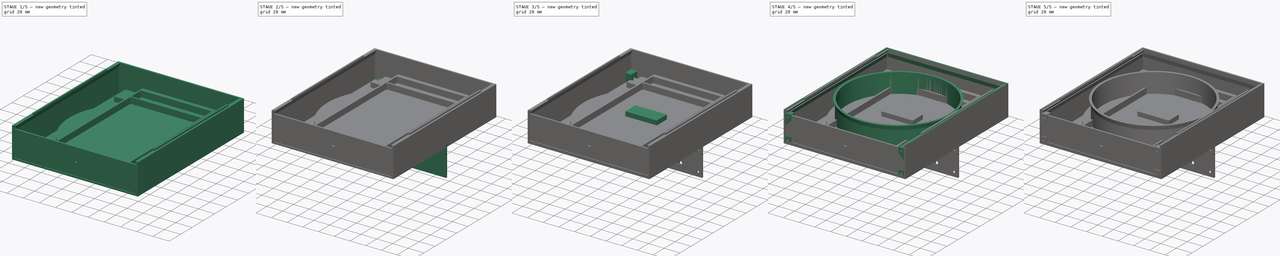
[diagram: build sequence overview — one tinted view per stage of 5, left to right]
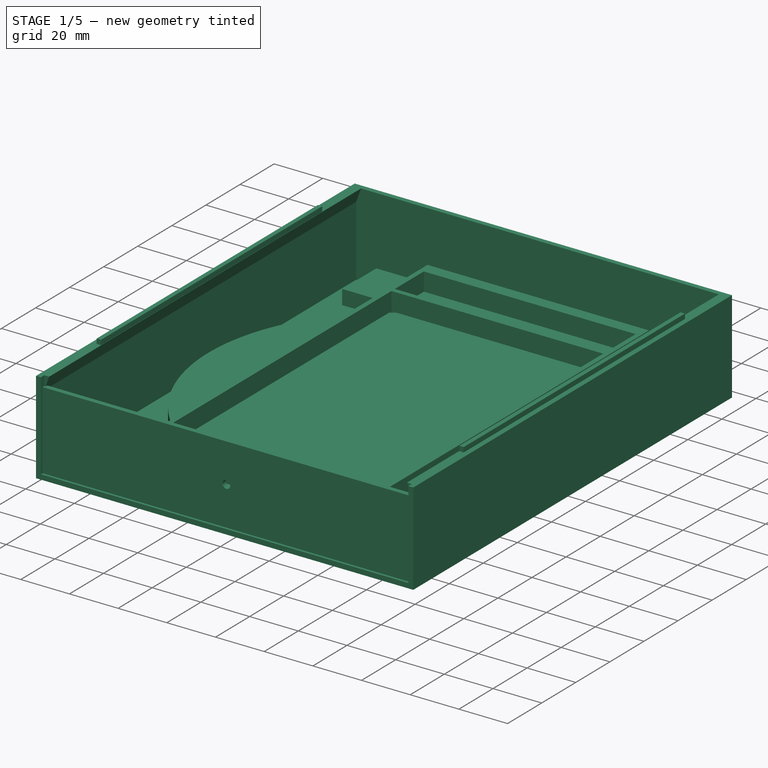
[diagram: stage 1 of 5 — iso view after this stage's code; geometry added in this stage tinted green]
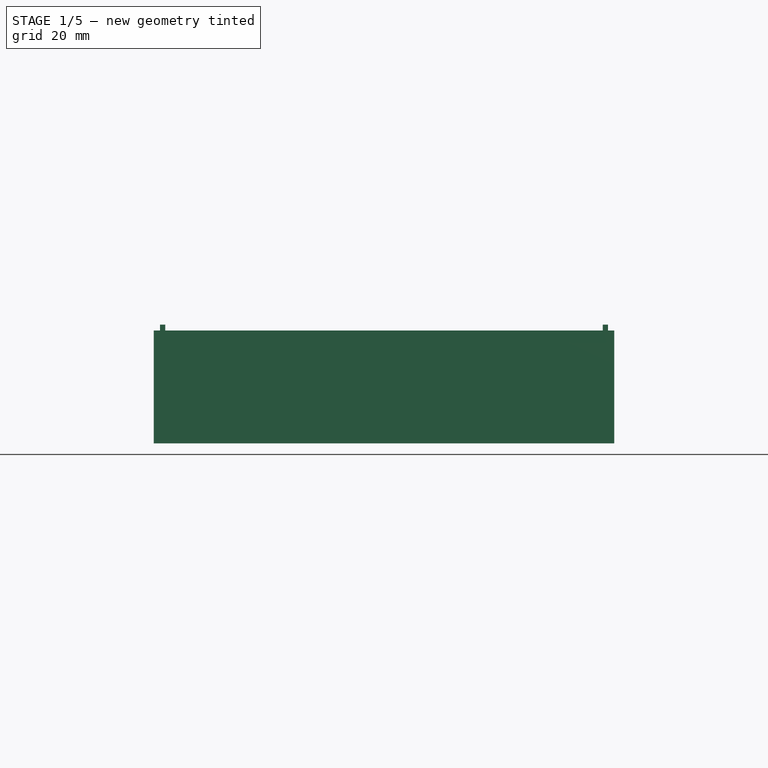
[diagram: stage 1 of 5 — front view after this stage's code; geometry added in this stage tinted green]
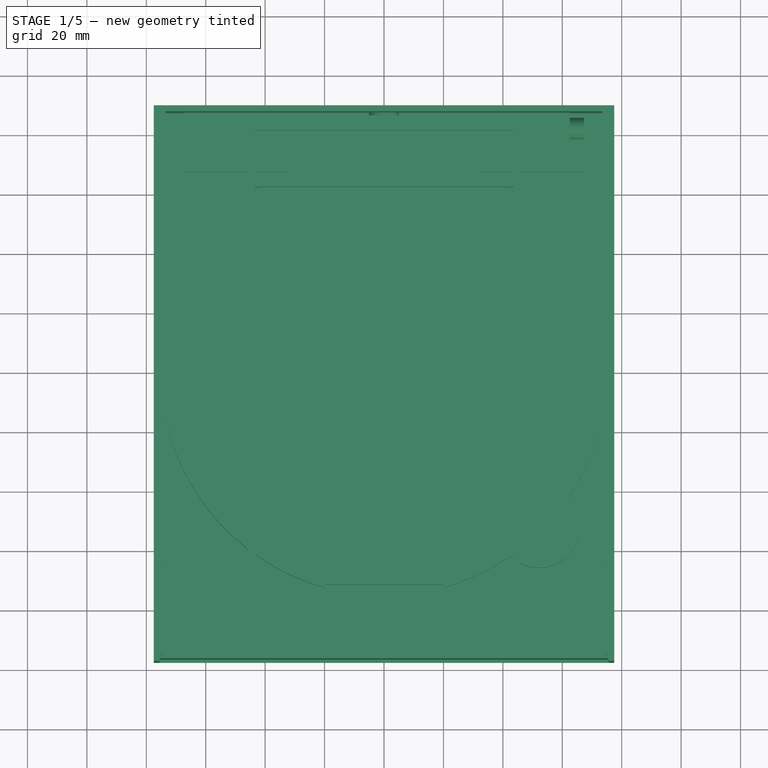
[diagram: stage 1 of 5 — top view after this stage's code; geometry added in this stage tinted green]
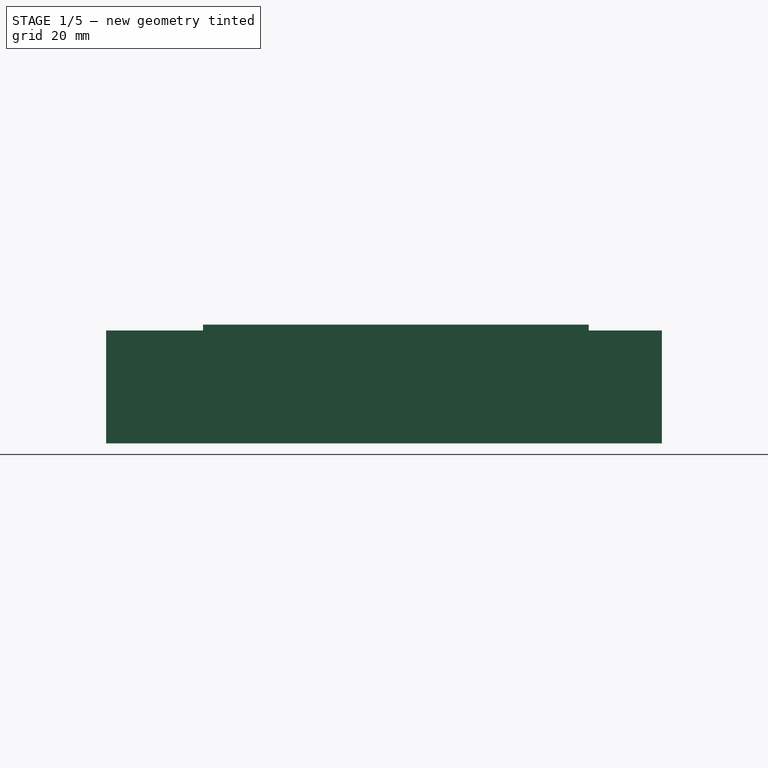
[diagram: stage 1 of 5 — right view after this stage's code; geometry added in this stage tinted green]
FCSTD DOCUMENT  (FreeCAD 0.20R29603 (Git))
Label: Katzenfutterautomat
License: All rights reserved
LicenseURL: http://en.wikipedia.org/wiki/All_rights_reserved
objects: Sketcher::SketchObject×57, PartDesign::Pad×27, PartDesign::Pocket×22, PartDesign::Plane×21, PartDesign::Mirrored×14, PartDesign::Body×10, PartDesign::Revolution×2, PartDesign::Hole×2, Spreadsheet::Sheet×1, PartDesign::Groove×1, PartDesign::PolarPattern×1, PartDesign::SubtractiveLoft×1, PartDesign::Chamfer×1
note: 215 computed .brp shape members not serialized (recipe doc carries the construction recipe); baked Part::Feature solids carry a one-line shape summary decoded from their .brp

FEATURE [Sketcher::SketchObject] Sketch026
  FullyConstrained = true
  MapMode = 5
  Support = -> [XY_Plane]
  expr: Constraints[11] = <<Masse_Grundkoerper>>.staerke_achse_deckel
  expr: Constraints[14] = <<Masse_Grundkoerper>>.innendurchmesser_napf / 2 + <<Masse_Grundkoerper>>.abstand_rand_achse_napf + <<Masse_Grundkoerper>>.laenge_achsaufnahme
  expr: Constraints[15] = <<Masse_Grundkoerper>>.breite_koerper - <<Masse_Grundkoerper>>.staerke_achsaufnahme * 2 - <<Masse_Grundkoerper>>.tolleranz_achse_deckel
  expr: Constraints[21] = <<Masse_Grundkoerper>>.breite_finger + <<Masse_Grundkoerper>>.ueberstand_finger_deckel
  expr: Constraints[31] = <<Masse_Grundkoerper>>.durchmesser_deckel
  expr: Constraints[38] = <<Masse_Grundkoerper>>.breite_verschluss
  expr: Constraints[51] = <<Masse_Grundkoerper>>.versenkung_verschluss_deckel
  sketch-geometry (19):
    g0: LineSegment StartX=-32.6917 StartY=67.5 StartZ=0 EndX=-67.25 EndY=67.5 EndZ=0
    g1: LineSegment StartX=-67.25 StartY=67.5 StartZ=0 EndX=-67.25 EndY=87.5 EndZ=0
    g2: LineSegment StartX=-67.25 StartY=87.5 StartZ=0 EndX=67.25 EndY=87.5 EndZ=0
    g3: LineSegment StartX=67.25 StartY=87.5 StartZ=0 EndX=67.25 EndY=67.5 EndZ=0
    g4: LineSegment StartX=67.25 StartY=67.5 StartZ=0 EndX=32.6917 EndY=67.5 EndZ=0
    g5: LineSegment StartX=5.4e-15 StartY=87.5 StartZ=0 EndX=0 EndY=0 EndZ=0
    g6: ArcOfCircle CenterX=0 CenterY=0 CenterZ=0 NormalX=0 NormalY=0 NormalZ=1 AngleXU=0 Radius=75 StartAngle=2.02182 EndAngle=4.44246
    g7: ArcOfCircle CenterX=0 CenterY=0 CenterZ=0 NormalX=0 NormalY=0 NormalZ=1 AngleXU=0 Radius=75 StartAngle=5.67877 EndAngle=7.40295
    g8: ArcOfCircle CenterX=0 CenterY=0 CenterZ=0 NormalX=0 NormalY=0 NormalZ=1 AngleXU=0 Radius=75 StartAngle=4.98232 EndAngle=5.3168
    g9: ArcOfCircle CenterX=52.1668 CenterY=-52.1668 CenterZ=0 NormalX=0 NormalY=0 NormalZ=1 AngleXU=0 Radius=13.5 StartAngle=3.92699 EndAngle=7.06858
    g10: LineSegment StartX=0 StartY=0 StartZ=0 EndX=52.1668 EndY=-52.1668 EndZ=0
    g11: GeomPoint X=-75 Y=0 Z=0
    g12: GeomPoint X=75 Y=0 Z=0
    g13: LineSegment StartX=42.6209 StartY=-61.7127 StartZ=0 EndX=52.1668 EndY=-52.1668 EndZ=0
    g14: LineSegment StartX=-20 StartY=-71.2842 StartZ=0 EndX=20 EndY=-71.2842 EndZ=0
    g15: LineSegment StartX=-20 StartY=-72.2842 StartZ=0 EndX=0 EndY=-72.2842 EndZ=0
    g16: LineSegment StartX=0 StartY=-72.2842 StartZ=0 EndX=20 EndY=-72.2842 EndZ=0
    g17: LineSegment StartX=-20 StartY=-72.2842 StartZ=0 EndX=-20 EndY=-71.2842 EndZ=0
    g18: LineSegment StartX=20 StartY=-71.2842 StartZ=0 EndX=20 EndY=-72.2842 EndZ=0
  constraints (53):
    c: Coincident(g0,g1)
    c: Vertical(g1)
    c: Coincident(g1,g2)
    c: Horizontal(g2)
    c: Coincident(g2,g3)
    c: Coincident(g3,g4)
    c: Horizontal(g4)
    c: Horizontal(g0)
    c: Equal(g4,g0)
    c: Equal(g3,g1)
    c: Vertical(g3)
    c: DistanceY(g1,g1) = 20
    c: PointOnObject(g5,g2)
    c: Angle(g-1,g5) = 1.5708
    c: DistanceY(g5,g5) = 87.5
    c: DistanceX(g2,g2) = 134.5
    c: Coincident(g6,g5)
    c: Coincident(g6,g0)
    c: Coincident(g7,g6)
    c: Coincident(g7,g4)
    c: Coincident(g8,g6)
    c: Diameter(g9) = 27
    c: Angle(g9) = 3.14159
    c: Coincident(g6,g-1)
    c: Coincident(g10,g6)
    c: Coincident(g10,g9)
    c: Angle(g10,g-1) = 0.785398
    c: PointOnObject(g11,g6)
    c: PointOnObject(g12,g7)
    c: PointOnObject(g12,g-1)
    c: PointOnObject(g11,g-1)
    c: DistanceX(g11,g12) = 150
    c: Coincident(g13,g9)
    c: Coincident(g13,g9)
    c: Angle(g10,g13) = 1.5708
    c: Coincident(g9,g8)
    c: Coincident(g7,g9)
    c: Horizontal(g14)
    c: DistanceX(g14,g14) = 40
    c: Coincident(g15,g6)
    c: PointOnObject(g15,g-2)
    c: Coincident(g16,g8)
    c: Coincident(g16,g15)
    c: Equal(g16,g15)
    c: Parallel(g16,g14)
    c: Coincident(g17,g6)
    c: Coincident(g17,g14)
    c: Coincident(g18,g14)
    c: Coincident(g18,g8)
    c: Vertical(g18)
    c: Angle(g17,g14) = 1.5708
    c: DistanceY(g18,g18) = 1
    c: Equal(g17,g18)
FEATURE [PartDesign::Pad] Pad002  label="Grundplatte Deckel"
  Direction = (0,0,1)
  Length = 10
  Length2 = 10
  Profile = -> Sketch026
  ReferenceAxis = -> Sketch026 [N_Axis]
  Type = 0
  expr: Length = <<Masse_Grundkoerper>>.staerke_deckel
FEATURE [Sketcher::SketchObject] Sketch030
  FullyConstrained = true
  MapMode = 5
  Placement = pos=(0,0,0) rot=(1,0,0;1.5708rad)
  Support = -> [XZ_Plane]
  expr: Constraints[10] = <<Masse_Grundkoerper>>.versenkung_dichtungsband
  expr: Constraints[11] = <<Masse_Grundkoerper>>.durchmesser_dichtungsband
  expr: Constraints[2] = <<Masse_Grundkoerper>>.aussendurchmesser_napf / 2 - <<Masse_Grundkoerper>>.durchmesser_dichtungsband / 2
  sketch-geometry (4):
    g0: LineSegment StartX=0 StartY=0 StartZ=0 EndX=68 EndY=0 EndZ=0
    g1: LineSegment StartX=68 StartY=0 StartZ=0 EndX=68 EndY=1.5 EndZ=0
    g2: ArcOfCircle CenterX=68 CenterY=1.5 CenterZ=0 NormalX=0 NormalY=0 NormalZ=1 AngleXU=0 Radius=2.5 StartAngle=5.63968 EndAngle=10.0683
    g3: LineSegment StartX=66 StartY=4.09714e-11 StartZ=0 EndX=70 EndY=4.09714e-11 EndZ=0
  constraints (12):
    c: Coincident(g0,g-1)
    c: Horizontal(g0)
    c: DistanceX(g0) = 68
    c: Coincident(g1,g0)
    c: Angle(g1,g0) = 1.5708
    c: Coincident(g2,g1)
    c: Coincident(g3,g2)
    c: Coincident(g3,g2)
    c: Horizontal(g3)
    c: PointOnObject(g2,g0)
    c: DistanceY(g1,g1) = 1.5
    c: Diameter(g2) = 5
FEATURE [Sketcher::SketchObject] Sketch031
  FullyConstrained = true
  MapMode = 2
  Support = -> [XY_Plane]
  expr: Constraints[12] = 360 / (<<Masse_Grundkoerper>>.anzahl_versenkungen_deckel + <<Masse_Grundkoerper>>.gradanzahl_zwischenwaende_versenkung_deckel)
  expr: Constraints[15] = <<Masse_Grundkoerper>>.loch_mitte_deckel / 2
  expr: Constraints[1] = <<Masse_Grundkoerper>>.durchmesser_versenkungen_deckel / 2
  sketch-geometry (6):
    g0: ArcOfCircle CenterX=0 CenterY=0 CenterZ=0 NormalX=0 NormalY=0 NormalZ=1 AngleXU=0 Radius=63 StartAngle=0.673198 EndAngle=1.5708
    g1: ArcOfCircle CenterX=0 CenterY=0 CenterZ=0 NormalX=0 NormalY=0 NormalZ=1 AngleXU=0 Radius=22.5 StartAngle=0.673198 EndAngle=1.5708
    g2: LineSegment StartX=17.5912 StartY=14.0285 StartZ=0 EndX=49.2554 EndY=39.2799 EndZ=0
    g3: LineSegment StartX=3.9e-15 StartY=22.5 StartZ=0 EndX=3.9e-15 EndY=63 EndZ=0
    g4: LineSegment StartX=0 StartY=0 StartZ=0 EndX=3.9e-15 EndY=22.5 EndZ=0
    g5: LineSegment StartX=17.5912 StartY=14.0285 StartZ=0 EndX=0 EndY=0 EndZ=0
  constraints (16):
    c: PointOnObject(g0,g-2)
    c: DistanceY(g0,g0) = 63
    c: Coincident(g1,g0)
    c: Coincident(g2,g1)
    c: Coincident(g2,g0)
    c: Coincident(g3,g1)
    c: Coincident(g3,g0)
    c: Vertical(g3)
    c: Coincident(g4,g-1)
    c: Coincident(g4,g1)
    c: Coincident(g5,g1)
    c: Coincident(g5,g4)
    c: Angle(g5,g4) = 0.897598
    c: Parallel(g5,g2)
    c: Coincident(g0,g4)
    c: DistanceY(g4,g4) = 22.5
FEATURE [Sketcher::SketchObject] Sketch032
  FullyConstrained = true
  MapMode = 5
  Support = -> [XY_Plane]
  expr: Constraints[1] = <<Masse_Grundkoerper>>.loch_mitte_deckel - <<Masse_Grundkoerper>>.wandstaerke_koerper
  sketch-geometry (1):
    g0: Circle CenterX=0 CenterY=0 CenterZ=0 NormalX=0 NormalY=0 NormalZ=1 AngleXU=0 Radius=21.5
  constraints (2):
    c: Coincident(g0,g-1)
    c: Diameter(g0) = 43
FEATURE [PartDesign::Plane] DatumPlane
  AttachmentOffset = pos=(0,0,67.5) rot=(0,0,1;0rad)
  Length = 177.661
  MapMode = 5
  Placement = pos=(67.5,-1.5e-14,1.5e-14) rot=(0.57735,0.57735,0.57735;2.0944rad)
  ResizeMode = 0
  Support = -> [YZ_Plane]
  Width = 67.8765
  expr: .AttachmentOffset.Base.z = <<Masse_Grundkoerper>>.breite_koerper / 2 - <<Masse_Grundkoerper>>.staerke_achsaufnahme
FEATURE [Sketcher::SketchObject] Sketch027
  FullyConstrained = true
  MapMode = 5
  Placement = pos=(67.5,-1.5e-14,1.5e-14) rot=(0.57735,0.57735,0.57735;2.0944rad)
  Support = -> [DatumPlane]
  expr: Constraints[18] = <<Masse_Grundkoerper>>.staerke_deckel
  expr: Constraints[20] = <<Masse_Grundkoerper>>.durchmesser_feder_aussen_achse / 2 + <<Masse_Grundkoerper>>.vorspannung_feder
  expr: Constraints[21] = <<Masse_Grundkoerper>>.laenge_achsaufnahme / 2
  expr: Constraints[3] = <<Masse_Grundkoerper>>.innendurchmesser_napf / 2 + <<Masse_Grundkoerper>>.laenge_achsaufnahme / 2 + <<Masse_Grundkoerper>>.abstand_rand_achse_napf
  expr: Constraints[4] = <<Masse_Grundkoerper>>.laenge_achsaufnahme / 2
  expr: Constraints[6] = <<Masse_Grundkoerper>>.durchmesser_feder_innen_achse
  sketch-geometry (8):
    g0: LineSegment StartX=0 StartY=0 StartZ=0 EndX=82.25 EndY=0 EndZ=0
    g1: LineSegment StartX=82.25 StartY=0 StartZ=0 EndX=82.25 EndY=5.25 EndZ=0
    g2: Circle CenterX=82.25 CenterY=5.25 CenterZ=0 NormalX=0 NormalY=0 NormalZ=1 AngleXU=0 Radius=3.6
    g3: LineSegment StartX=74.25 StartY=10 StartZ=0 EndX=87.5 EndY=10 EndZ=0
    g4: LineSegment StartX=87.5 StartY=10 StartZ=0 EndX=87.5 EndY=0 EndZ=0
    g5: LineSegment StartX=74.25 StartY=0 StartZ=0 EndX=74.25 EndY=10 EndZ=0
    g6: LineSegment StartX=74.25 StartY=0 StartZ=0 EndX=82.25 EndY=0 EndZ=0
    g7: LineSegment StartX=82.25 StartY=0 StartZ=0 EndX=87.5 EndY=0 EndZ=0
  constraints (22):
    c: Coincident(g0,g-1)
    c: Coincident(g1,g0)
    c: Horizontal(g0)
    c: DistanceX(g0,g0) = 82.25
    c: DistanceY(g1,g1) = 5.25
    c: Coincident(g2,g1)
    c: Diameter(g2) = 7.2
    c: Coincident(g3,g4)
    c: Coincident(g5,g3)
    c: Horizontal(g3)
    c: Vertical(g4)
    c: Vertical(g5)
    c: Coincident(g5,g6)
    c: Coincident(g6,g0)
    c: Coincident(g6,g7)
    c: Coincident(g7,g4)
    c: Horizontal(g7)
    c: Horizontal(g6)
    c: DistanceY(g4,g4) = 10
    c: Angle(g1,g6) = 1.5708
    c: DistanceX(g6,g6) = 8
    c: DistanceX(g7,g7) = 5.25
FEATURE [PartDesign::Pocket] Pocket001  label="Tasche Achseinbuchtung"
  BaseFeature = -> Pad002
  Direction = (-1,1e-16,-1e-16)
  Length = 5
  Length2 = 5
  Profile = -> Sketch027
  ReferenceAxis = -> Sketch027 [N_Axis]
  Type = 0
  expr: Length = <<Masse_Grundkoerper>>.breite_feder_deckel
FEATURE [Sketcher::SketchObject] Sketch049
  FullyConstrained = true
  MapMode = 5
  Support = -> [XY_Plane006]
  expr: Constraints[10] = <<Masse_Grundkoerper>>.abstand_rand_achse_napf + <<Masse_Grundkoerper>>.laenge_achsaufnahme + <<Masse_Grundkoerper>>.innendurchmesser_napf / 2 + <<Masse_Grundkoerper>>.wandstaerke_koerper
  expr: Constraints[11] = <<Masse_Grundkoerper>>.laenge_koerper + <<Masse_Grundkoerper>>.wandstaerke_koerper
  expr: Constraints[12] = <<Masse_Grundkoerper>>.breite_koerper + <<Masse_Grundkoerper>>.wandstaerke_koerper * 2
  sketch-geometry (7):
    g0: LineSegment StartX=-77.5 StartY=89.5 StartZ=0 EndX=77.5 EndY=89.5 EndZ=0
    g1: LineSegment StartX=77.5 StartY=89.5 StartZ=0 EndX=77.5 EndY=-97.5 EndZ=0
    g2: LineSegment StartX=77.5 StartY=-97.5 StartZ=0 EndX=-77.5 EndY=-97.5 EndZ=0
    g3: LineSegment StartX=-77.5 StartY=-97.5 StartZ=0 EndX=-77.5 EndY=89.5 EndZ=0
    g4: LineSegment StartX=0 StartY=0 StartZ=0 EndX=0 EndY=89.5 EndZ=0
    g5: LineSegment StartX=-77.5 StartY=89.5 StartZ=0 EndX=0 EndY=89.5 EndZ=0
    g6: LineSegment StartX=0 StartY=89.5 StartZ=0 EndX=77.5 EndY=89.5 EndZ=0
  constraints (19):
    c: Coincident(g0,g1)
    c: Coincident(g1,g2)
    c: Coincident(g2,g3)
    c: Coincident(g3,g0)
    c: Horizontal(g0)
    c: Horizontal(g2)
    c: Vertical(g1)
    c: Vertical(g3)
    c: Coincident(g4,g-1)
    c: Angle(g-1,g4) = 1.5708
    c: DistanceY(g4,g4) = 89.5
    c: DistanceY(g1,g1) = 187
    c: DistanceX(g0,g0) = 155
    c: Coincident(g5,g0)
    c: Coincident(g5,g4)
    c: Horizontal(g5)
    c: Coincident(g6,g4)
    c: Coincident(g6,g0)
    c: Equal(g5,g6)
FEATURE [PartDesign::Pad] Pad013
  Direction = (0,0,1)
  Length = 2
  Length2 = 10
  Profile = -> Sketch049
  ReferenceAxis = -> Sketch049 [N_Axis]
  Type = 0
  expr: Length = <<Masse_Grundkoerper>>.bodenstaerke_koerper
FEATURE [PartDesign::Plane] DatumPlane009
  AttachmentOffset = pos=(0,0,2) rot=(0,0,1;0rad)
  Length = 189.05
  MapMode = 5
  Placement = pos=(0,0,2) rot=(0,0,1;0rad)
  ResizeMode = 0
  Support = -> [XY_Plane006]
  Width = 221.05
  expr: .AttachmentOffset.Base.z = <<Masse_Grundkoerper>>.bodenstaerke_koerper
FEATURE [Sketcher::SketchObject] Sketch050
  FullyConstrained = true
  MapMode = 5
  Placement = pos=(0,0,2) rot=(0,0,1;0rad)
  Support = -> [DatumPlane009]
  expr: Constraints[18] = <<Masse_Grundkoerper>>.abstand_rand_achse_napf + <<Masse_Grundkoerper>>.laenge_achsaufnahme + <<Masse_Grundkoerper>>.innendurchmesser_napf / 2 + <<Masse_Grundkoerper>>.wandstaerke_koerper
  expr: Constraints[19] = <<Masse_Grundkoerper>>.wandstaerke_koerper
  expr: Constraints[20] = <<Masse_Grundkoerper>>.breite_koerper + <<Masse_Grundkoerper>>.wandstaerke_koerper * 2
  expr: Constraints[32] = <<Masse_Grundkoerper>>.laenge_koerper + <<Masse_Grundkoerper>>.wandstaerke_koerper
  sketch-geometry (12):
    g0: LineSegment StartX=0 StartY=0 StartZ=0 EndX=0 EndY=89.5 EndZ=0
    g1: LineSegment StartX=-77.5 StartY=-97.5 StartZ=0 EndX=-77.5 EndY=89.5 EndZ=0
    g2: LineSegment StartX=-77.5 StartY=89.5 StartZ=0 EndX=77.5 EndY=89.5 EndZ=0
    g3: LineSegment StartX=77.5 StartY=89.5 StartZ=0 EndX=77.5 EndY=-97.5 EndZ=0
    g4: LineSegment StartX=77.5 StartY=-97.5 StartZ=0 EndX=75.5 EndY=-97.5 EndZ=0
    g5: LineSegment StartX=75.5 StartY=-97.5 StartZ=0 EndX=75.5 EndY=87.5 EndZ=0
    g6: LineSegment StartX=75.5 StartY=87.5 StartZ=0 EndX=-75.5 EndY=87.5 EndZ=0
    g7: LineSegment StartX=-75.5 StartY=87.5 StartZ=0 EndX=-75.5 EndY=-97.5 EndZ=0
    g8: LineSegment StartX=-75.5 StartY=-97.5 StartZ=0 EndX=-77.5 EndY=-97.5 EndZ=0
    g9: LineSegment StartX=-77.5 StartY=89.5 StartZ=0 EndX=0 EndY=89.5 EndZ=0
    g10: LineSegment StartX=0 StartY=89.5 StartZ=0 EndX=77.5 EndY=89.5 EndZ=0
    g11: LineSegment StartX=-75.5 StartY=87.5 StartZ=0 EndX=-75.5 EndY=89.5 EndZ=0
  constraints (34):
    c: Coincident(g0,g-1)
    c: PointOnObject(g0,g-2)
    c: Vertical(g1)
    c: Coincident(g1,g2)
    c: Coincident(g2,g3)
    c: Vertical(g3)
    c: Coincident(g3,g4)
    c: Coincident(g4,g5)
    c: Vertical(g5)
    c: Coincident(g5,g6)
    c: Horizontal(g6)
    c: Coincident(g6,g7)
    c: Vertical(g7)
    c: Coincident(g7,g8)
    c: Coincident(g8,g1)
    c: Horizontal(g8)
    c: Horizontal(g4)
    c: Angle(g2,g0) = 1.5708
    c: DistanceY(g0,g0) = 89.5
    c: DistanceX(g8,g8) = 2
    c: DistanceX(g2,g2) = 155
    c: Equal(g4,g8)
    c: PointOnObject(g0,g2)
    c: Coincident(g1,g9)
    c: Coincident(g9,g0)
    c: Coincident(g9,g10)
    c: Coincident(g10,g2)
    c: Equal(g9,g10)
    c: Coincident(g11,g6)
    c: PointOnObject(g11,g2)
    c: Vertical(g11)
    c: Equal(g11,g8)
    c: DistanceY(g3,g3) = 187
    c: Equal(g1,g3)
FEATURE [PartDesign::Pad] Pad014
  BaseFeature = -> Pad013
  Direction = (0,0,1)
  Length = 36
  Length2 = 10
  Profile = -> Sketch050
  ReferenceAxis = -> Sketch050 [N_Axis]
  Type = 0
  expr: Length = Spreadsheet.schublade_boden_staerke + <<Masse_Grundkoerper>>.hoehe_eispack + <<Masse_Grundkoerper>>.toleranz_eispack
FEATURE [PartDesign::Plane] DatumPlane010
  AttachmentOffset = pos=(0,0,95.5) rot=(0,0,1;0rad)
  Length = 175.075
  MapMode = 5
  Placement = pos=(0,-95.5,-2.12e-14) rot=(1,0,0;1.5708rad)
  ResizeMode = 0
  Support = -> [XZ_Plane006]
  Width = 85.0749
  expr: .AttachmentOffset.Base.z = <<Masse_Grundkoerper>>.laenge_koerper - (<<Masse_Grundkoerper>>.abstand_rand_achse_napf + <<Masse_Grundkoerper>>.laenge_achsaufnahme + <<Masse_Grundkoerper>>.innendurchmesser_napf / 2 + <<Masse_Grundkoerper>>.wandstaerke_koerper)
FEATURE [Sketcher::SketchObject] Sketch051
  FullyConstrained = true
  MapMode = 5
  Placement = pos=(0,-95.5,-2.12e-14) rot=(1,0,0;1.5708rad)
  Support = -> [DatumPlane010]
  expr: Constraints[11] = <<Masse_Grundkoerper>>.bodenstaerke_koerper + <<Masse_Grundkoerper>>.schublade_boden_staerke + <<Masse_Grundkoerper>>.hoehe_eispack + <<Masse_Grundkoerper>>.toleranz_eispack
  expr: Constraints[13] = <<Masse_Grundkoerper>>.breite_koerper / 2
  expr: Constraints[3] = <<Masse_Grundkoerper>>.winkel_auflage_koerper
  expr: Constraints[6] = <<Masse_Grundkoerper>>.wandstaerke_koerper
  sketch-geometry (5):
    g0: LineSegment StartX=-75.5 StartY=32.505 StartZ=0 EndX=-75.5 EndY=38 EndZ=0
    g1: LineSegment StartX=-75.5 StartY=38 StartZ=0 EndX=-73.5 EndY=38 EndZ=0
    g2: LineSegment StartX=-73.5 StartY=38 StartZ=0 EndX=-75.5 EndY=32.505 EndZ=0
    g3: LineSegment StartX=0 StartY=0 StartZ=0 EndX=-75.5 EndY=0 EndZ=0
    g4: LineSegment StartX=-75.5 StartY=0 StartZ=0 EndX=-75.5 EndY=38 EndZ=0
  constraints (14):
    c: Coincident(g0,g1)
    c: Coincident(g1,g2)
    c: Coincident(g2,g0)
    c: Angle(g2,g0) = 0.349066
    c: Vertical(g0)
    c: Angle(g0,g1) = 1.5708
    c: DistanceX(g1,g1) = 2
    c: Coincident(g-1,g3)
    c: Horizontal(g3)
    c: Coincident(g3,g4)
    c: Vertical(g4)
    c: DistanceY(g4,g4) = 38
    c: Coincident(g0,g4)
    c: DistanceX(g3,g3) = 75.5
FEATURE [PartDesign::Pad] Pad015
  BaseFeature = -> Pad014
  Direction = (0,-1,-2e-16)
  Length = 183
  Length2 = 10
  Profile = -> Sketch051
  ReferenceAxis = -> Sketch051 [N_Axis]
  Reversed = true
  Type = 0
  expr: Length = <<Masse_Grundkoerper>>.laenge_koerper - <<Masse_Grundkoerper>>.wandstaerke_koerper
FEATURE [PartDesign::Mirrored] Mirrored006
  BaseFeature = -> Pad015
  MirrorPlane = -> Sketch051 [V_Axis]
  Originals = -> [Pad015]
FEATURE [PartDesign::Plane] DatumPlane011
  AttachmentOffset = pos=(0,0,38) rot=(0,0,1;0rad)
  Length = 189.05
  MapMode = 5
  Placement = pos=(0,0,38) rot=(0,0,1;0rad)
  ResizeMode = 0
  Support = -> [XY_Plane006]
  Width = 221.05
  expr: .AttachmentOffset.Base.z = <<Masse_Grundkoerper>>.bodenstaerke_koerper + <<Masse_Grundkoerper>>.schublade_boden_staerke + <<Masse_Grundkoerper>>.hoehe_eispack + <<Masse_Grundkoerper>>.toleranz_eispack
FEATURE [Sketcher::SketchObject] Sketch055
  FullyConstrained = true
  MapMode = 5
  Placement = pos=(0,0,38) rot=(0,0,1;0rad)
  Support = -> [DatumPlane011]
  expr: Constraints[10] = <<Masse_Grundkoerper>>.breite_koerper / 2 - <<Masse_Grundkoerper>>.wandstaerke_koerper + <<Masse_Grundkoerper>>.tolleranz_verbinder_eispack / 2
  expr: Constraints[11] = <<Masse_Grundkoerper>>.innendurchmesser_napf / 2 - <<Masse_Grundkoerper>>.tolleranz_verbinder_eispack / 2
  expr: Constraints[20] = <<Masse_Grundkoerper>>.wandstaerke_koerper - <<Masse_Grundkoerper>>.tolleranz_verbinder_eispack
  sketch-geometry (8):
    g0: LineSegment StartX=73.6 StartY=64.9 StartZ=0 EndX=0 EndY=64.9 EndZ=0
    g1: LineSegment StartX=0 StartY=64.9 StartZ=0 EndX=0 EndY=0 EndZ=0
    g2: LineSegment StartX=0 StartY=0 StartZ=0 EndX=0 EndY=-64.9 EndZ=0
    g3: LineSegment StartX=0 StartY=-64.9 StartZ=0 EndX=73.6 EndY=-64.9 EndZ=0
    g4: LineSegment StartX=73.6 StartY=64.9 StartZ=0 EndX=75.4 EndY=64.9 EndZ=0
    g5: LineSegment StartX=75.4 StartY=64.9 StartZ=0 EndX=75.4 EndY=-64.9 EndZ=0
    g6: LineSegment StartX=75.4 StartY=-64.9 StartZ=0 EndX=73.6 EndY=-64.9 EndZ=0
    g7: LineSegment StartX=73.6 StartY=-64.9 StartZ=0 EndX=73.6 EndY=64.9 EndZ=0
  constraints (22):
    c: PointOnObject(g0,g-2)
    c: Horizontal(g0)
    c: Coincident(g0,g1)
    c: Coincident(g1,g-1)
    c: Coincident(g1,g2)
    c: PointOnObject(g2,g-2)
    c: Coincident(g2,g3)
    c: Horizontal(g3)
    c: Equal(g3,g0)
    c: Equal(g1,g2)
    c: DistanceX(g0,g0) = 73.6
    c: DistanceY(g1,g1) = 64.9
    c: Coincident(g4,g5)
    c: Coincident(g5,g6)
    c: Coincident(g6,g7)
    c: Coincident(g7,g4)
    c: Horizontal(g4)
    c: Horizontal(g6)
    c: Vertical(g5)
    c: Coincident(g4,g0)
    c: DistanceX(g4,g4) = 1.8
    c: Coincident(g6,g3)
FEATURE [PartDesign::Pad] Pad016  label="Pad Verbinder"
  BaseFeature = -> Mirrored006
  Direction = (0,0,1)
  Length = 2
  Length2 = 10
  Profile = -> Sketch055
  ReferenceAxis = -> Sketch055 [N_Axis]
  Type = 0
  expr: Length = <<Masse_Grundkoerper>>.bodenstaerke_koerper
FEATURE [PartDesign::Mirrored] Mirrored008  label="Pad Verbinder Spiegel"
  BaseFeature = -> Pad016
  MirrorPlane = -> Sketch055 [V_Axis]
  Originals = -> [Pad016]
FEATURE [Sketcher::SketchObject] Sketch056
  FullyConstrained = true
  MapMode = 5
  Support = -> [XY_Plane007]
  expr: Constraints[17] = <<Masse_Grundkoerper>>.breite_koerper - 2 * <<Masse_Grundkoerper>>.tolleranz_schublade
  expr: Constraints[18] = <<Masse_Grundkoerper>>.laenge_koerper - 2 * <<Masse_Grundkoerper>>.tolleranz_schublade - <<Masse_Grundkoerper>>.hoehe_magnet
  expr: Constraints[1] = <<Masse_Grundkoerper>>.abstand_rand_achse_napf + <<Masse_Grundkoerper>>.laenge_achsaufnahme + <<Masse_Grundkoerper>>.innendurchmesser_napf / 2 - 2 * <<Masse_Grundkoerper>>.tolleranz_schublade
  sketch-geometry (7):
    g0: LineSegment StartX=0 StartY=1e-16 StartZ=0 EndX=0 EndY=86.5 EndZ=0
    g1: LineSegment StartX=-75 StartY=86.5 StartZ=0 EndX=75 EndY=86.5 EndZ=0
    g2: LineSegment StartX=75 StartY=86.5 StartZ=0 EndX=75 EndY=-94.5 EndZ=0
    g3: LineSegment StartX=75 StartY=-94.5 StartZ=0 EndX=-75 EndY=-94.5 EndZ=0
    g4: LineSegment StartX=-75 StartY=-94.5 StartZ=0 EndX=-75 EndY=86.5 EndZ=0
    g5: LineSegment StartX=-75 StartY=86.5 StartZ=0 EndX=0 EndY=86.5 EndZ=0
    g6: LineSegment StartX=0 StartY=86.5 StartZ=0 EndX=75 EndY=86.5 EndZ=0
  constraints (19):
    c: Coincident(g0,g-1)
    c: DistanceY(g0,g0) = 86.5
    c: PointOnObject(g0,g-2)
    c: Coincident(g1,g2)
    c: Coincident(g2,g3)
    c: Coincident(g3,g4)
    c: Coincident(g4,g1)
    c: Horizontal(g1)
    c: Horizontal(g3)
    c: Vertical(g2)
    c: Vertical(g4)
    c: Coincident(g1,g5)
    c: Coincident(g5,g0)
    c: Coincident(g5,g6)
    c: Coincident(g6,g1)
    c: Equal(g6,g5)
    c: Horizontal(g5)
    c: DistanceX(g3,g3) = 150
    c: DistanceY(g4,g4) = 181
FEATURE [PartDesign::Pad] Pad017
  Direction = (0,0,1)
  Length = 4
  Length2 = 10
  Profile = -> Sketch056
  ReferenceAxis = -> Sketch056 [N_Axis]
  Type = 0
  expr: Length = <<Masse_Grundkoerper>>.schublade_boden_staerke
FEATURE [PartDesign::Plane] DatumPlane013
  AttachmentOffset = pos=(0,0,4) rot=(0,0,1;0rad)
  Length = 188.684
  MapMode = 5
  Placement = pos=(0,0,4) rot=(0,0,1;0rad)
  ResizeMode = 0
  Support = -> [XY_Plane007]
  Width = 216.684
  expr: .AttachmentOffset.Base.z = <<Masse_Grundkoerper>>.schublade_boden_staerke
FEATURE [Sketcher::SketchObject] Sketch057
  FullyConstrained = true
  MapMode = 5
  Placement = pos=(0,0,4) rot=(0,0,1;0rad)
  Support = -> [DatumPlane013]
  expr: Constraints[21] = <<Masse_Grundkoerper>>.wandstaerke_koerper
  expr: Constraints[22] = <<Masse_Grundkoerper>>.laenge_koerper - 2 * <<Masse_Grundkoerper>>.tolleranz_schublade - <<Masse_Grundkoerper>>.hoehe_magnet
  expr: Constraints[29] = <<Masse_Grundkoerper>>.laenge_eispack + <<Masse_Grundkoerper>>.toleranz_eispack
  expr: Constraints[2] = <<Masse_Grundkoerper>>.abstand_rand_achse_napf + <<Masse_Grundkoerper>>.laenge_achsaufnahme + <<Masse_Grundkoerper>>.innendurchmesser_napf / 2 - 2 * <<Masse_Grundkoerper>>.tolleranz_schublade
  expr: Constraints[50] = <<Masse_Grundkoerper>>.wandstaerke_koerper + <<Masse_Grundkoerper>>.hoehe_magnet
  expr: Constraints[8] = <<Masse_Grundkoerper>>.breite_eispack + <<Masse_Grundkoerper>>.toleranz_eispack + <<Masse_Grundkoerper>>.wandstaerke_koerper * 2
  sketch-geometry (18):
    g0: LineSegment StartX=0 StartY=0 StartZ=0 EndX=0 EndY=86.5 EndZ=0
    g1: LineSegment StartX=-45.5 StartY=86.5 StartZ=0 EndX=45.5 EndY=86.5 EndZ=0
    g2: LineSegment StartX=45.5 StartY=86.5 StartZ=0 EndX=45.5 EndY=-94.5 EndZ=0
    g3: LineSegment StartX=-45.5 StartY=-94.5 StartZ=0 EndX=-45.5 EndY=86.5 EndZ=0
    g4: LineSegment StartX=-45.5 StartY=86.5 StartZ=0 EndX=0 EndY=86.5 EndZ=0
    g5: LineSegment StartX=0 StartY=86.5 StartZ=0 EndX=45.5 EndY=86.5 EndZ=0
    g6: LineSegment StartX=-45.5 StartY=-94.5 StartZ=0 EndX=-43.5 EndY=-94.5 EndZ=0
    g7: LineSegment StartX=43.5 StartY=-94.5 StartZ=0 EndX=45.5 EndY=-94.5 EndZ=0
    g8: LineSegment StartX=-43.5 StartY=-94.5 StartZ=0 EndX=-43.5 EndY=62.5 EndZ=0
    g9: LineSegment StartX=-43.5 StartY=62.5 StartZ=0 EndX=43.5 EndY=62.5 EndZ=0
    g10: LineSegment StartX=43.5 StartY=62.5 StartZ=0 EndX=43.5 EndY=-94.5 EndZ=0
    g11: LineSegment StartX=-43.5 StartY=64.5 StartZ=0 EndX=-43.5 EndY=81.5 EndZ=0
    g12: LineSegment StartX=-43.5 StartY=81.5 StartZ=0 EndX=43.5 EndY=81.5 EndZ=0
    g13: LineSegment StartX=43.5 StartY=81.5 StartZ=0 EndX=43.5 EndY=64.5 EndZ=0
    g14: LineSegment StartX=43.5 StartY=64.5 StartZ=0 EndX=-43.5 EndY=64.5 EndZ=0
    g15: LineSegment StartX=-43.5 StartY=62.5 StartZ=0 EndX=-43.5 EndY=64.5 EndZ=0
    g16: LineSegment StartX=-43.5 StartY=81.5 StartZ=0 EndX=-45.5 EndY=81.5 EndZ=0
    g17: LineSegment StartX=-43.5 StartY=81.5 StartZ=0 EndX=-43.5 EndY=86.5 EndZ=0
  constraints (51):
    c: Coincident(g0,g-1)
    c: PointOnObject(g0,g-2)
    c: DistanceY(g0,g0) = 86.5
    c: Coincident(g1,g2)
    c: Coincident(g3,g1)
    c: Horizontal(g1)
    c: Vertical(g2)
    c: Vertical(g3)
    c: DistanceX(g1,g1) = 91
    c: Coincident(g4,g1)
    c: Coincident(g5,g4)
    c: Coincident(g5,g1)
    c: Equal(g5,g4)
    c: Horizontal(g4)
    c: Coincident(g4,g0)
    c: Equal(g2,g3)
    c: Coincident(g3,g6)
    c: Horizontal(g6)
    c: Coincident(g7,g2)
    c: Horizontal(g7)
    c: Equal(g7,g6)
    c: DistanceX(g7,g7) = 2
    c: DistanceY(g3,g3) = 181
    c: Coincident(g6,g8)
    c: Vertical(g8)
    c: Coincident(g8,g9)
    c: Coincident(g9,g10)
    c: Coincident(g10,g7)
    c: Vertical(g10)
    c: DistanceY(g8,g8) = 157
    c: Horizontal(g9)
    c: Vertical(g11)
    c: Coincident(g11,g12)
    c: Horizontal(g12)
    c: Coincident(g12,g13)
    c: Vertical(g13)
    c: Coincident(g13,g14)
    c: Coincident(g14,g11)
    c: Horizontal(g14)
    c: Equal(g14,g9)
    c: Coincident(g15,g8)
    c: Coincident(g15,g11)
    c: Angle(g9,g15) = 1.5708
    c: Coincident(g11,g16)
    c: PointOnObject(g16,g3)
    c: Coincident(g11,g17)
    c: PointOnObject(g17,g1)
    c: Angle(g3,g16) = 1.5708
    c: Angle(g17,g1) = 1.5708
    c: Equal(g16,g15)
    c: DistanceY(g17,g17) = 5
FEATURE [PartDesign::Pad] Pad018
  BaseFeature = -> Pad017
  Direction = (0,0,1)
  Length = 13.5
  Length2 = 10
  Profile = -> Sketch057
  ReferenceAxis = -> Sketch057 [N_Axis]
  Type = 0
  expr: Length = <<Masse_Grundkoerper>>.hoehe_eispack / 2
FEATURE [PartDesign::Plane] DatumPlane014
  AttachmentOffset = pos=(0,0,94.5) rot=(0,0,1;0rad)
  Length = 174.126
  MapMode = 5
  Placement = pos=(0,-94.5,-2.1e-14) rot=(1,0,0;1.5708rad)
  ResizeMode = 0
  Support = -> [XZ_Plane007]
  Width = 78.1259
  expr: .AttachmentOffset.Base.z = <<Masse_Grundkoerper>>.laenge_koerper - (<<Masse_Grundkoerper>>.abstand_rand_achse_napf + <<Masse_Grundkoerper>>.laenge_achsaufnahme + <<Masse_Grundkoerper>>.innendurchmesser_napf / 2) - <<Masse_Grundkoerper>>.hoehe_magnet
FEATURE [Sketcher::SketchObject] Sketch058
  FullyConstrained = true
  MapMode = 5
  Placement = pos=(0,-94.5,-2.1e-14) rot=(1,0,0;1.5708rad)
  Support = -> [DatumPlane014]
  expr: Constraints[8] = <<Masse_Grundkoerper>>.breite_koerper + 2 * <<Masse_Grundkoerper>>.wandstaerke_koerper
  expr: Constraints[9] = <<Masse_Grundkoerper>>.hoehe_eispack + <<Masse_Grundkoerper>>.toleranz_eispack + <<Masse_Grundkoerper>>.bodenstaerke_koerper
  sketch-geometry (6):
    g0: LineSegment StartX=-77.5 StartY=34 StartZ=0 EndX=77.5 EndY=34 EndZ=0
    g1: LineSegment StartX=77.5 StartY=34 StartZ=0 EndX=77.5 EndY=0 EndZ=0
    g2: LineSegment StartX=-77.5 StartY=0 StartZ=0 EndX=-77.5 EndY=34 EndZ=0
    g3: LineSegment StartX=-77.5 StartY=0 StartZ=0 EndX=0 EndY=0 EndZ=0
    g4: LineSegment StartX=0 StartY=0 StartZ=0 EndX=77.5 EndY=0 EndZ=0
    g5: LineSegment StartX=-77.5 StartY=0 StartZ=0 EndX=77.5 EndY=0 EndZ=0
  constraints (16):
    c: Coincident(g0,g1)
    c: Coincident(g2,g0)
    c: Horizontal(g0)
    c: Vertical(g1)
    c: Vertical(g2)
    c: Coincident(g4,g1)
    c: Equal(g4,g3)
    c: Horizontal(g3)
    c: DistanceX(g0,g0) = 155
    c: DistanceY(g2,g2) = 34
    c: Coincident(g5,g2)
    c: Coincident(g5,g1)
    c: Horizontal(g5)
    c: Coincident(g3,g2)
    c: Coincident(g4,g3)
    c: Coincident(g3,g-1)
FEATURE [PartDesign::Pad] Pad019
  BaseFeature = -> Pad018
  Direction = (0,-1,-2e-16)
  Length = 2
  Length2 = 10
  Profile = -> Sketch058
  ReferenceAxis = -> Sketch058 [N_Axis]
  Type = 0
  expr: Length = <<Masse_Grundkoerper>>.wandstaerke_koerper
FEATURE [Sketcher::SketchObject] Sketch059
  FullyConstrained = true
  MapMode = 5
  Placement = pos=(0,-94.5,-2.1e-14) rot=(1,0,0;1.5708rad)
  Support = -> [DatumPlane014]
  expr: Constraints[3] = <<Masse_Grundkoerper>>.durchsteckloch_schraube_achse
  expr: Constraints[4] = (<<Masse_Grundkoerper>>.schublade_boden_staerke + <<Masse_Grundkoerper>>.hoehe_eispack + <<Masse_Grundkoerper>>.toleranz_eispack) / 2
  sketch-geometry (2):
    g0: LineSegment StartX=0 StartY=0 StartZ=0 EndX=0 EndY=18 EndZ=0
    g1: Circle CenterX=0 CenterY=18 CenterZ=0 NormalX=0 NormalY=0 NormalZ=1 AngleXU=0 Radius=1.6
  constraints (5):
    c: Coincident(g0,g-1)
    c: PointOnObject(g0,g-2)
    c: Coincident(g1,g0)
    c: Diameter(g1) = 3.2
    c: DistanceY(g0,g0) = 18
FEATURE [PartDesign::Pocket] Pocket014
  BaseFeature = -> Pad019
  Direction = (0,1,2e-16)
  Length = 2
  Length2 = 5
  Profile = -> Sketch059
  ReferenceAxis = -> Sketch059 [N_Axis]
  Reversed = true
  Type = 0
  expr: Length = <<Masse_Grundkoerper>>.wandstaerke_koerper
FEATURE [PartDesign::Body] Body  label="Deckel"
  Group = -> [Sketch026,Pad002,Sketch027,Pocket001,Mirrored002,Sketch029,Sketch030,Groove,Sketch031,Pocket004,PolarPattern,Sketch032,Pocket005,DatumPlane,Sketch033,Pocket006,Sketch034,Pocket007,Mirrored003,Pocket010,DatumPlane019,Sketch077,Pocket021,Sketch080,Pad026]
  Origin = -> Origin
  Placement = pos=(0,0,10.5) rot=(0,0,1;0rad)
  Tip = -> Pad026
FEATURE [PartDesign::Plane] DatumPlane021
  AttachmentOffset = pos=(0,0,-87.5) rot=(0,0,1;0rad)
  Length = 175.075
  MapMode = 5
  Placement = pos=(0,87.5,1.94e-14) rot=(1,0,0;1.5708rad)
  ResizeMode = 0
  Support = -> [XZ_Plane006]
  Width = 85.0749
  expr: .AttachmentOffset.Base.z = -(<<Masse_Grundkoerper>>.abstand_rand_achse_napf + <<Masse_Grundkoerper>>.laenge_achsaufnahme + <<Masse_Grundkoerper>>.innendurchmesser_napf / 2)
FEATURE [Sketcher::SketchObject] Sketch081
  FullyConstrained = true
  MapMode = 5
  Placement = pos=(0,87.5,1.94e-14) rot=(1,0,0;1.5708rad)
  Support = -> [DatumPlane021]
  expr: Constraints[15] = <<Masse_Grundkoerper>>.durchmesser_magnet / 2 + <<Masse_Grundkoerper>>.schublade_boden_staerke
  expr: Constraints[16] = <<Masse_Grundkoerper>>.durchmesser_magnet + <<Masse_Grundkoerper>>.wandstaerke_koerper
  expr: Constraints[3] = <<Masse_Grundkoerper>>.durchmesser_magnet
  expr: Constraints[4] = <<Masse_Grundkoerper>>.bodenstaerke_koerper + <<Masse_Grundkoerper>>.schublade_boden_staerke + <<Masse_Grundkoerper>>.durchmesser_magnet / 2
  sketch-geometry (6):
    g0: Circle CenterX=0 CenterY=10.05 CenterZ=0 NormalX=0 NormalY=0 NormalZ=1 AngleXU=0 Radius=4.05
    g1: LineSegment StartX=0 StartY=10.05 StartZ=0 EndX=0 EndY=0 EndZ=0
    g2: ArcOfCircle CenterX=0 CenterY=10.05 CenterZ=0 NormalX=0 NormalY=0 NormalZ=1 AngleXU=0 Radius=5.05 StartAngle=2.8e-15 EndAngle=3.14159
    g3: LineSegment StartX=-5.05 StartY=10.05 StartZ=0 EndX=-5.05 EndY=2 EndZ=0
    g4: LineSegment StartX=-5.05 StartY=2 StartZ=0 EndX=5.05 EndY=2 EndZ=0
    g5: LineSegment StartX=5.05 StartY=2 StartZ=0 EndX=5.05 EndY=10.05 EndZ=0
  constraints (17):
    c: PointOnObject(g0,g-2)
    c: Coincident(g1,g0)
    c: Coincident(g1,g-1)
    c: Diameter(g0) = 8.1
    c: DistanceY(g1,g1) = 10.05
    c: Coincident(g2,g0)
    c: Angle(g2) = 3.14159
    c: Coincident(g3,g2)
    c: Vertical(g3)
    c: Horizontal(g4)
    c: Coincident(g5,g4)
    c: Coincident(g5,g2)
    c: Vertical(g5)
    c: Equal(g3,g5)
    c: Coincident(g3,g4)
    c: DistanceY(g5,g5) = 8.05
    c: Diameter(g2) = 10.1
FEATURE [PartDesign::Pad] Pad027
  BaseFeature = -> Mirrored008
  Direction = (0,-1,-2e-16)
  Length = 3
  Length2 = 10
  Profile = -> Sketch081
  ReferenceAxis = -> Sketch081 [N_Axis]
  Type = 0
  expr: Length = <<Masse_Grundkoerper>>.hoehe_magnet
FEATURE [PartDesign::Body] Body006  label="Eispackhalter"
  Group = -> [Sketch049,Pad013,DatumPlane009,Sketch050,Pad014,DatumPlane010,Sketch051,Pad015,Mirrored006,DatumPlane011,Sketch055,Pad016,Mirrored008,DatumPlane021,Sketch081,Pad027]
  Origin = -> Origin006
  Placement = pos=(0,0,-73) rot=(0,0,1;0rad)
  Tip = -> Pad027
FEATURE [PartDesign::Plane] DatumPlane022
  AttachmentOffset = pos=(0,0,-87) rot=(0,0,1;0rad)
  Length = 174.126
  MapMode = 5
  Placement = pos=(0,87,1.93e-14) rot=(1,0,0;1.5708rad)
  ResizeMode = 0
  Support = -> [XZ_Plane007]
  Width = 78.1259
  expr: .AttachmentOffset.Base.z = -87mm
FEATURE [Sketcher::SketchObject] Sketch082
  FullyConstrained = true
  MapMode = 5
  Placement = pos=(0,87,1.93e-14) rot=(1,0,0;1.5708rad)
  Support = -> [DatumPlane022]
  expr: Constraints[1] = <<Masse_Grundkoerper>>.durchmesser_magnet
  expr: Constraints[4] = <<Masse_Grundkoerper>>.schublade_boden_staerke + <<Masse_Grundkoerper>>.durchmesser_magnet / 2
  sketch-geometry (2):
    g0: Circle CenterX=0 CenterY=8.05 CenterZ=0 NormalX=0 NormalY=0 NormalZ=1 AngleXU=0 Radius=4.05
    g1: LineSegment StartX=0 StartY=8.05 StartZ=0 EndX=0 EndY=0 EndZ=0
  constraints (5):
    c: PointOnObject(g0,g-2)
    c: Diameter(g0) = 8.1
    c: Coincident(g1,g0)
    c: Coincident(g1,g-1)
    c: DistanceY(g1,g1) = 8.05
FEATURE [PartDesign::Pocket] Pocket023
  BaseFeature = -> Pocket014
  Direction = (0,1,2e-16)
  Length = 3
  Length2 = 5
  Profile = -> Sketch082
  ReferenceAxis = -> Sketch082 [N_Axis]
  Reversed = true
  Type = 0
  expr: Length = <<Masse_Grundkoerper>>.hoehe_magnet
FEATURE [PartDesign::Body] Body007  label="Schublade Eispack"
  Group = -> [Sketch056,Pad017,DatumPlane013,Sketch057,Pad018,DatumPlane014,Sketch058,Pad019,Sketch059,Pocket014,DatumPlane022,Sketch082,Pocket023]
  Origin = -> Origin007
  Placement = pos=(0,-75.5,-71) rot=(0,0,1;0rad)
  Tip = -> Pocket023
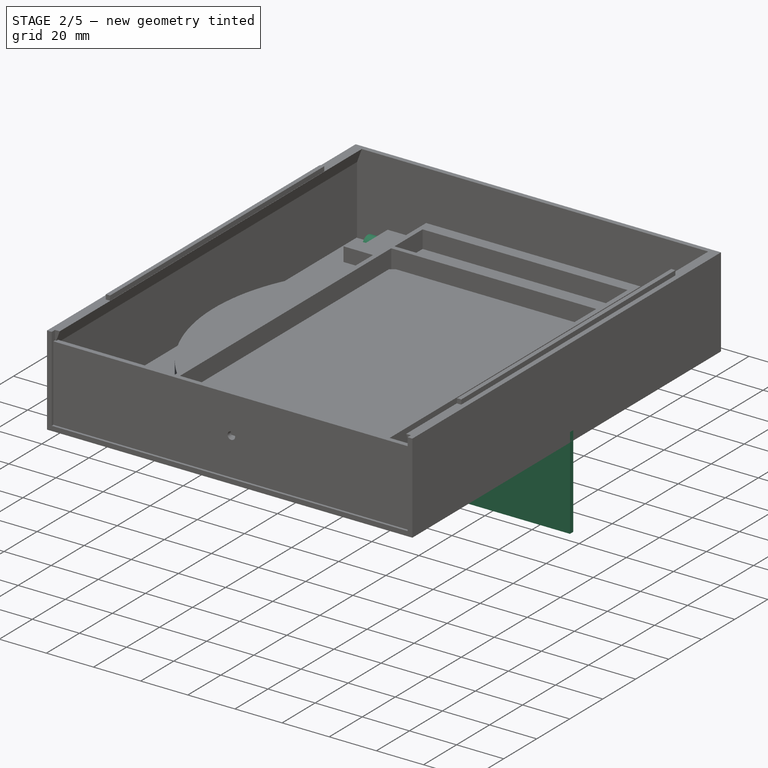
[diagram: stage 2 of 5 — iso view after this stage's code; geometry added in this stage tinted green]
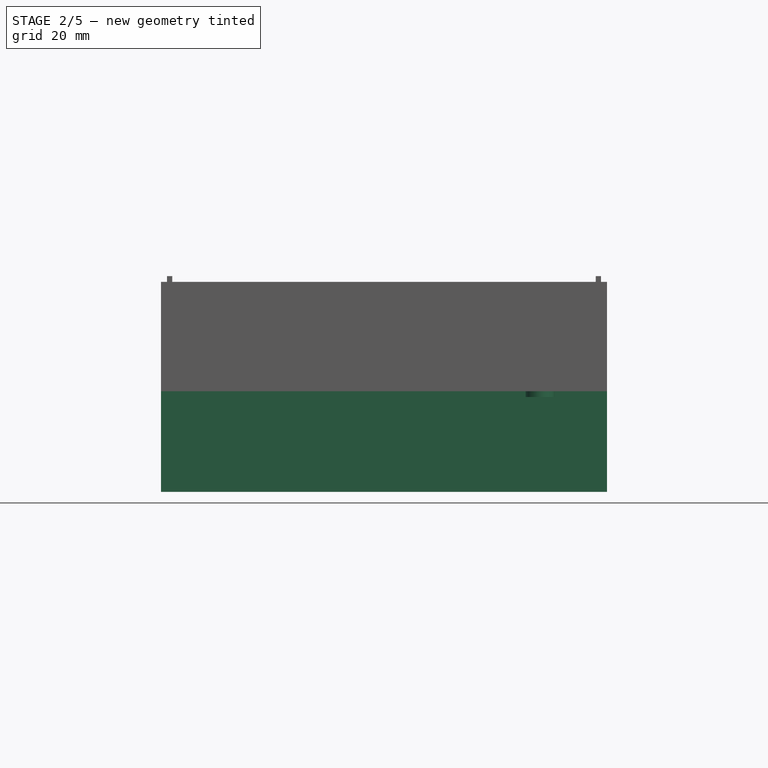
[diagram: stage 2 of 5 — front view after this stage's code; geometry added in this stage tinted green]
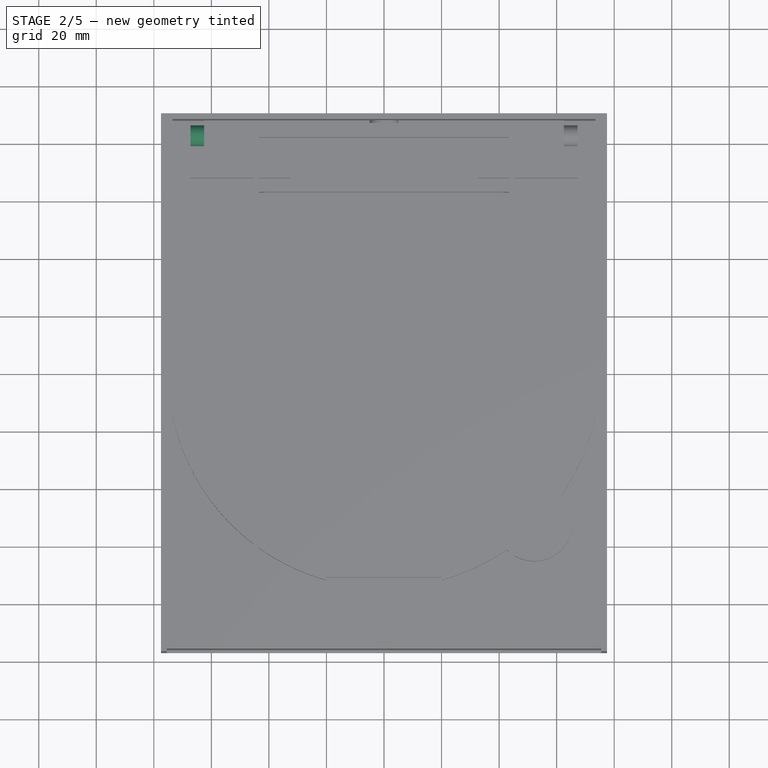
[diagram: stage 2 of 5 — top view after this stage's code; geometry added in this stage tinted green]
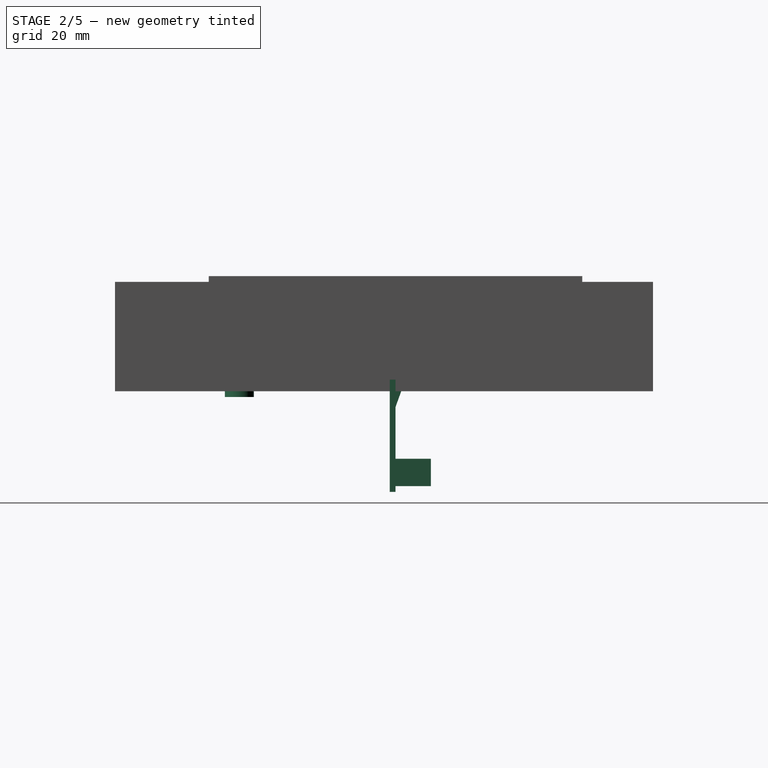
[diagram: stage 2 of 5 — right view after this stage's code; geometry added in this stage tinted green]
FEATURE [Sketcher::SketchObject] Sketch043
  FullyConstrained = true
  MapMode = 5
  Placement = pos=(0,0,0) rot=(1,0,0;1.5708rad)
  Support = -> [XZ_Plane005]
  expr: Constraints[13] = <<Masse_Grundkoerper>>.deckenstaerke_koerper
  expr: Constraints[5] = <<Masse_Grundkoerper>>.hoehe_koerper + <<Masse_Grundkoerper>>.deckenstaerke_koerper + <<Masse_Grundkoerper>>.bodenstaerke_koerper
  expr: Constraints[6] = <<Masse_Grundkoerper>>.breite_koerper + <<Masse_Grundkoerper>>.wandstaerke_koerper * 2
  sketch-geometry (7):
    g0: LineSegment StartX=77.5 StartY=4 StartZ=0 EndX=77.5 EndY=-35 EndZ=0
    g1: LineSegment StartX=77.5 StartY=-35 StartZ=0 EndX=-77.5 EndY=-35 EndZ=0
    g2: LineSegment StartX=-77.5 StartY=-35 StartZ=0 EndX=-77.5 EndY=4 EndZ=0
    g3: LineSegment StartX=-77.5 StartY=4 StartZ=0 EndX=0 EndY=4 EndZ=0
    g4: LineSegment StartX=0 StartY=4 StartZ=0 EndX=77.5 EndY=4 EndZ=0
    g5: LineSegment StartX=0 StartY=0 StartZ=0 EndX=0 EndY=4 EndZ=0
    g6: LineSegment StartX=-77.5 StartY=4 StartZ=0 EndX=77.5 EndY=4 EndZ=0
  constraints (19):
    c: Coincident(g0,g1)
    c: Coincident(g1,g2)
    c: Horizontal(g1)
    c: Vertical(g0)
    c: Vertical(g2)
    c: DistanceY(g2,g2) = 39
    c: DistanceX(g2,g0) = 155
    c: PointOnObject(g3,g-2)
    c: Coincident(g4,g3)
    c: Equal(g4,g3)
    c: Horizontal(g3)
    c: Coincident(g5,g-1)
    c: Coincident(g5,g3)
    c: DistanceY(g5,g5) = 4
    c: Coincident(g2,g6)
    c: PointOnObject(g6,g3)
    c: Coincident(g6,g0)
    c: Coincident(g3,g2)
    c: Coincident(g4,g0)
FEATURE [PartDesign::Pad] Pad008  label="Grundplatte Wand"
  Direction = (0,-1,-2e-16)
  Length = 2
  Length2 = 10
  Placement = pos=(0,0,0) rot=(1,0,0;1.5708rad)
  Profile = -> Sketch043
  ReferenceAxis = -> Sketch043 [N_Axis]
  Type = 0
  expr: Length = <<Masse_Grundkoerper>>.wandstaerke_koerper
FEATURE [Sketcher::SketchObject] Sketch044
  FullyConstrained = true
  MapMode = 5
  Placement = pos=(0,0,0) rot=(1,0,0;1.5708rad)
  Support = -> [XZ_Plane005]
  expr: Constraints[16] = <<Masse_Grundkoerper>>.hoehe_koerper
  expr: Constraints[8] = <<Masse_Grundkoerper>>.laenge_ohne_befestigung_servo
  expr: Constraints[9] = <<Masse_Grundkoerper>>.hoehe_koerper - <<Masse_Grundkoerper>>.hoehe_servo
  sketch-geometry (6):
    g0: LineSegment StartX=-11.4 StartY=-23.5 StartZ=0 EndX=11.4 EndY=-23.5 EndZ=0
    g1: LineSegment StartX=11.4 StartY=-23.5 StartZ=0 EndX=11.4 EndY=-33 EndZ=0
    g2: LineSegment StartX=11.4 StartY=-33 StartZ=0 EndX=-11.4 EndY=-33 EndZ=0
    g3: LineSegment StartX=-11.4 StartY=-33 StartZ=0 EndX=-11.4 EndY=-23.5 EndZ=0
    g4: LineSegment StartX=-11.4 StartY=-33 StartZ=0 EndX=0 EndY=-33 EndZ=0
    g5: LineSegment StartX=0 StartY=-33 StartZ=0 EndX=11.4 EndY=-33 EndZ=0
  constraints (17):
    c: Coincident(g0,g1)
    c: Coincident(g1,g2)
    c: Coincident(g2,g3)
    c: Coincident(g3,g0)
    c: Horizontal(g0)
    c: Horizontal(g2)
    c: Vertical(g1)
    c: Vertical(g3)
    c: DistanceX(g0,g0) = 22.8
    c: DistanceY(g3,g3) = 9.5
    c: Coincident(g4,g2)
    c: Coincident(g5,g4)
    c: Coincident(g5,g1)
    c: Equal(g5,g4)
    c: Horizontal(g5)
    c: PointOnObject(g4,g-2)
    c: DistanceY(g4,g-1) = 33
FEATURE [PartDesign::Pad] Pad009  label="Auflage Servo"
  BaseFeature = -> Pad008
  Direction = (0,-1,-2e-16)
  Length = 12.3
  Length2 = 10
  Placement = pos=(0,0,0) rot=(1,0,0;1.5708rad)
  Profile = -> Sketch044
  ReferenceAxis = -> Sketch044 [N_Axis]
  Reversed = true
  Type = 0
  expr: Length = <<Masse_Grundkoerper>>.breite_servo
FEATURE [PartDesign::Plane] DatumPlane007
  AttachmentOffset = pos=(0,0,-16.15) rot=(0,0,1;0rad)
  Length = 60.9545
  MapMode = 5
  Placement = pos=(-16.15,3.6e-15,-3.6e-15) rot=(0.57735,0.57735,0.57735;2.0944rad)
  ResizeMode = 0
  Support = -> [YZ_Plane005]
  Width = 70.9545
  expr: .AttachmentOffset.Base.z = -<<Masse_Grundkoerper>>.laenge_mit_befestigung_servo / 2
FEATURE [Sketcher::SketchObject] Sketch046
  FullyConstrained = true
  MapMode = 5
  Placement = pos=(-16.15,3.6e-15,-3.6e-15) rot=(0.57735,0.57735,0.57735;2.0944rad)
  Support = -> [DatumPlane007]
  expr: Constraints[6] = <<Masse_Grundkoerper>>.winkel_auflage_koerper
  expr: Constraints[7] = <<Masse_Grundkoerper>>.wandstaerke_koerper
  sketch-geometry (3):
    g0: LineSegment StartX=0 StartY=0 StartZ=0 EndX=2 EndY=0 EndZ=0
    g1: LineSegment StartX=2 StartY=0 StartZ=0 EndX=0 EndY=-5.49495 EndZ=0
    g2: LineSegment StartX=0 StartY=-5.49495 StartZ=0 EndX=0 EndY=0 EndZ=0
  constraints (8):
    c: Coincident(g-1,g0)
    c: PointOnObject(g0,g-1)
    c: Coincident(g0,g1)
    c: PointOnObject(g1,g-2)
    c: Coincident(g1,g2)
    c: Coincident(g2,g0)
    c: Angle(g1,g2) = 0.349066
    c: DistanceX(g0,g0) = 2
FEATURE [PartDesign::Pad] Pad011  label="Auflage Decke"
  BaseFeature = -> Pad009
  Direction = (1,-1e-16,1e-16)
  Length = 51.35
  Length2 = 10
  Placement = pos=(0,0,0) rot=(1,0,0;1.5708rad)
  Profile = -> Sketch046
  ReferenceAxis = -> Sketch046 [N_Axis]
  Reversed = true
  Type = 0
  expr: Length = <<Masse_Grundkoerper>>.breite_koerper / 2 - <<Masse_Grundkoerper>>.laenge_mit_befestigung_servo / 2 - <<Masse_Grundkoerper>>.wandstaerke_koerper * 4
FEATURE [Sketcher::SketchObject] Sketch047
  FullyConstrained = true
  MapMode = 5
  Placement = pos=(0,0,0) rot=(1,0,0;1.5708rad)
  Support = -> [XZ_Plane004]
  expr: Constraints[12] = <<Masse_Grundkoerper>>.winkel_auflage_koerper
  expr: Constraints[13] = <<Masse_Grundkoerper>>.wandstaerke_koerper
  expr: Constraints[2] = <<Masse_Grundkoerper>>.hoehe_koerper + <<Masse_Grundkoerper>>.bodenstaerke_koerper
  expr: Constraints[5] = (<<Masse_Grundkoerper>>.innendurchmesser_napf + <<Masse_Grundkoerper>>.wandstaerke_koerper) / 2
  sketch-geometry (5):
    g0: LineSegment StartX=0 StartY=0 StartZ=0 EndX=0 EndY=35 EndZ=0
    g1: LineSegment StartX=0 StartY=35 StartZ=0 EndX=66 EndY=35 EndZ=0
    g2: LineSegment StartX=66 StartY=35 StartZ=0 EndX=68 EndY=35 EndZ=0
    g3: LineSegment StartX=68 StartY=35 StartZ=0 EndX=66 EndY=29.505 EndZ=0
    g4: LineSegment StartX=66 StartY=29.505 StartZ=0 EndX=66 EndY=35 EndZ=0
  constraints (14):
    c: Coincident(g0,g-1)
    c: PointOnObject(g0,g-2)
    c: DistanceY(g0,g0) = 35
    c: Coincident(g1,g0)
    c: Angle(g0,g1) = 1.5708
    c: DistanceX(g1,g1) = 66
    c: Coincident(g1,g2)
    c: Horizontal(g2)
    c: Coincident(g2,g3)
    c: Coincident(g3,g4)
    c: Coincident(g4,g2)
    c: Vertical(g4)
    c: Angle(g3,g4) = 0.349066
    c: DistanceX(g2,g2) = 2
FEATURE [Sketcher::SketchObject] Sketch048
  FullyConstrained = true
  MapMode = 5
  Placement = pos=(0,0,0) rot=(0.57735,0.57735,0.57735;2.0944rad)
  Support = -> [YZ_Plane004]
  expr: Constraints[12] = <<Masse_Grundkoerper>>.winkel_auflage_koerper
  expr: Constraints[13] = <<Masse_Grundkoerper>>.wandstaerke_koerper
  expr: Constraints[4] = <<Masse_Grundkoerper>>.innendurchmesser_napf / 2 + <<Masse_Grundkoerper>>.abstand_rand_achse_napf + <<Masse_Grundkoerper>>.laenge_achsaufnahme
  expr: Constraints[5] = <<Masse_Grundkoerper>>.hoehe_koerper + <<Masse_Grundkoerper>>.bodenstaerke_koerper
  sketch-geometry (5):
    g0: LineSegment StartX=0 StartY=0 StartZ=0 EndX=87.5 EndY=0 EndZ=0
    g1: LineSegment StartX=87.5 StartY=0 StartZ=0 EndX=87.5 EndY=35 EndZ=0
    g2: LineSegment StartX=87.5 StartY=35 StartZ=0 EndX=87.5 EndY=29.505 EndZ=0
    g3: LineSegment StartX=87.5 StartY=29.505 StartZ=0 EndX=85.5 EndY=35 EndZ=0
    g4: LineSegment StartX=85.5 StartY=35 StartZ=0 EndX=87.5 EndY=35 EndZ=0
  constraints (14):
    c: Coincident(g0,g-1)
    c: PointOnObject(g0,g-1)
    c: Coincident(g1,g0)
    c: Vertical(g1)
    c: DistanceX(g0,g0) = 87.5
    c: DistanceY(g1,g1) = 35
    c: Coincident(g1,g2)
    c: PointOnObject(g2,g1)
    c: Coincident(g2,g3)
    c: Coincident(g3,g4)
    c: Coincident(g4,g2)
    c: Horizontal(g4)
    c: Angle(g2,g3) = 0.349066
    c: DistanceX(g4,g4) = 2
FEATURE [PartDesign::Plane] DatumPlane008
  AttachmentOffset = pos=(0,0,75.5) rot=(0,0,1;0rad)
  Length = 204.235
  MapMode = 5
  Placement = pos=(75.5,-1.68e-14,1.68e-14) rot=(0.57735,0.57735,0.57735;2.0944rad)
  ResizeMode = 0
  Support = -> [YZ_Plane002]
  Width = 69.2354
  expr: .AttachmentOffset.Base.z = <<Masse_Grundkoerper>>.breite_koerper / 2
FEATURE [Sketcher::SketchObject] Sketch024
  FullyConstrained = true
  MapMode = 5
  Placement = pos=(75.5,-1.68e-14,1.68e-14) rot=(0.57735,0.57735,0.57735;2.0944rad)
  Support = -> [DatumPlane008]
  expr: Constraints[2] = <<Masse_Grundkoerper>>.innendurchmesser_napf / 2 + <<Masse_Grundkoerper>>.abstand_rand_achse_napf + <<Masse_Grundkoerper>>.laenge_achsaufnahme / 2
  expr: Constraints[5] = <<Masse_Grundkoerper>>.laenge_achsaufnahme / 2 + <<Masse_Grundkoerper>>.deckenstaerke_koerper + <<Masse_Grundkoerper>>.erhoehung_achse
  expr: Constraints[7] = <<Masse_Grundkoerper>>.durchsteckloch_schraube_achse
  sketch-geometry (3):
    g0: LineSegment StartX=0 StartY=0 StartZ=0 EndX=82.25 EndY=0 EndZ=0
    g1: LineSegment StartX=82.25 StartY=0 StartZ=0 EndX=82.25 EndY=9.75 EndZ=0
    g2: Circle CenterX=82.25 CenterY=9.75 CenterZ=0 NormalX=0 NormalY=0 NormalZ=1 AngleXU=0 Radius=1.6
  constraints (8):
    c: Coincident(g0,g-1)
    c: PointOnObject(g0,g-1)
    c: DistanceX(g0,g0) = 82.25
    c: Coincident(g1,g0)
    c: Vertical(g1)
    c: DistanceY(g1,g1) = 9.75
    c: Coincident(g2,g1)
    c: Diameter(g2) = 3.2
FEATURE [PartDesign::Mirrored] Mirrored002  label="Tasche Achseinbuchtung Spiegel"
  BaseFeature = -> Pocket001
  MirrorPlane = -> YZ_Plane
  Originals = -> [Pocket001]
FEATURE [PartDesign::Groove] Groove  label="Dichtungsmulde"
  Angle = 360
  Axis = (0,-2e-16,1)
  Base = (0,0,0)
  BaseFeature = -> Mirrored002
  Profile = -> Sketch030
  ReferenceAxis = -> Sketch030 [V_Axis]
FEATURE [PartDesign::Pocket] Pocket004  label="Vertiefung Deckel"
  BaseFeature = -> Groove
  Direction = (0,0,-1)
  Length = 7
  Length2 = 5
  Profile = -> Sketch031
  ReferenceAxis = -> Sketch031 [N_Axis]
  Reversed = true
  Type = 0
  expr: Length = <<Masse_Grundkoerper>>.staerke_deckel - <<Masse_Grundkoerper>>.mindeststaerke_deckel
FEATURE [PartDesign::PolarPattern] PolarPattern  label="Vertiefung Pattern"
  Angle = 360
  Axis = -> Sketch031 [N_Axis]
  BaseFeature = -> Pocket004
  Occurrences = 6
  Originals = -> [Pocket004]
  expr: Occurrences = <<Masse_Grundkoerper>>.anzahl_versenkungen_deckel
FEATURE [PartDesign::Pocket] Pocket005  label="Loch Mitte Deckel"
  BaseFeature = -> PolarPattern
  Direction = (0,0,-1)
  Length = 7
  Length2 = 5
  Profile = -> Sketch032
  ReferenceAxis = -> Sketch032 [N_Axis]
  Reversed = true
  Type = 0
  expr: Length = <<Masse_Grundkoerper>>.staerke_deckel - <<Masse_Grundkoerper>>.mindeststaerke_deckel
FEATURE [PartDesign::Pocket] Pocket006  label="Tasche Rundung Achse hinten"
  BaseFeature = -> Pocket005
  Direction = (-1,1e-16,-1e-16)
  Length = 5
  Length2 = 5
  Profile = -> Sketch033
  ReferenceAxis = -> Sketch033 [N_Axis]
  Type = 1
FEATURE [PartDesign::Pocket] Pocket007  label="Einbuchtung Feder Deckel"
  BaseFeature = -> Pocket006
  Direction = (0,0,-1)
  Length = 2
  Length2 = 5
  Profile = -> Sketch034
  ReferenceAxis = -> Sketch034 [N_Axis]
  Reversed = true
  Type = 0
  expr: Length = <<Masse_Grundkoerper>>.federdraht_durchmesser_deckel
FEATURE [PartDesign::Mirrored] Mirrored003  label="Einbuchtung Feder Deckel Spiegel"
  BaseFeature = -> Pocket007
  MirrorPlane = -> YZ_Plane
  Originals = -> [Pocket007]
FEATURE [PartDesign::Pocket] Pocket010  label="Tasche Achse"
  BaseFeature = -> Mirrored003
  Direction = (-1,1e-16,-1e-16)
  Length = 5
  Length2 = 5
  Profile = -> Sketch029
  ReferenceAxis = -> Sketch029 [N_Axis]
  Type = 1
FEATURE [PartDesign::Body] Body004  label="Mittelstueck"
  Group = -> [Sketch039,Pad004,DatumPlane004,Sketch040,Pad005,Sketch041,Pad006,DatumPlane005,Sketch042,Pad007,Mirrored004,Sketch047,Revolution,Sketch048,Pad012,Sketch054,Pocket013,Mirrored007,DatumPlane016,Sketch067,Pocket015,Sketch068,DatumPlane017,Pad022,Mirrored009,Sketch070,Pocket017,DatumPlane018,Sketch073,Pocket018,Sketch074,Pocket019,Mirrored011,Mirrored012,Sketch075,Pocket020,Mirrored013]
  Origin = -> Origin004
  Placement = pos=(0,0,-35) rot=(0,0,1;0rad)
  Tip = -> Mirrored013
FEATURE [PartDesign::Plane] DatumPlane019
  AttachmentOffset = pos=(0,0,-2) rot=(0,0,1;0rad)
  Length = 180.83
  MapMode = 5
  Placement = pos=(0,0,-2) rot=(0,0,1;0rad)
  ResizeMode = 0
  Support = -> [XY_Plane]
  Width = 190.735
  expr: .AttachmentOffset.Base.z = -<<Masse_Grundkoerper>>.tiefe_einbuchtung_napf
FEATURE [Sketcher::SketchObject] Sketch077
  FullyConstrained = true
  MapMode = 5
  Placement = pos=(0,0,-2) rot=(0,0,1;0rad)
  Support = -> [DatumPlane019]
  expr: Constraints[2] = <<Masse_Grundkoerper>>.aussendurchmesser_napf / 2 + <<Masse_Grundkoerper>>.breite_finger / 4
  expr: Constraints[4] = <<Masse_Grundkoerper>>.durchmesser_magnet
  sketch-geometry (2):
    g0: LineSegment StartX=0 StartY=0 StartZ=0 EndX=54.2704 EndY=-54.2704 EndZ=0
    g1: Circle CenterX=54.2704 CenterY=-54.2704 CenterZ=0 NormalX=0 NormalY=0 NormalZ=1 AngleXU=0 Radius=4.05
  constraints (5):
    c: Coincident(g0,g-1)
    c: Angle(g0,g-1) = 0.785398
    c: Distance(g0) = 76.75
    c: Coincident(g1,g0)
    c: Diameter(g1) = 8.1
FEATURE [PartDesign::Pocket] Pocket021
  BaseFeature = -> Pocket010
  Direction = (0,0,-1)
  Length = 3
  Length2 = 5
  Profile = -> Sketch077
  ReferenceAxis = -> Sketch077 [N_Axis]
  Reversed = true
  Type = 0
  expr: Length = <<Masse_Grundkoerper>>.hoehe_magnet
FEATURE [PartDesign::Body] Body005  label="Wand"
  Group = -> [Sketch043,Pad008,Sketch044,Pad009,DatumPlane007,Sketch046,Pad011,Mirrored005,Sketch052,Pocket011,Sketch053,Pocket012,Sketch065,Pad020,Sketch066,Pad021,Sketch069,Pocket016,Mirrored010,DatumPlane020,Sketch079,Pad025]
  Origin = -> Origin005
  Placement = pos=(0,-140,0) rot=(0,0,1;0rad)
  Tip = -> Pad025
FEATURE [Sketcher::SketchObject] Sketch080
  FullyConstrained = true
  MapMode = 5
  Support = -> [XY_Plane]
  expr: Constraints[1] = <<Masse_Grundkoerper>>.aussendurchmesser_napf / 2 + <<Masse_Grundkoerper>>.breite_finger / 4
  expr: Constraints[5] = <<Masse_Grundkoerper>>.durchmesser_magnet
  expr: Constraints[6] = <<Masse_Grundkoerper>>.durchmesser_magnet + <<Masse_Grundkoerper>>.wandstaerke_koerper
  sketch-geometry (3):
    g0: LineSegment StartX=0 StartY=0 StartZ=0 EndX=54.2704 EndY=-54.2704 EndZ=0
    g1: Circle CenterX=54.2704 CenterY=-54.2704 CenterZ=0 NormalX=0 NormalY=0 NormalZ=1 AngleXU=0 Radius=4.05
    g2: Circle CenterX=54.2704 CenterY=-54.2704 CenterZ=0 NormalX=0 NormalY=0 NormalZ=1 AngleXU=0 Radius=5.05
  constraints (7):
    c: Coincident(g0,g-1)
    c: Distance(g0) = 76.75
    c: Angle(g0,g-1) = 0.785398
    c: Coincident(g1,g0)
    c: Coincident(g2,g1)
    c: Diameter(g1) = 8.1
    c: Diameter(g2) = 10.1
FEATURE [PartDesign::Pad] Pad026
  BaseFeature = -> Pocket021
  Direction = (0,0,1)
  Length = 2
  Length2 = 10
  Profile = -> Sketch080
  ReferenceAxis = -> Sketch080 [N_Axis]
  Reversed = true
  Type = 0
  expr: Length = <<Masse_Grundkoerper>>.tiefe_einbuchtung_napf
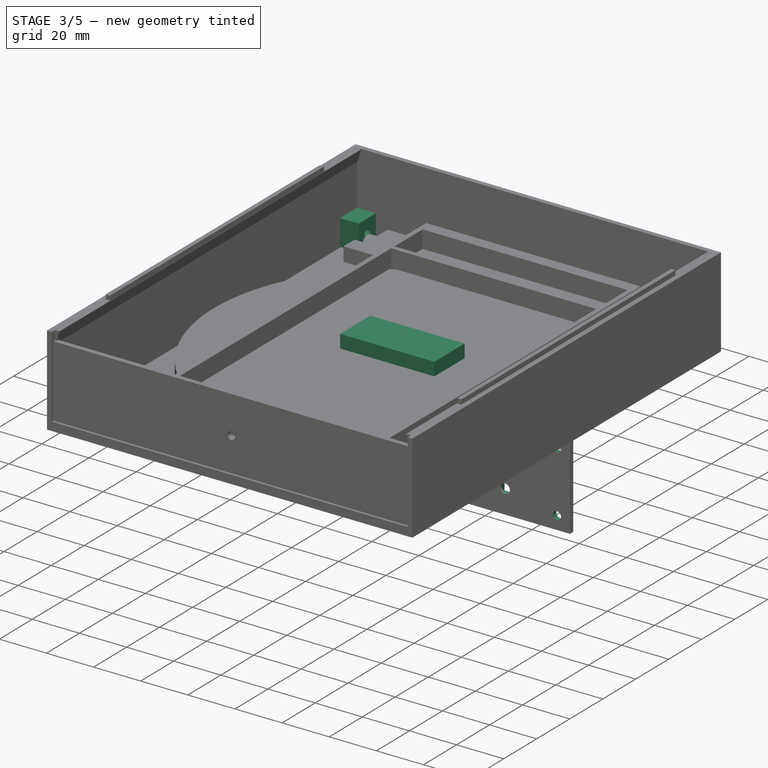
[diagram: stage 3 of 5 — iso view after this stage's code; geometry added in this stage tinted green]
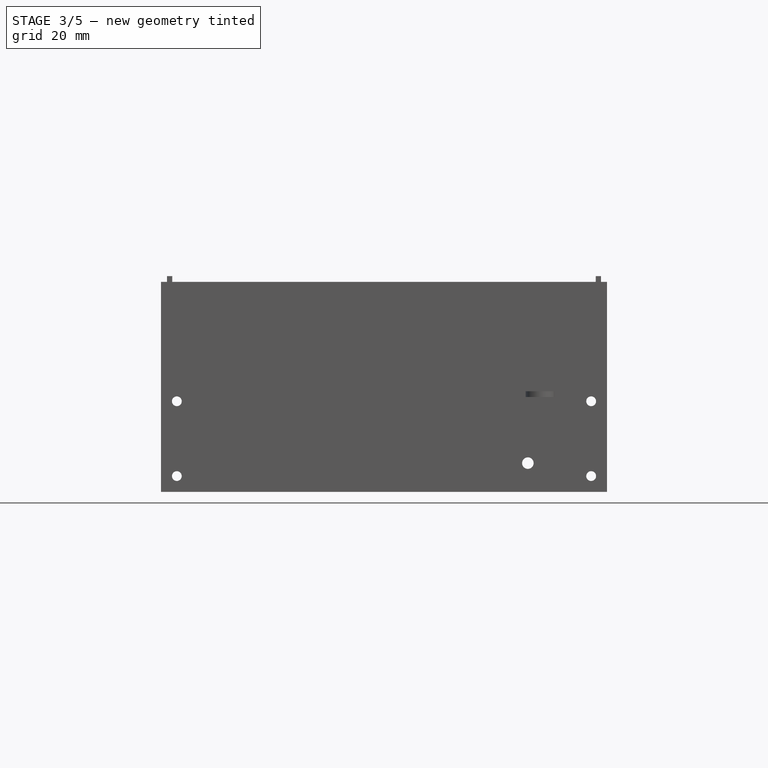
[diagram: stage 3 of 5 — front view after this stage's code; geometry added in this stage tinted green]
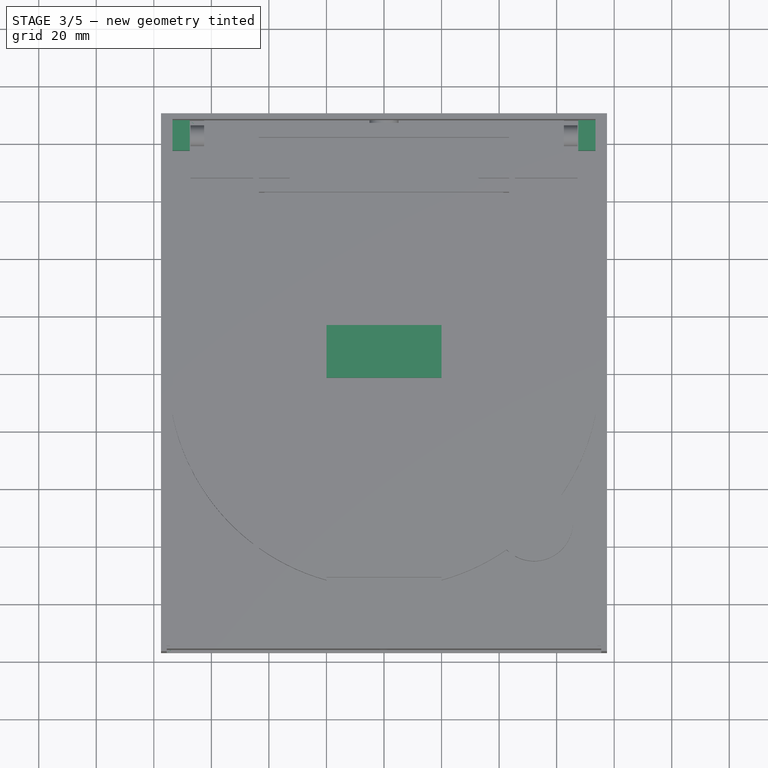
[diagram: stage 3 of 5 — top view after this stage's code; geometry added in this stage tinted green]
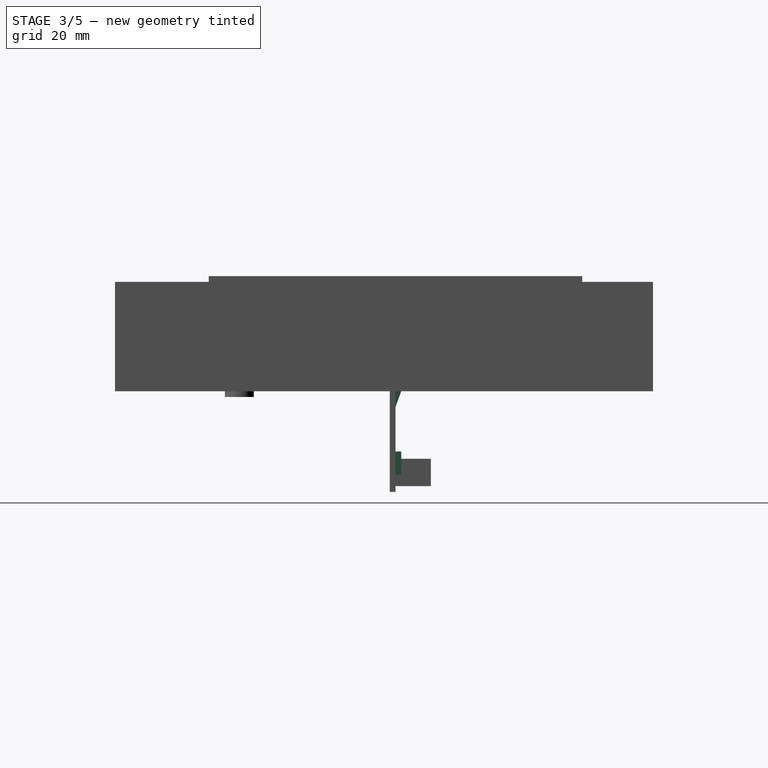
[diagram: stage 3 of 5 — right view after this stage's code; geometry added in this stage tinted green]
FEATURE [Spreadsheet::Sheet] Spreadsheet  label="Masse_Grundkoerper"
  cells = A1=Körpermaße; B2=Breite; C2(breite_koerper)==151mm; B3=Höhe; C3(hoehe_koerper)==33mm; B4=Länge; C4(laenge_koerper)==185mm; B5=Wandstärke; C5(wandstaerke_koerper)==2mm; B6=Bodenstärke; C6(bodenstaerke_koerper)==2mm; B7=Deckenstärke; C7(deckenstaerke_koerper)==4mm; B8=Winkel Auflage; C8(winkel_auflage_koerper)=20; B9=Durchmesser Kabelöffnung; C9(durchmesser_kabeloeffnung)==20mm; B10=Bohrkoerper vorne Kantenmaß; C10(kante_bohrkoerper)==7mm; B11=Winkel Bohrkoerper; C11(winkel_bohrkoerper)=45; B12=Stärke Auflage; C12(staerke_auflage)==0.4mm; B13=Tolleranz Auflage; C13(tolleranz_auflage)==0.7mm; B14=Tolleranz Durchsteckloch; C14(tolleranz_durchsteckloch)==0.2mm; A16=Napf; B17=Innendurchmesser; C17(innendurchmesser_napf)==130mm; B18=Abstand Rand Achse; C18(abstand_rand_achse_napf)==12mm; B19=Tiefe Einbuchtung; C19(tiefe_einbuchtung_napf)==2mm; B20=Außendurchmesser Napf; C20(aussendurchmesser_napf)==141mm; A22=Achse; B23=Durchsteckloch Schraube; C23(durchsteckloch_schraube_achse)==3.2mm; B24=Schraubenkopf Durchmesser; C24(schraubenkopf_durchmesser_achse)==6.5mm; B25=Schraubenkopf Höhe; C25(schraubenkopf_hoehe_achse)==3.1mm; B26=Achsaufnahme Staerke; C26(staerke_achsaufnahme)==8mm; B27=Achsaufnahme Laenge; C27(laenge_achsaufnahme)==10.5mm; B28=Durchmesser Achse Feder innen; C28(durchmesser_feder_innen_achse)==7.2mm; B29=Durchmesser Achse Feder außen; C29(durchmesser_feder_aussen_achse)==12mm; B30=Tiefe Versenkung Feder; C30(tiefe_feder_versenkung)==5mm; B31=Durchmesser Achse; C31(durchmesser_achse)==2.8mm; B32=Zusatzerhöhung; C32(erhoehung_achse)==0.5mm; A34=Fingeröffnung; B35=Breite; C35(breite_finger)==25mm; B36=Tiefe (exkl. Rundung); C36(tiefe_finger)==10mm; A38=Deckel; B39=Durchmesser; C39(durchmesser_deckel)==150mm; B40=Tolleranz Achse; C40(tolleranz_achse_deckel)==0.5mm; B41=Stärke Achse; C41(staerke_achse_deckel)==20mm; B42=Stärke; C42(staerke_deckel)==10mm; B43=Überstand Fingerabdeckung; C43(ueberstand_finger_deckel)==2mm; B44=Durchmesser Versenkungen; C44(durchmesser_versenkungen_deckel)==126mm; B45=Anzahl Versenkungen; C45(anzahl_versenkungen_deckel)=6; B46=Gradanzahl Zwischenwaende Versenkung; C46(gradanzahl_zwischenwaende_versenkung_deckel)=1; B47=Mindeststaerke; C47(mindeststaerke_deckel)==3mm; B48=Loch Mitte; C48(loch_mitte_deckel)==45mm; B49=Durchmesser Dichtungsband; C49(durchmesser_dichtungsband)==5mm; B50=Versenkung Dichtungsband; C50(versenkung_dichtungsband)==1.5mm; B51=Federdraht; C51(federdraht_durchmesser_deckel)==2mm; B52=Federbreite; C52(breite_feder_deckel)==5mm; B53=Federvorspannung; C53(vorspannung_feder)==2mm; B54=Versenkung Verschluss Deckel; C54(versenkung_verschluss_deckel)==1mm; B55=Toleranz Verschluss; C55(tolleranz_verschluss)==0.5mm; B56=Tolleranz Fingerversenkung; C56(tolleranz_fingerversenkung_deckel)==2mm; A58=Verschluss; B59=Tiefe; C59(tiefe_verschluss)==5mm; B60=Breite; C60(breite_verschluss)==40mm; B61=Höhe; C61(hoehe_verschluss)==4mm; B62=Steigung in Grad; C62(steigung_grad_verschluss)=0; B63=Rundung Radius; C63(rundung_radius_verschluss)==20mm; B64=Wandstaerke; C64(wandstaerke_verschluss)==3mm; B65=Padhöhe; C65(padhoehe_verschluss)==0.6mm; B66=Auflagebreite; C66(auflagebreite_verschluss)==8mm; A68=Servo; B69=Durchmesser Achse mit Aufsatz; C69(durchmesser_achse_servo)==7mm; B70=Breite; C70(breite_servo)==12.3mm; B71=Mindesthoehe Arm; C71(mindesthoehe_arm_servo)==3.3mm; B72=Durchmesser Kopf gross; C72(durchmesser_kopf_gross_servo)==11.6mm; B73=Durchmesser Kopf klein; C73(durchmesser_kopf_klein_servo)==5.8mm; B74=Kopf Gesamtbreite; C74(gesamtbreite_kopf_servo)==14.7mm; B75=Laenge mit Befestigung; C75(laenge_mit_befestigung_servo)==32.3mm; B76=Abstand kurze Zeite zu Achsmitte; C76(abstand_achsmitte_kurz_servo)==10mm; B77=Vertiefung Servo; C77(vertiefung_servo)==2mm; B78=Hoehe; C78(hoehe_servo)==23.5mm; B79=Länge ohne Befestigung; C79(laenge_ohne_befestigung_servo)==22.8mm; B80=Armstärke; C80(staerke_arm_servo)==2.2mm; B81=Erhöhung Abdeckung servo; C81(erhoehung_abdeckung_servo)==2.5mm; A83=Eispack; B84=Höhe; C84(hoehe_eispack)==27mm; B85=Breite; C85(breite_eispack)==82mm; B86=Länge; C86(laenge_eispack)==152mm; B87=Toleranz; C87(toleranz_eispack)==5mm; B88=Schubladenbodenstärke; C88(schublade_boden_staerke)==4mm; B89=Tolleranz Verbinder; C89(tolleranz_verbinder_eispack)==0.2mm; B90=Tolleranz Schublade; C90(tolleranz_schublade)==0.5mm; A92=Taster; B93=Kantenlänge; C93(kantenlaenge_taster)==6.1mm; B94=Höhe; C94(hoehe_taster)==1mm; B95=Abstand Mitte; C95(abstand_mitte_taster)==50mm; B96=Abstand oben; C96(abstand_oben_taster)==25mm; B97=Durchmesser Taster; C97(durchmesser_taster)==4mm; B98=Wandhöhe; C98(wand_hoehe_taster)==2mm; A100=Schubladengriff; B101=Durchmesser unten; C101(durchmesser_unten_griff)==10mm; B102=Durchmesser oben; C102(durchmesser_oben_griff)==20mm; B103=Gesamtlänge; C103(laenge_griff)==10mm; B104=Anschrägung; C104(anschraegung_winkel_griff)=130; A106=Magnet; B107=Höhe; C107(hoehe_magnet)==3mm; B108=Durchmesser; C108(durchmesser_magnet)==8.1mm; A110=Hall Sensor; B111=Breite; C111(breite_hall_sensor)==4.1mm; B112=Laenge; C112(laenge_hall_sensor)==3.3mm; B113=Tiefe Einbuchtung; C113(tiefe_hall_sensor)==1mm
FEATURE [Sketcher::SketchObject] Sketch022
  FullyConstrained = true
  MapMode = 5
  Support = -> [XY_Plane002]
  expr: Constraints[15] = <<Masse_Grundkoerper>>.innendurchmesser_napf
  expr: Constraints[16] = <<Masse_Grundkoerper>>.breite_koerper
  expr: Constraints[17] = <<Masse_Grundkoerper>>.laenge_koerper
  expr: Constraints[18] = <<Masse_Grundkoerper>>.durchmesser_kopf_gross_servo
  expr: Constraints[19] = <<Masse_Grundkoerper>>.durchmesser_kopf_klein_servo
  expr: Constraints[23] = <<Masse_Grundkoerper>>.breite_servo / 2 + <<Masse_Grundkoerper>>.wandstaerke_koerper * 2
  expr: Constraints[37] = <<Masse_Grundkoerper>>.abstand_rand_achse_napf + <<Masse_Grundkoerper>>.laenge_achsaufnahme + <<Masse_Grundkoerper>>.innendurchmesser_napf / 2
  sketch-geometry (13):
    g0: Circle CenterX=0 CenterY=0 CenterZ=0 NormalX=0 NormalY=0 NormalZ=1 AngleXU=0 Radius=65
    g1: LineSegment StartX=-75.5 StartY=87.5 StartZ=0 EndX=75.5 EndY=87.5 EndZ=0
    g2: LineSegment StartX=75.5 StartY=87.5 StartZ=0 EndX=75.5 EndY=-97.5 EndZ=0
    g3: LineSegment StartX=75.5 StartY=-97.5 StartZ=0 EndX=-75.5 EndY=-97.5 EndZ=0
    g4: LineSegment StartX=-75.5 StartY=-97.5 StartZ=0 EndX=-75.5 EndY=87.5 EndZ=0
    g5: ArcOfCircle CenterX=-5.8 CenterY=-87.35 CenterZ=0 NormalX=0 NormalY=0 NormalZ=1 AngleXU=0 Radius=2.9 StartAngle=1.31812 EndAngle=4.96507
    g6: ArcOfCircle CenterX=0 CenterY=-87.35 CenterZ=0 NormalX=0 NormalY=0 NormalZ=1 AngleXU=0 Radius=5.8 StartAngle=3.64695 EndAngle=8.91942
    g7: LineSegment StartX=-5.8 StartY=-87.35 StartZ=0 EndX=0 EndY=-87.35 EndZ=0
    g8: LineSegment StartX=0 StartY=-87.35 StartZ=0 EndX=0 EndY=-97.5 EndZ=0
    g9: LineSegment StartX=-75.5 StartY=0 StartZ=0 EndX=0 EndY=0 EndZ=0
    g10: LineSegment StartX=0 StartY=0 StartZ=0 EndX=75.5 EndY=0 EndZ=0
    g11: LineSegment StartX=0 StartY=-87.35 StartZ=0 EndX=5.8 EndY=-87.35 EndZ=0
    g12: GeomPoint X=0 Y=87.5 Z=0
  constraints (38):
    c: Coincident(g0,g-1)
    c: Coincident(g1,g2)
    c: Coincident(g2,g3)
    c: Coincident(g3,g4)
    c: Coincident(g4,g1)
    c: Horizontal(g1)
    c: Horizontal(g3)
    c: Vertical(g2)
    c: Vertical(g4)
    c: Coincident(g6,g5)
    c: Coincident(g6,g5)
    c: PointOnObject(g6,g-2)
    c: Coincident(g7,g5)
    c: Coincident(g7,g6)
    c: Angle(g-2,g7) = 1.5708
    c: Diameter(g0) = 130
    c: DistanceX(g1,g1) = 151
    c: DistanceY(g2,g2) = 185
    c: Diameter(g6) = 11.6
    c: Diameter(g5) = 5.8
    c: Coincident(g8,g6)
    c: PointOnObject(g8,g3)
    c: Vertical(g8)
    c: DistanceY(g8,g8) = 10.15
    c: PointOnObject(g9,g4)
    c: Coincident(g9,g0)
    c: Horizontal(g9)
    c: Coincident(g10,g0)
    c: PointOnObject(g10,g2)
    c: Horizontal(g10)
    c: Equal(g10,g9)
    c: Coincident(g11,g6)
    c: PointOnObject(g11,g6)
    c: Horizontal(g11)
    c: Equal(g11,g7)
    c: PointOnObject(g12,g1)
    c: PointOnObject(g12,g-2)
    c: DistanceY(g0,g12) = 87.5
FEATURE [PartDesign::Pad] Pad  label="Grundplatte"
  Direction = (0,0,1)
  Length = 3.6
  Length2 = 10
  Profile = -> Sketch022
  ReferenceAxis = -> Sketch022 [N_Axis]
  Type = 0
  expr: Length = <<Masse_Grundkoerper>>.deckenstaerke_koerper - <<Masse_Grundkoerper>>.staerke_auflage
FEATURE [PartDesign::Mirrored] Mirrored005  label="Auflage Decke Spiegel"
  BaseFeature = -> Pad011
  MirrorPlane = -> YZ_Plane005
  Originals = -> [Pad011]
  Placement = pos=(0,0,0) rot=(1,0,0;1.5708rad)
FEATURE [Sketcher::SketchObject] Sketch052
  FullyConstrained = true
  MapMode = 5
  Placement = pos=(0,0,0) rot=(1,0,0;1.5708rad)
  Support = -> [XZ_Plane005]
  expr: Constraints[14] = <<Masse_Grundkoerper>>.kantenlaenge_taster
  expr: Constraints[16] = <<Masse_Grundkoerper>>.abstand_mitte_taster
  expr: Constraints[17] = <<Masse_Grundkoerper>>.abstand_oben_taster
  sketch-geometry (7):
    g0: LineSegment StartX=0 StartY=0 StartZ=0 EndX=50 EndY=0 EndZ=0
    g1: LineSegment StartX=50 StartY=0 StartZ=0 EndX=50 EndY=-25 EndZ=0
    g2: LineSegment StartX=46.95 StartY=-28.05 StartZ=0 EndX=46.95 EndY=-21.95 EndZ=0
    g3: LineSegment StartX=46.95 StartY=-21.95 StartZ=0 EndX=53.05 EndY=-21.95 EndZ=0
    g4: LineSegment StartX=53.05 StartY=-21.95 StartZ=0 EndX=53.05 EndY=-28.05 EndZ=0
    g5: LineSegment StartX=53.05 StartY=-28.05 StartZ=0 EndX=46.95 EndY=-28.05 EndZ=0
    g6: GeomPoint X=50 Y=-25 Z=0
  constraints (18):
    c: Coincident(g0,g-1)
    c: PointOnObject(g0,g-1)
    c: Coincident(g1,g0)
    c: Vertical(g1)
    c: Coincident(g2,g3)
    c: Coincident(g3,g4)
    c: Coincident(g4,g5)
    c: Coincident(g5,g2)
    c: Horizontal(g3)
    c: Horizontal(g5)
    c: Vertical(g2)
    c: Vertical(g4)
    c: Symmetric(g3,g2,g6)
    c: Coincident(g6,g1)
    c: DistanceX(g3,g3) = 6.1
    c: Equal(g3,g4)
    c: DistanceX(g0,g0) = 50
    c: DistanceY(g1,g1) = 25
FEATURE [PartDesign::Pocket] Pocket011  label="Tasche Taster"
  BaseFeature = -> Mirrored005
  Direction = (0,1,2e-16)
  Length = 1
  Length2 = 5
  Placement = pos=(0,0,0) rot=(1,0,0;1.5708rad)
  Profile = -> Sketch052
  ReferenceAxis = -> Sketch052 [N_Axis]
  Reversed = true
  Type = 0
  expr: Length = <<Masse_Grundkoerper>>.wandstaerke_koerper - <<Masse_Grundkoerper>>.hoehe_taster
FEATURE [Sketcher::SketchObject] Sketch053
  FullyConstrained = true
  MapMode = 5
  Placement = pos=(0,0,0) rot=(1,0,0;1.5708rad)
  Support = -> [XZ_Plane005]
  expr: Constraints[4] = <<Masse_Grundkoerper>>.abstand_oben_taster
  expr: Constraints[5] = <<Masse_Grundkoerper>>.abstand_mitte_taster
  expr: Constraints[7] = <<Masse_Grundkoerper>>.durchmesser_taster
  sketch-geometry (3):
    g0: LineSegment StartX=0 StartY=0 StartZ=0 EndX=50 EndY=0 EndZ=0
    g1: LineSegment StartX=50 StartY=0 StartZ=0 EndX=50 EndY=-25 EndZ=0
    g2: Circle CenterX=50 CenterY=-25 CenterZ=0 NormalX=0 NormalY=0 NormalZ=1 AngleXU=0 Radius=2
  constraints (8):
    c: Coincident(g0,g-1)
    c: PointOnObject(g0,g-1)
    c: Coincident(g1,g0)
    c: Vertical(g1)
    c: DistanceY(g1,g1) = 25
    c: DistanceX(g0,g0) = 50
    c: Coincident(g2,g1)
    c: Diameter(g2) = 4
FEATURE [PartDesign::Pocket] Pocket012  label="Loch Taster Mitte"
  BaseFeature = -> Pocket011
  Direction = (0,1,2e-16)
  Length = 5
  Length2 = 5
  Placement = pos=(0,0,0) rot=(1,0,0;1.5708rad)
  Profile = -> Sketch053
  ReferenceAxis = -> Sketch053 [N_Axis]
  Reversed = true
  Type = 1
FEATURE [PartDesign::Plane] DatumPlane012
  AttachmentOffset = pos=(0,0,3.6) rot=(0,0,1;0rad)
  Length = 184.428
  MapMode = 5
  Placement = pos=(0,0,3.6) rot=(0,0,1;0rad)
  ResizeMode = 0
  Support = -> [XY_Plane002]
  Width = 218.428
  expr: .AttachmentOffset.Base.z = <<Masse_Grundkoerper>>.deckenstaerke_koerper - <<Masse_Grundkoerper>>.staerke_auflage
FEATURE [Sketcher::SketchObject] Sketch
  FullyConstrained = true
  MapMode = 5
  Placement = pos=(0,0,3.6) rot=(0,0,1;0rad)
  Support = -> [DatumPlane012]
  expr: Constraints[12] = <<Masse_Grundkoerper>>.innendurchmesser_napf / 2 + <<Masse_Grundkoerper>>.abstand_rand_achse_napf + <<Masse_Grundkoerper>>.laenge_achsaufnahme
  expr: Constraints[15] = <<Masse_Grundkoerper>>.breite_koerper / 2
  expr: Constraints[8] = <<Masse_Grundkoerper>>.laenge_achsaufnahme
  expr: Constraints[9] = <<Masse_Grundkoerper>>.staerke_achsaufnahme
  sketch-geometry (6):
    g0: LineSegment StartX=67.5 StartY=87.5 StartZ=0 EndX=75.5 EndY=87.5 EndZ=0
    g1: LineSegment StartX=75.5 StartY=87.5 StartZ=0 EndX=75.5 EndY=77 EndZ=0
    g2: LineSegment StartX=75.5 StartY=77 StartZ=0 EndX=67.5 EndY=77 EndZ=0
    g3: LineSegment StartX=67.5 StartY=77 StartZ=0 EndX=67.5 EndY=87.5 EndZ=0
    g4: LineSegment StartX=0 StartY=0 StartZ=0 EndX=0 EndY=87.5 EndZ=0
    g5: LineSegment StartX=0 StartY=87.5 StartZ=0 EndX=75.5 EndY=87.5 EndZ=0
  constraints (17):
    c: Coincident(g0,g1)
    c: Coincident(g1,g2)
    c: Coincident(g2,g3)
    c: Coincident(g3,g0)
    c: Horizontal(g0)
    c: Horizontal(g2)
    c: Vertical(g1)
    c: Vertical(g3)
    c: DistanceY(g1,g1) = 10.5
    c: DistanceX(g0,g0) = 8
    c: Coincident(g4,g-1)
    c: PointOnObject(g4,g-2)
    c: DistanceY(g4,g4) = 87.5
    c: Coincident(g5,g0)
    c: Angle(g4,g5) = 1.5708
    c: DistanceX(g5,g5) = 75.5
    c: Coincident(g4,g5)
FEATURE [PartDesign::Pad] Pad001  label="Achsaufnahme"
  BaseFeature = -> Pad
  Direction = (0,0,1)
  Length = 11.4
  Length2 = 10
  Profile = -> Sketch
  ReferenceAxis = -> Sketch [N_Axis]
  Type = 0
  expr: Length = <<Masse_Grundkoerper>>.laenge_achsaufnahme + <<Masse_Grundkoerper>>.erhoehung_achse + <<Masse_Grundkoerper>>.staerke_auflage
FEATURE [PartDesign::Mirrored] Mirrored  label="Achsaufnahme Spiegel"
  BaseFeature = -> Pad001
  MirrorPlane = -> Sketch [V_Axis]
  Originals = -> [Pad001]
FEATURE [PartDesign::Pocket] Pocket  label="Napfvertiefung"
  BaseFeature = -> Mirrored
  Direction = (0,0,-1)
  Length = 2
  Length2 = 5
  Profile = -> Sketch023
  ReferenceAxis = -> Sketch023 [N_Axis]
  Type = 0
  expr: Length = <<Masse_Grundkoerper>>.tiefe_einbuchtung_napf
FEATURE [PartDesign::Hole] Hole  label="Bohrloch Achse"
  BaseFeature = -> Pocket
  CustomThreadClearance = 0
  Depth = 25
  DepthType = 0
  Diameter = 3.2
  DrillForDepth = false
  DrillPoint = 1
  DrillPointAngle = 118
  HoleCutCountersinkAngle = 90
  HoleCutCustomValues = false
  HoleCutDepth = 3.1
  HoleCutDiameter = 6.5
  HoleCutType = 1
  ModelThread = false
  Profile = -> Sketch024
  Tapered = false
  TaperedAngle = 90
  ThreadClass = 0
  ThreadDepth = 25
  ThreadDepthType = 0
  ThreadDirection = 0
  ThreadFit = 0
  ThreadSize = 0
  ThreadType = 0
  Threaded = false
  UseCustomThreadClearance = false
  expr: Diameter = <<Masse_Grundkoerper>>.durchsteckloch_schraube_achse
  expr: HoleCutDepth = <<Masse_Grundkoerper>>.schraubenkopf_hoehe_achse
  expr: HoleCutDiameter = <<Masse_Grundkoerper>>.schraubenkopf_durchmesser_achse
FEATURE [PartDesign::Pocket] Pocket008  label="Tasche Finger"
  BaseFeature = -> Hole
  Direction = (0,0,-1)
  Length = 2
  Length2 = 5
  Profile = -> Sketch035
  ReferenceAxis = -> Sketch035 [N_Axis]
  Type = 0
  expr: Length = <<Masse_Grundkoerper>>.tiefe_einbuchtung_napf
FEATURE [PartDesign::Mirrored] Mirrored001  label="Bohrloch Achse Spiegel"
  BaseFeature = -> Pocket008
  MirrorPlane = -> YZ_Plane002
  Originals = -> [Hole]
FEATURE [PartDesign::Body] Body003  label="Verschluss"
  Group = -> [Sketch036,Pad003,DatumPlane003,Sketch037,Pocket009,Chamfer]
  Origin = -> Origin003
  Placement = pos=(0,-72,10.5) rot=(0,0,1;0rad)
  Tip = -> Chamfer
FEATURE [Sketcher::SketchObject] Sketch065
  FullyConstrained = true
  MapMode = 5
  Placement = pos=(0,0,0) rot=(1,0,0;1.5708rad)
  Support = -> [XZ_Plane005]
  expr: Constraints[13] = <<Masse_Grundkoerper>>.mindesthoehe_arm_servo + <<Masse_Grundkoerper>>.staerke_arm_servo + <<Masse_Grundkoerper>>.erhoehung_abdeckung_servo + <<Masse_Grundkoerper>>.deckenstaerke_koerper
  expr: Constraints[14] = <<Masse_Grundkoerper>>.breite_verschluss
  expr: Constraints[2] = <<Masse_Grundkoerper>>.deckenstaerke_koerper - <<Masse_Grundkoerper>>.staerke_auflage
  sketch-geometry (7):
    g0: LineSegment StartX=0 StartY=0 StartZ=0 EndX=0 EndY=3.6 EndZ=0
    g1: LineSegment StartX=-20 StartY=15.6 StartZ=0 EndX=20 EndY=15.6 EndZ=0
    g2: LineSegment StartX=20 StartY=15.6 StartZ=0 EndX=20 EndY=3.6 EndZ=0
    g3: LineSegment StartX=-20 StartY=3.6 StartZ=0 EndX=-20 EndY=15.6 EndZ=0
    g4: LineSegment StartX=-20 StartY=3.6 StartZ=0 EndX=0 EndY=3.6 EndZ=0
    g5: LineSegment StartX=0 StartY=3.6 StartZ=0 EndX=20 EndY=3.6 EndZ=0
    g6: LineSegment StartX=-20 StartY=3.6 StartZ=0 EndX=20 EndY=3.6 EndZ=0
  constraints (19):
    c: Coincident(g0,g-1)
    c: PointOnObject(g0,g-2)
    c: DistanceY(g0,g0) = 3.6
    c: Coincident(g1,g2)
    c: Coincident(g3,g1)
    c: Horizontal(g1)
    c: Vertical(g2)
    c: Vertical(g3)
    c: Coincident(g4,g0)
    c: Coincident(g5,g0)
    c: Coincident(g5,g2)
    c: Equal(g5,g4)
    c: Horizontal(g4)
    c: DistanceY(g3,g3) = 12
    c: DistanceX(g1,g1) = 40
    c: PointOnObject(g6,g5)
    c: Coincident(g6,g2)
    c: Coincident(g6,g3)
    c: Coincident(g4,g3)
FEATURE [PartDesign::Pad] Pad020  label="Wanderweiterung Dach"
  BaseFeature = -> Pocket012
  Direction = (0,-1,-2e-16)
  Length = 2
  Length2 = 10
  Placement = pos=(0,0,0) rot=(1,0,0;1.5708rad)
  Profile = -> Sketch065
  ReferenceAxis = -> Sketch065 [N_Axis]
  Type = 0
  expr: Length = <<Masse_Grundkoerper>>.wandstaerke_koerper
FEATURE [Sketcher::SketchObject] Sketch066
  FullyConstrained = true
  MapMode = 5
  Placement = pos=(0,0,0) rot=(1,0,0;1.5708rad)
  Support = -> [XZ_Plane005]
  expr: Constraints[27] = <<Masse_Grundkoerper>>.wandstaerke_koerper
  expr: Constraints[2] = <<Masse_Grundkoerper>>.deckenstaerke_koerper - <<Masse_Grundkoerper>>.staerke_auflage
  expr: Constraints[31] = <<Masse_Grundkoerper>>.deckenstaerke_koerper
  expr: Constraints[32] = <<Masse_Grundkoerper>>.mindesthoehe_arm_servo + <<Masse_Grundkoerper>>.staerke_arm_servo + <<Masse_Grundkoerper>>.erhoehung_abdeckung_servo
  expr: Constraints[33] = <<Masse_Grundkoerper>>.breite_verschluss
  sketch-geometry (12):
    g0: LineSegment StartX=0 StartY=0 StartZ=0 EndX=0 EndY=3.6 EndZ=0
    g1: LineSegment StartX=-20 StartY=3.6 StartZ=0 EndX=-20 EndY=15.6 EndZ=0
    g2: LineSegment StartX=-20 StartY=15.6 StartZ=0 EndX=20 EndY=15.6 EndZ=0
    g3: LineSegment StartX=20 StartY=15.6 StartZ=0 EndX=20 EndY=3.6 EndZ=0
    g4: LineSegment StartX=20 StartY=3.6 StartZ=0 EndX=18 EndY=3.6 EndZ=0
    g5: LineSegment StartX=18 StartY=3.6 StartZ=0 EndX=18 EndY=11.6 EndZ=0
    g6: LineSegment StartX=18 StartY=11.6 StartZ=0 EndX=-18 EndY=11.6 EndZ=0
    g7: LineSegment StartX=-18 StartY=11.6 StartZ=0 EndX=-18 EndY=3.6 EndZ=0
    g8: LineSegment StartX=-18 StartY=3.6 StartZ=0 EndX=-20 EndY=3.6 EndZ=0
    g9: LineSegment StartX=-18 StartY=3.6 StartZ=0 EndX=0 EndY=3.6 EndZ=0
    g10: LineSegment StartX=0 StartY=3.6 StartZ=0 EndX=18 EndY=3.6 EndZ=0
    g11: LineSegment StartX=-18 StartY=11.6 StartZ=0 EndX=-18 EndY=15.6 EndZ=0
  constraints (34):
    c: Coincident(g0,g-1)
    c: PointOnObject(g0,g-2)
    c: DistanceY(g0,g0) = 3.6
    c: Vertical(g1)
    c: Coincident(g1,g2)
    c: Horizontal(g2)
    c: Coincident(g2,g3)
    c: Vertical(g3)
    c: Coincident(g3,g4)
    c: Horizontal(g4)
    c: Coincident(g4,g5)
    c: Vertical(g5)
    c: Coincident(g5,g6)
    c: Horizontal(g6)
    c: Coincident(g6,g7)
    c: Vertical(g7)
    c: Coincident(g7,g8)
    c: Coincident(g8,g1)
    c: Horizontal(g8)
    c: Coincident(g7,g9)
    c: Coincident(g9,g0)
    c: Horizontal(g9)
    c: Coincident(g9,g10)
    c: Coincident(g10,g4)
    c: Horizontal(g10)
    c: Equal(g10,g9)
    c: Equal(g8,g4)
    c: DistanceX(g4,g4) = 2
    c: Coincident(g11,g6)
    c: PointOnObject(g11,g2)
    c: Angle(g11,g2) = 1.5708
    c: DistanceY(g11,g11) = 4
    c: DistanceY(g7,g7) = 8
    c: DistanceX(g2,g2) = 40
FEATURE [PartDesign::Pad] Pad021  label="Pad Dach Servo"
  BaseFeature = -> Pad020
  Direction = (0,-1,-2e-16)
  Length = 16.3
  Length2 = 10
  Placement = pos=(0,0,0) rot=(1,0,0;1.5708rad)
  Profile = -> Sketch066
  ReferenceAxis = -> Sketch066 [N_Axis]
  Reversed = true
  Type = 0
  expr: Length = <<Masse_Grundkoerper>>.breite_servo + 2 * <<Masse_Grundkoerper>>.wandstaerke_koerper
FEATURE [Sketcher::SketchObject] Sketch069
  FullyConstrained = true
  MapMode = 5
  Placement = pos=(0,0,0) rot=(1,0,0;1.5708rad)
  Support = -> [XZ_Plane005]
  expr: Constraints[17] = <<Masse_Grundkoerper>>.kante_bohrkoerper
  expr: Constraints[19] = <<Masse_Grundkoerper>>.durchsteckloch_schraube_achse + <<Masse_Grundkoerper>>.tolleranz_durchsteckloch
  expr: Constraints[4] = <<Masse_Grundkoerper>>.breite_koerper / 2
  expr: Constraints[5] = <<Masse_Grundkoerper>>.hoehe_koerper
  sketch-geometry (14):
    g0: LineSegment StartX=0 StartY=0 StartZ=0 EndX=-75.5 EndY=0 EndZ=0
    g1: LineSegment StartX=-75.5 StartY=0 StartZ=0 EndX=-75.5 EndY=-33 EndZ=0
    g2: LineSegment StartX=-68.5 StartY=-7 StartZ=0 EndX=-68.5 EndY=0 EndZ=0
    g3: LineSegment StartX=-68.5 StartY=0 StartZ=0 EndX=-75.5 EndY=0 EndZ=0
    g4: LineSegment StartX=-75.5 StartY=0 StartZ=0 EndX=-75.5 EndY=-7 EndZ=0
    g5: LineSegment StartX=-75.5 StartY=-7 StartZ=0 EndX=-68.5 EndY=-7 EndZ=0
    g6: GeomPoint X=-72 Y=-3.5 Z=0
    g7: Circle CenterX=-72 CenterY=-3.5 CenterZ=0 NormalX=0 NormalY=0 NormalZ=1 AngleXU=0 Radius=1.7
    g8: LineSegment StartX=-68.5 StartY=-26 StartZ=0 EndX=-68.5 EndY=-33 EndZ=0
    g9: LineSegment StartX=-68.5 StartY=-33 StartZ=0 EndX=-75.5 EndY=-33 EndZ=0
    g10: LineSegment StartX=-75.5 StartY=-33 StartZ=0 EndX=-75.5 EndY=-26 EndZ=0
    g11: LineSegment StartX=-75.5 StartY=-26 StartZ=0 EndX=-68.5 EndY=-26 EndZ=0
    g12: GeomPoint X=-72 Y=-29.5 Z=0
    g13: Circle CenterX=-72 CenterY=-29.5 CenterZ=0 NormalX=0 NormalY=0 NormalZ=1 AngleXU=0 Radius=1.7
  constraints (34):
    c: Coincident(g0,g-1)
    c: PointOnObject(g0,g-1)
    c: Coincident(g1,g0)
    c: Vertical(g1)
    c: DistanceX(g0,g0) = 75.5
    c: DistanceY(g1,g1) = 33
    c: Coincident(g2,g3)
    c: Coincident(g3,g4)
    c: Coincident(g4,g5)
    c: Coincident(g5,g2)
    c: Horizontal(g3)
    c: Horizontal(g5)
    c: Vertical(g2)
    c: Vertical(g4)
    c: Symmetric(g3,g2,g6)
    c: Coincident(g3,g0)
    c: Equal(g5,g2)
    c: DistanceY(g2,g2) = 7
    c: Coincident(g7,g6)
    c: Diameter(g7) = 3.4
    c: Coincident(g8,g9)
    c: Coincident(g9,g10)
    c: Coincident(g10,g11)
    c: Coincident(g11,g8)
    c: Horizontal(g9)
    c: Horizontal(g11)
    c: Vertical(g8)
    c: Vertical(g10)
    c: Symmetric(g9,g8,g12)
    c: Coincident(g9,g1)
    c: Coincident(g13,g12)
    c: Equal(g11,g8)
    c: Equal(g8,g2)
    c: Equal(g7,g13)
FEATURE [PartDesign::Pocket] Pocket016  label="Loch Verschraubung"
  BaseFeature = -> Pad021
  Direction = (0,1,2e-16)
  Length = 2
  Length2 = 5
  Placement = pos=(0,0,0) rot=(1,0,0;1.5708rad)
  Profile = -> Sketch069
  ReferenceAxis = -> Sketch069 [N_Axis]
  Reversed = true
  Type = 0
  expr: Length = <<Masse_Grundkoerper>>.wandstaerke_koerper
FEATURE [PartDesign::Mirrored] Mirrored010  label="Loch Verschraubung Spiegel"
  BaseFeature = -> Pocket016
  MirrorPlane = -> Sketch069 [V_Axis]
  Originals = -> [Pocket016]
  Placement = pos=(0,0,0) rot=(1,0,0;1.5708rad)
FEATURE [PartDesign::Body] Body002  label="Napfhalter"
  Group = -> [Sketch022,Pad,DatumPlane012,Sketch,Pad001,Mirrored,Sketch023,Pocket,Sketch024,Hole,DatumPlane002,Sketch035,Pocket008,DatumPlane008,Mirrored001,Sketch063,Sketch064,SubtractiveLoft,Sketch078,Pocket022]
  Origin = -> Origin002
  Tip = -> Pocket022
FEATURE [PartDesign::Plane] DatumPlane020
  AttachmentOffset = pos=(0,0,-16.3) rot=(0,0,1;0rad)
  Length = 174.287
  MapMode = 5
  Placement = pos=(0,16.3,3.6e-15) rot=(1,0,0;1.5708rad)
  ResizeMode = 0
  Support = -> [XZ_Plane005]
  Width = 79.2873
  expr: .AttachmentOffset.Base.z = -(<<Masse_Grundkoerper>>.breite_servo + 2 * <<Masse_Grundkoerper>>.wandstaerke_koerper)
FEATURE [Sketcher::SketchObject] Sketch079
  FullyConstrained = true
  MapMode = 5
  Placement = pos=(0,0,0) rot=(1,0,0;1.5708rad)
  Support = -> [XZ_Plane005]
  expr: Constraints[26] = <<Masse_Grundkoerper>>.kantenlaenge_taster
  expr: Constraints[28] = <<Masse_Grundkoerper>>.kantenlaenge_taster + <<Masse_Grundkoerper>>.wandstaerke_koerper
  expr: Constraints[4] = <<Masse_Grundkoerper>>.abstand_oben_taster
  expr: Constraints[5] = <<Masse_Grundkoerper>>.abstand_mitte_taster
  sketch-geometry (12):
    g0: LineSegment StartX=-1e-16 StartY=0 StartZ=0 EndX=50 EndY=0 EndZ=0
    g1: LineSegment StartX=50 StartY=0 StartZ=0 EndX=50 EndY=-25 EndZ=0
    g2: LineSegment StartX=53.05 StartY=-21.95 StartZ=0 EndX=53.05 EndY=-28.05 EndZ=0
    g3: LineSegment StartX=53.05 StartY=-28.05 StartZ=0 EndX=46.95 EndY=-28.05 EndZ=0
    g4: LineSegment StartX=46.95 StartY=-28.05 StartZ=0 EndX=46.95 EndY=-21.95 EndZ=0
    g5: LineSegment StartX=46.95 StartY=-21.95 StartZ=0 EndX=53.05 EndY=-21.95 EndZ=0
    g6: GeomPoint X=50 Y=-25 Z=0
    g7: LineSegment StartX=54.05 StartY=-20.95 StartZ=0 EndX=54.05 EndY=-29.05 EndZ=0
    g8: LineSegment StartX=54.05 StartY=-29.05 StartZ=0 EndX=45.95 EndY=-29.05 EndZ=0
    g9: LineSegment StartX=45.95 StartY=-29.05 StartZ=0 EndX=45.95 EndY=-20.95 EndZ=0
    g10: LineSegment StartX=45.95 StartY=-20.95 StartZ=0 EndX=54.05 EndY=-20.95 EndZ=0
    g11: GeomPoint X=50 Y=-25 Z=0
  constraints (30):
    c: Coincident(g-1,g0)
    c: PointOnObject(g0,g-1)
    c: Coincident(g0,g1)
    c: Vertical(g1)
    c: DistanceY(g1,g1) = 25
    c: DistanceX(g0,g0) = 50
    c: Coincident(g2,g3)
    c: Coincident(g3,g4)
    c: Coincident(g4,g5)
    c: Coincident(g5,g2)
    c: Horizontal(g3)
    c: Horizontal(g5)
    c: Vertical(g2)
    c: Vertical(g4)
    c: Symmetric(g3,g2,g6)
    c: Coincident(g6,g1)
    c: Coincident(g7,g8)
    c: Coincident(g8,g9)
    c: Coincident(g9,g10)
    c: Coincident(g10,g7)
    c: Horizontal(g8)
    c: Horizontal(g10)
    c: Vertical(g7)
    c: Vertical(g9)
    c: Symmetric(g8,g7,g11)
    c: Coincident(g11,g1)
    c: DistanceX(g5,g5) = 6.1
    c: Equal(g5,g4)
    c: DistanceX(g10,g10) = 8.1
    c: Equal(g9,g10)
FEATURE [PartDesign::Pad] Pad025  label="Pad Rand Taster"
  BaseFeature = -> Mirrored010
  Direction = (0,-1,-2e-16)
  Length = 2
  Length2 = 10
  Placement = pos=(0,0,0) rot=(1,0,0;1.5708rad)
  Profile = -> Sketch079
  ReferenceAxis = -> Sketch079 [N_Axis]
  Reversed = true
  Type = 0
  expr: Length = <<Masse_Grundkoerper>>.wand_hoehe_taster
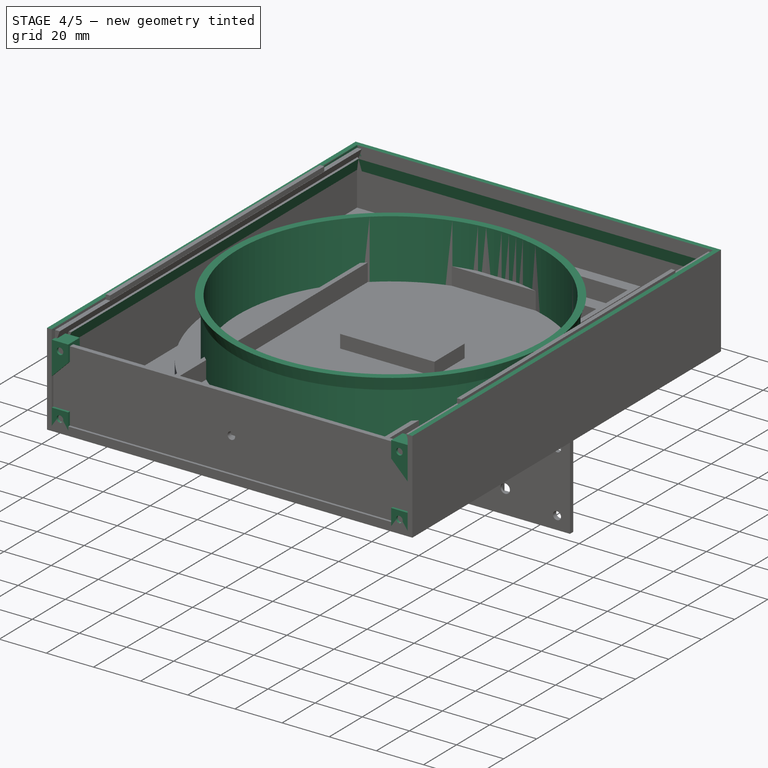
[diagram: stage 4 of 5 — iso view after this stage's code; geometry added in this stage tinted green]
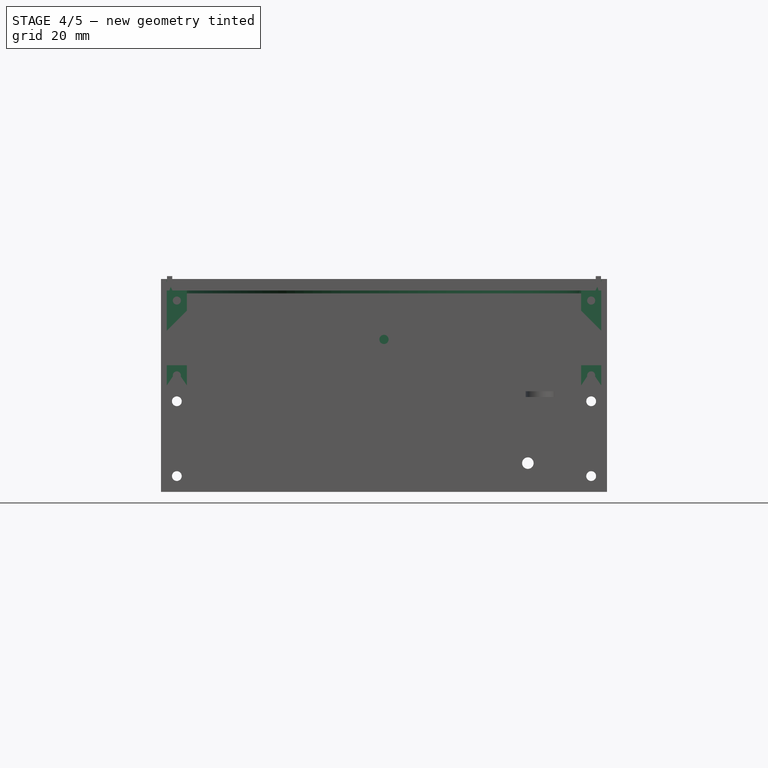
[diagram: stage 4 of 5 — front view after this stage's code; geometry added in this stage tinted green]
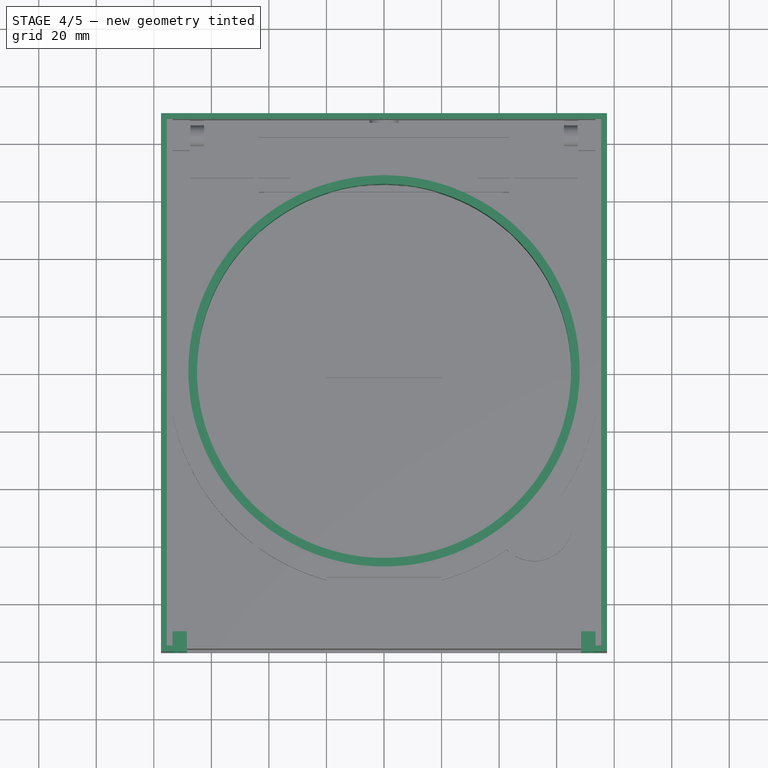
[diagram: stage 4 of 5 — top view after this stage's code; geometry added in this stage tinted green]
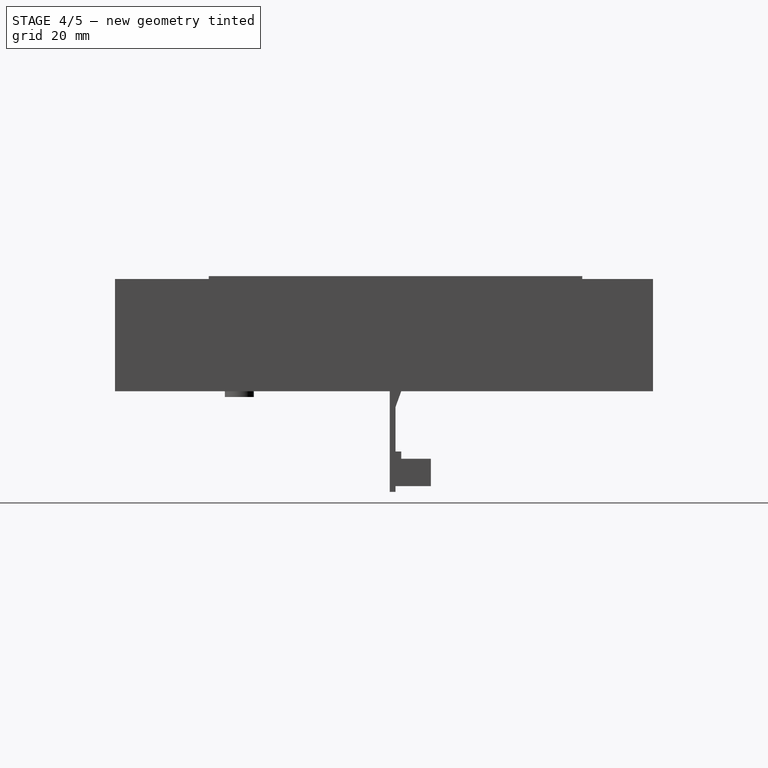
[diagram: stage 4 of 5 — right view after this stage's code; geometry added in this stage tinted green]
FEATURE [Sketcher::SketchObject] Sketch039
  FullyConstrained = true
  MapMode = 5
  Support = -> [XY_Plane004]
  expr: Constraints[18] = <<Masse_Grundkoerper>>.abstand_rand_achse_napf + <<Masse_Grundkoerper>>.laenge_achsaufnahme + <<Masse_Grundkoerper>>.innendurchmesser_napf / 2 + <<Masse_Grundkoerper>>.wandstaerke_koerper
  expr: Constraints[20] = <<Masse_Grundkoerper>>.innendurchmesser_napf
  expr: Constraints[8] = <<Masse_Grundkoerper>>.breite_koerper + <<Masse_Grundkoerper>>.wandstaerke_koerper * 2
  expr: Constraints[9] = <<Masse_Grundkoerper>>.laenge_koerper + <<Masse_Grundkoerper>>.wandstaerke_koerper
  sketch-geometry (8):
    g0: LineSegment StartX=-77.5 StartY=89.5 StartZ=0 EndX=77.5 EndY=89.5 EndZ=0
    g1: LineSegment StartX=77.5 StartY=89.5 StartZ=0 EndX=77.5 EndY=-97.5 EndZ=0
    g2: LineSegment StartX=77.5 StartY=-97.5 StartZ=0 EndX=-77.5 EndY=-97.5 EndZ=0
    g3: LineSegment StartX=-77.5 StartY=-97.5 StartZ=0 EndX=-77.5 EndY=89.5 EndZ=0
    g4: GeomPoint X=0 Y=89.5 Z=0
    g5: LineSegment StartX=-77.5 StartY=89.5 StartZ=0 EndX=0 EndY=89.5 EndZ=0
    g6: LineSegment StartX=0 StartY=89.5 StartZ=0 EndX=77.5 EndY=89.5 EndZ=0
    g7: Circle CenterX=0 CenterY=0 CenterZ=0 NormalX=0 NormalY=0 NormalZ=1 AngleXU=0 Radius=65
  constraints (21):
    c: Coincident(g0,g1)
    c: Coincident(g1,g2)
    c: Coincident(g2,g3)
    c: Coincident(g3,g0)
    c: Horizontal(g0)
    c: Horizontal(g2)
    c: Vertical(g1)
    c: Vertical(g3)
    c: DistanceX(g2,g2) = 155
    c: DistanceY(g1,g1) = 187
    c: PointOnObject(g4,g0)
    c: PointOnObject(g4,g-2)
    c: Coincident(g5,g0)
    c: Coincident(g6,g5)
    c: Coincident(g6,g0)
    c: PointOnObject(g5,g-2)
    c: Equal(g6,g5)
    c: Horizontal(g5)
    c: DistanceY(g-1,g4) = 89.5
    c: Coincident(g7,g-1)
    c: Diameter(g7) = 130
FEATURE [PartDesign::Pad] Pad004  label="Grundplatte Mittelstueck"
  Direction = (0,0,1)
  Length = 2
  Length2 = 10
  Profile = -> Sketch039
  ReferenceAxis = -> Sketch039 [N_Axis]
  Type = 0
  expr: Length = <<Masse_Grundkoerper>>.bodenstaerke_koerper
FEATURE [PartDesign::Plane] DatumPlane004
  AttachmentOffset = pos=(0,0,2) rot=(0,0,1;0rad)
  Length = 189.05
  MapMode = 5
  Placement = pos=(0,0,2) rot=(0,0,1;0rad)
  ResizeMode = 0
  Support = -> [XY_Plane004]
  Width = 221.05
  expr: .AttachmentOffset.Base.z = <<Masse_Grundkoerper>>.bodenstaerke_koerper
FEATURE [Sketcher::SketchObject] Sketch040
  FullyConstrained = true
  MapMode = 5
  Placement = pos=(0,0,2) rot=(0,0,1;0rad)
  Support = -> [DatumPlane004]
  expr: Constraints[10] = <<Masse_Grundkoerper>>.breite_koerper + <<Masse_Grundkoerper>>.wandstaerke_koerper * 2
  expr: Constraints[11] = <<Masse_Grundkoerper>>.laenge_koerper + <<Masse_Grundkoerper>>.wandstaerke_koerper
  expr: Constraints[23] = <<Masse_Grundkoerper>>.wandstaerke_koerper
  expr: Constraints[36] = <<Masse_Grundkoerper>>.abstand_rand_achse_napf + <<Masse_Grundkoerper>>.laenge_achsaufnahme + <<Masse_Grundkoerper>>.innendurchmesser_napf / 2 + <<Masse_Grundkoerper>>.wandstaerke_koerper
  sketch-geometry (13):
    g0: LineSegment StartX=-77.5 StartY=89.5 StartZ=0 EndX=77.5 EndY=89.5 EndZ=0
    g1: LineSegment StartX=77.5 StartY=89.5 StartZ=0 EndX=77.5 EndY=-97.5 EndZ=0
    g2: LineSegment StartX=-77.5 StartY=-97.5 StartZ=0 EndX=-77.5 EndY=89.5 EndZ=0
    g3: LineSegment StartX=-75.5 StartY=-97.5 StartZ=0 EndX=-75.5 EndY=87.5 EndZ=0
    g4: LineSegment StartX=-75.5 StartY=87.5 StartZ=0 EndX=75.5 EndY=87.5 EndZ=0
    g5: LineSegment StartX=75.5 StartY=87.5 StartZ=0 EndX=75.5 EndY=-97.5 EndZ=0
    g6: GeomPoint X=0 Y=89.5 Z=0
    g7: LineSegment StartX=-77.5 StartY=89.5 StartZ=0 EndX=0 EndY=89.5 EndZ=0
    g8: LineSegment StartX=0 StartY=89.5 StartZ=0 EndX=77.5 EndY=89.5 EndZ=0
    g9: LineSegment StartX=-75.5 StartY=87.5 StartZ=0 EndX=-77.5 EndY=87.5 EndZ=0
    g10: LineSegment StartX=-77.5 StartY=-97.5 StartZ=0 EndX=-75.5 EndY=-97.5 EndZ=0
    g11: LineSegment StartX=75.5 StartY=-97.5 StartZ=0 EndX=77.5 EndY=-97.5 EndZ=0
    g12: LineSegment StartX=-75.5 StartY=87.5 StartZ=0 EndX=-75.5 EndY=89.5 EndZ=0
  constraints (37):
    c: Coincident(g0,g1)
    c: Coincident(g2,g0)
    c: Horizontal(g0)
    c: Vertical(g1)
    c: Vertical(g2)
    c: Coincident(g3,g4)
    c: Coincident(g4,g5)
    c: Horizontal(g4)
    c: Vertical(g3)
    c: Vertical(g5)
    c: DistanceX(g0,g0) = 155
    c: DistanceY(g1,g1) = 187
    c: PointOnObject(g6,g0)
    c: PointOnObject(g6,g-2)
    c: Coincident(g7,g0)
    c: PointOnObject(g7,g-2)
    c: Coincident(g8,g0)
    c: Coincident(g7,g8)
    c: Horizontal(g8)
    c: Equal(g7,g8)
    c: Coincident(g9,g3)
    c: PointOnObject(g9,g2)
    c: Horizontal(g9)
    c: DistanceX(g9,g9) = 2
    c: Coincident(g10,g2)
    c: Coincident(g10,g3)
    c: Horizontal(g10)
    c: Coincident(g11,g5)
    c: Coincident(g11,g1)
    c: Horizontal(g11)
    c: Equal(g11,g10)
    c: Equal(g3,g5)
    c: Coincident(g12,g3)
    c: PointOnObject(g12,g0)
    c: Vertical(g12)
    c: Equal(g12,g9)
    c: DistanceY(g-1,g6) = 89.5
FEATURE [PartDesign::Pad] Pad005  label="Waende Mittelstueck"
  BaseFeature = -> Pad004
  Direction = (0,0,1)
  Length = 37
  Length2 = 10
  Profile = -> Sketch040
  ReferenceAxis = -> Sketch040 [N_Axis]
  Type = 0
  expr: Length = <<Masse_Grundkoerper>>.hoehe_koerper + <<Masse_Grundkoerper>>.deckenstaerke_koerper
FEATURE [Sketcher::SketchObject] Sketch041
  FullyConstrained = true
  MapMode = 5
  Placement = pos=(0,0,2) rot=(0,0,1;0rad)
  Support = -> [DatumPlane004]
  expr: Constraints[2] = <<Masse_Grundkoerper>>.innendurchmesser_napf
  expr: Constraints[3] = <<Masse_Grundkoerper>>.innendurchmesser_napf + <<Masse_Grundkoerper>>.wandstaerke_koerper
  sketch-geometry (2):
    g0: Circle CenterX=0 CenterY=0 CenterZ=0 NormalX=0 NormalY=0 NormalZ=1 AngleXU=0 Radius=65
    g1: Circle CenterX=0 CenterY=0 CenterZ=0 NormalX=0 NormalY=0 NormalZ=1 AngleXU=0 Radius=66
  constraints (4):
    c: Coincident(g0,g-1)
    c: Coincident(g1,g0)
    c: Diameter(g0) = 130
    c: Diameter(g1) = 132
FEATURE [PartDesign::Pad] Pad006  label="Napfumrandung Mittelstueck"
  BaseFeature = -> Pad005
  Direction = (0,0,1)
  Length = 33
  Length2 = 10
  Profile = -> Sketch041
  ReferenceAxis = -> Sketch041 [N_Axis]
  Type = 0
  expr: Length = <<Masse_Grundkoerper>>.hoehe_koerper
FEATURE [PartDesign::Plane] DatumPlane005
  AttachmentOffset = pos=(0,0,88.5) rot=(0,0,1;0rad)
  Length = 174.92
  MapMode = 5
  Placement = pos=(0,-88.5,-1.97e-14) rot=(1,0,0;1.5708rad)
  ResizeMode = 0
  Support = -> [XZ_Plane004]
  Width = 83.9198
  expr: .AttachmentOffset.Base.z = <<Masse_Grundkoerper>>.laenge_koerper - (<<Masse_Grundkoerper>>.abstand_rand_achse_napf + <<Masse_Grundkoerper>>.laenge_achsaufnahme + <<Masse_Grundkoerper>>.innendurchmesser_napf / 2 + <<Masse_Grundkoerper>>.wandstaerke_koerper + <<Masse_Grundkoerper>>.kante_bohrkoerper)
FEATURE [Sketcher::SketchObject] Sketch042
  FullyConstrained = true
  MapMode = 5
  Placement = pos=(0,-88.5,-1.97e-14) rot=(1,0,0;1.5708rad)
  Support = -> [DatumPlane005]
  expr: Constraints[10] = <<Masse_Grundkoerper>>.breite_koerper / 2
  expr: Constraints[11] = <<Masse_Grundkoerper>>.bodenstaerke_koerper + <<Masse_Grundkoerper>>.hoehe_koerper
  expr: Constraints[13] = <<Masse_Grundkoerper>>.winkel_auflage_koerper
  expr: Constraints[5] = <<Masse_Grundkoerper>>.wandstaerke_koerper
  sketch-geometry (5):
    g0: LineSegment StartX=75.5 StartY=29.505 StartZ=0 EndX=75.5 EndY=35 EndZ=0
    g1: LineSegment StartX=75.5 StartY=35 StartZ=0 EndX=73.5 EndY=35 EndZ=0
    g2: LineSegment StartX=73.5 StartY=35 StartZ=0 EndX=75.5 EndY=29.505 EndZ=0
    g3: LineSegment StartX=75.5 StartY=35 StartZ=0 EndX=75.5 EndY=0 EndZ=0
    g4: LineSegment StartX=0 StartY=0 StartZ=0 EndX=75.5 EndY=0 EndZ=0
  constraints (14):
    c: Vertical(g0)
    c: Coincident(g0,g1)
    c: Coincident(g1,g2)
    c: Coincident(g2,g0)
    c: Horizontal(g1)
    c: DistanceX(g1,g1) = 2
    c: Coincident(g3,g0)
    c: PointOnObject(g3,g-1)
    c: Vertical(g3)
    c: Coincident(g4,g3)
    c: DistanceX(g4,g4) = 75.5
    c: DistanceY(g3,g3) = 35
    c: Coincident(g4,g-1)
    c: Angle(g0,g2) = 0.349066
FEATURE [PartDesign::Pad] Pad007  label="Auflage Lange Seite"
  BaseFeature = -> Pad006
  Direction = (0,-1,-2e-16)
  Length = 176
  Length2 = 10
  Profile = -> Sketch042
  ReferenceAxis = -> Sketch042 [N_Axis]
  Reversed = true
  Type = 0
  expr: Length = <<Masse_Grundkoerper>>.laenge_koerper - <<Masse_Grundkoerper>>.wandstaerke_koerper - <<Masse_Grundkoerper>>.kante_bohrkoerper
FEATURE [PartDesign::Mirrored] Mirrored004  label="Auflage Lange Seite Spiegel"
  BaseFeature = -> Pad007
  MirrorPlane = -> YZ_Plane004
  Originals = -> [Pad007]
FEATURE [PartDesign::Revolution] Revolution  label="Auflage Napfumrandung"
  Angle = 360
  Axis = (0,-2e-16,1)
  Base = (0,0,0)
  BaseFeature = -> Mirrored004
  Profile = -> Sketch047
  ReferenceAxis = -> Sketch047 [V_Axis]
  Reversed = true
FEATURE [PartDesign::Pad] Pad012  label="Auflage kurze Seite"
  BaseFeature = -> Revolution
  Direction = (1,-2e-16,3e-16)
  Length = 73.5
  Length2 = 73.5
  Profile = -> Sketch048
  ReferenceAxis = -> Sketch048 [N_Axis]
  Type = 4
  expr: Length = <<Masse_Grundkoerper>>.breite_koerper / 2 - <<Masse_Grundkoerper>>.wandstaerke_koerper
  expr: Length2 = <<Masse_Grundkoerper>>.breite_koerper / 2 - <<Masse_Grundkoerper>>.wandstaerke_koerper
FEATURE [Sketcher::SketchObject] Sketch054
  FullyConstrained = true
  MapMode = 5
  Support = -> [XY_Plane004]
  expr: Constraints[21] = <<Masse_Grundkoerper>>.wandstaerke_koerper
  expr: Constraints[3] = <<Masse_Grundkoerper>>.innendurchmesser_napf / 2
  expr: Constraints[4] = <<Masse_Grundkoerper>>.breite_koerper / 2 - <<Masse_Grundkoerper>>.wandstaerke_koerper
  sketch-geometry (8):
    g0: LineSegment StartX=0 StartY=0 StartZ=0 EndX=0 EndY=-65 EndZ=0
    g1: LineSegment StartX=0 StartY=-65 StartZ=0 EndX=73.5 EndY=-65 EndZ=0
    g2: LineSegment StartX=0 StartY=0 StartZ=0 EndX=0 EndY=65 EndZ=0
    g3: LineSegment StartX=0 StartY=65 StartZ=0 EndX=73.5 EndY=65 EndZ=0
    g4: LineSegment StartX=73.5 StartY=-65 StartZ=0 EndX=75.5 EndY=-65 EndZ=0
    g5: LineSegment StartX=75.5 StartY=-65 StartZ=0 EndX=75.5 EndY=65 EndZ=0
    g6: LineSegment StartX=75.5 StartY=65 StartZ=0 EndX=73.5 EndY=65 EndZ=0
    g7: LineSegment StartX=73.5 StartY=65 StartZ=0 EndX=73.5 EndY=-65 EndZ=0
  constraints (22):
    c: Coincident(g1,g0)
    c: Horizontal(g1)
    c: PointOnObject(g0,g-2)
    c: DistanceY(g0,g0) = 65
    c: DistanceX(g1,g1) = 73.5
    c: Coincident(g0,g-1)
    c: Coincident(g0,g2)
    c: PointOnObject(g2,g-2)
    c: Coincident(g2,g3)
    c: Horizontal(g3)
    c: Equal(g2,g0)
    c: Equal(g3,g1)
    c: Coincident(g4,g5)
    c: Coincident(g5,g6)
    c: Coincident(g6,g7)
    c: Coincident(g7,g4)
    c: Horizontal(g4)
    c: Horizontal(g6)
    c: Vertical(g5)
    c: Coincident(g4,g1)
    c: Coincident(g6,g3)
    c: DistanceX(g6,g6) = 2
FEATURE [PartDesign::Pocket] Pocket013  label="Loch Verbinder"
  BaseFeature = -> Pad012
  Direction = (0,0,-1)
  Length = 2
  Length2 = 5
  Profile = -> Sketch054
  ReferenceAxis = -> Sketch054 [N_Axis]
  Reversed = true
  Type = 0
  expr: Length = <<Masse_Grundkoerper>>.wandstaerke_koerper
FEATURE [PartDesign::Mirrored] Mirrored007  label="Loch Verbinder Spiegel"
  BaseFeature = -> Pocket013
  MirrorPlane = -> Sketch054 [V_Axis]
  Originals = -> [Pocket013]
FEATURE [PartDesign::Body] Body008  label="Schubladengriff"
  Group = -> [Sketch060,Revolution001,Sketch061,DatumPlane015,Sketch062,Hole001]
  Origin = -> Origin008
  Placement = pos=(0,-172,-53.5) rot=(0,0,1;0rad)
  Tip = -> Hole001
FEATURE [Sketcher::SketchObject] Sketch063
  FullyConstrained = true
  MapMode = 5
  Placement = pos=(0,0,3.6) rot=(0,0,1;0rad)
  Support = -> [DatumPlane012]
  expr: Constraints[10] = <<Masse_Grundkoerper>>.laenge_achsaufnahme + <<Masse_Grundkoerper>>.vorspannung_feder
  expr: Constraints[11] = <<Masse_Grundkoerper>>.staerke_achsaufnahme + <<Masse_Grundkoerper>>.federdraht_durchmesser_deckel
  expr: Constraints[13] = <<Masse_Grundkoerper>>.federdraht_durchmesser_deckel
  expr: Constraints[4] = <<Masse_Grundkoerper>>.abstand_rand_achse_napf + <<Masse_Grundkoerper>>.laenge_achsaufnahme + <<Masse_Grundkoerper>>.innendurchmesser_napf / 2
  expr: Constraints[5] = <<Masse_Grundkoerper>>.breite_koerper / 2
  sketch-geometry (5):
    g0: LineSegment StartX=0 StartY=-1e-16 StartZ=0 EndX=0 EndY=87.5 EndZ=0
    g1: LineSegment StartX=0 StartY=87.5 StartZ=0 EndX=75.5 EndY=87.5 EndZ=0
    g2: LineSegment StartX=75.5 StartY=87.5 StartZ=0 EndX=75.5 EndY=75 EndZ=0
    g3: LineSegment StartX=75.5 StartY=75 StartZ=0 EndX=65.5 EndY=75 EndZ=0
    g4: Circle CenterX=65.5 CenterY=75 CenterZ=0 NormalX=0 NormalY=0 NormalZ=1 AngleXU=0 Radius=1
  constraints (14):
    c: Coincident(g-1,g0)
    c: PointOnObject(g0,g-2)
    c: Coincident(g0,g1)
    c: Horizontal(g1)
    c: DistanceY(g0,g0) = 87.5
    c: DistanceX(g1,g1) = 75.5
    c: Coincident(g1,g2)
    c: Vertical(g2)
    c: Coincident(g2,g3)
    c: Horizontal(g3)
    c: DistanceY(g2,g2) = 12.5
    c: DistanceX(g3,g3) = 10
    c: Coincident(g4,g3)
    c: Diameter(g4) = 2
FEATURE [Sketcher::SketchObject] Sketch064
  FullyConstrained = true
  MapMode = 5
  Support = -> [XY_Plane002]
  expr: Constraints[10] = <<Masse_Grundkoerper>>.laenge_achsaufnahme + <<Masse_Grundkoerper>>.vorspannung_feder + <<Masse_Grundkoerper>>.vorspannung_feder
  expr: Constraints[11] = <<Masse_Grundkoerper>>.staerke_achsaufnahme + <<Masse_Grundkoerper>>.federdraht_durchmesser_deckel
  expr: Constraints[13] = <<Masse_Grundkoerper>>.federdraht_durchmesser_deckel
  expr: Constraints[8] = <<Masse_Grundkoerper>>.abstand_rand_achse_napf + <<Masse_Grundkoerper>>.laenge_achsaufnahme + <<Masse_Grundkoerper>>.innendurchmesser_napf / 2
  expr: Constraints[9] = <<Masse_Grundkoerper>>.breite_koerper / 2
  sketch-geometry (5):
    g0: LineSegment StartX=0 StartY=0 StartZ=0 EndX=0 EndY=87.5 EndZ=0
    g1: LineSegment StartX=0 StartY=87.5 StartZ=0 EndX=75.5 EndY=87.5 EndZ=0
    g2: LineSegment StartX=75.5 StartY=87.5 StartZ=0 EndX=75.5 EndY=73 EndZ=0
    g3: LineSegment StartX=75.5 StartY=73 StartZ=0 EndX=65.5 EndY=73 EndZ=0
    g4: Circle CenterX=65.5 CenterY=73 CenterZ=0 NormalX=0 NormalY=0 NormalZ=1 AngleXU=0 Radius=1
  constraints (14):
    c: Coincident(g-1,g0)
    c: PointOnObject(g0,g-2)
    c: Coincident(g0,g1)
    c: Horizontal(g1)
    c: Coincident(g1,g2)
    c: Vertical(g2)
    c: Coincident(g2,g3)
    c: Horizontal(g3)
    c: DistanceY(g0,g0) = 87.5
    c: DistanceX(g1,g1) = 75.5
    c: DistanceY(g2,g2) = 14.5
    c: DistanceX(g3,g3) = 10
    c: Coincident(g4,g3)
    c: Diameter(g4) = 2
FEATURE [PartDesign::SubtractiveLoft] SubtractiveLoft
  BaseFeature = -> Mirrored001
  Closed = false
  Profile = -> Sketch063
  Ruled = false
  Sections = -> [Sketch064]
FEATURE [PartDesign::Plane] DatumPlane016
  AttachmentOffset = pos=(0,0,-89.5) rot=(0,0,1;0rad)
  Length = 174.92
  MapMode = 5
  Placement = pos=(0,89.5,1.99e-14) rot=(1,0,0;1.5708rad)
  ResizeMode = 0
  Support = -> [XZ_Plane004]
  Width = 83.9198
  expr: .AttachmentOffset.Base.z = -(<<Masse_Grundkoerper>>.abstand_rand_achse_napf + <<Masse_Grundkoerper>>.laenge_achsaufnahme + <<Masse_Grundkoerper>>.innendurchmesser_napf / 2 + <<Masse_Grundkoerper>>.wandstaerke_koerper)
FEATURE [Sketcher::SketchObject] Sketch067
  FullyConstrained = true
  MapMode = 5
  Placement = pos=(0,89.5,1.99e-14) rot=(1,0,0;1.5708rad)
  Support = -> [DatumPlane016]
  expr: Constraints[5] = <<Masse_Grundkoerper>>.breite_koerper / 4
  expr: Constraints[6] = <<Masse_Grundkoerper>>.hoehe_koerper / 2 + <<Masse_Grundkoerper>>.bodenstaerke_koerper
  expr: Constraints[7] = <<Masse_Grundkoerper>>.durchmesser_kabeloeffnung
  sketch-geometry (3):
    g0: LineSegment StartX=0 StartY=0 StartZ=0 EndX=37.75 EndY=0 EndZ=0
    g1: LineSegment StartX=37.75 StartY=0 StartZ=0 EndX=37.75 EndY=18.5 EndZ=0
    g2: Circle CenterX=37.75 CenterY=18.5 CenterZ=0 NormalX=0 NormalY=0 NormalZ=1 AngleXU=0 Radius=10
  constraints (8):
    c: Coincident(g0,g-1)
    c: PointOnObject(g0,g-1)
    c: Coincident(g1,g0)
    c: Vertical(g1)
    c: Coincident(g2,g1)
    c: DistanceX(g0,g0) = 37.75
    c: DistanceY(g1,g1) = 18.5
    c: Diameter(g2) = 20
FEATURE [PartDesign::Pocket] Pocket015
  BaseFeature = -> Mirrored007
  Direction = (0,1,2e-16)
  Length = 2
  Length2 = 5
  Profile = -> Sketch067
  ReferenceAxis = -> Sketch067 [N_Axis]
  Reversed = true
  Type = 0
  expr: Length = <<Masse_Grundkoerper>>.wandstaerke_koerper
FEATURE [PartDesign::Plane] DatumPlane017
  AttachmentOffset = pos=(0,0,97.5) rot=(0,0,1;0rad)
  Length = 174.92
  MapMode = 5
  Placement = pos=(0,-97.5,-2.16e-14) rot=(1,0,0;1.5708rad)
  ResizeMode = 0
  Support = -> [XZ_Plane004]
  Width = 83.9198
  expr: .AttachmentOffset.Base.z = <<Masse_Grundkoerper>>.laenge_koerper - (<<Masse_Grundkoerper>>.abstand_rand_achse_napf + <<Masse_Grundkoerper>>.laenge_achsaufnahme + <<Masse_Grundkoerper>>.innendurchmesser_napf / 2)
FEATURE [Sketcher::SketchObject] Sketch068
  FullyConstrained = true
  MapMode = 5
  Placement = pos=(0,-97.5,-2.16e-14) rot=(1,0,0;1.5708rad)
  Support = -> [DatumPlane017]
  expr: Constraints[22] = <<Masse_Grundkoerper>>.kante_bohrkoerper
  expr: Constraints[23] = <<Masse_Grundkoerper>>.kante_bohrkoerper
  expr: Constraints[26] = <<Masse_Grundkoerper>>.winkel_bohrkoerper
  expr: Constraints[27] = <<Masse_Grundkoerper>>.kante_bohrkoerper
  expr: Constraints[30] = <<Masse_Grundkoerper>>.hoehe_koerper
  expr: Constraints[39] = <<Masse_Grundkoerper>>.durchmesser_achse
  expr: Constraints[4] = <<Masse_Grundkoerper>>.bodenstaerke_koerper
  expr: Constraints[5] = <<Masse_Grundkoerper>>.breite_koerper / 2
  sketch-geometry (19):
    g0: LineSegment StartX=-75.5 StartY=2 StartZ=0 EndX=0 EndY=2 EndZ=0
    g1: LineSegment StartX=0 StartY=2 StartZ=0 EndX=0 EndY=0 EndZ=0
    g2: LineSegment StartX=-75.5 StartY=2 StartZ=0 EndX=-68.5 EndY=2 EndZ=0
    g3: LineSegment StartX=-68.5 StartY=2 StartZ=0 EndX=-68.5 EndY=9 EndZ=0
    g4: LineSegment StartX=-68.5 StartY=9 StartZ=0 EndX=-75.5 EndY=9 EndZ=0
    g5: LineSegment StartX=-75.5 StartY=9 StartZ=0 EndX=-75.5 EndY=2 EndZ=0
    g6: LineSegment StartX=-68.5 StartY=28 StartZ=0 EndX=-68.5 EndY=35 EndZ=0
    g7: LineSegment StartX=-68.5 StartY=35 StartZ=0 EndX=-75.5 EndY=35 EndZ=0
    g8: LineSegment StartX=-75.5 StartY=35 StartZ=0 EndX=-75.5 EndY=21 EndZ=0
    g9: LineSegment StartX=-75.5 StartY=35 StartZ=0 EndX=-75.5 EndY=2 EndZ=0
    g10: LineSegment StartX=-75.5 StartY=21 StartZ=0 EndX=-68.5 EndY=28 EndZ=0
    g11: Circle CenterX=-72 CenterY=5.5 CenterZ=0 NormalX=0 NormalY=0 NormalZ=1 AngleXU=0 Radius=1.4
    g12: LineSegment StartX=-72 StartY=5.5 StartZ=0 EndX=-75.5 EndY=9 EndZ=0
    g13: LineSegment StartX=-72 StartY=5.5 StartZ=0 EndX=-68.5 EndY=9 EndZ=0
    g14: LineSegment StartX=-72 StartY=5.5 StartZ=0 EndX=-68.5 EndY=2 EndZ=0
    g15: Circle CenterX=-72 CenterY=31.5 CenterZ=0 NormalX=0 NormalY=0 NormalZ=1 AngleXU=0 Radius=1.4
    g16: LineSegment StartX=-75.5 StartY=35 StartZ=0 EndX=-72 EndY=31.5 EndZ=0
    g17: LineSegment StartX=-72 StartY=31.5 StartZ=0 EndX=-68.5 EndY=28 EndZ=0
    g18: LineSegment StartX=-72 StartY=31.5 StartZ=0 EndX=-68.5 EndY=35 EndZ=0
  constraints (49):
    c: PointOnObject(g0,g-2)
    c: Horizontal(g0)
    c: Coincident(g0,g1)
    c: Coincident(g1,g-1)
    c: DistanceY(g1,g1) = 2
    c: DistanceX(g0,g0) = 75.5
    c: Coincident(g2,g3)
    c: Coincident(g3,g4)
    c: Coincident(g4,g5)
    c: Coincident(g5,g2)
    c: Horizontal(g2)
    c: Horizontal(g4)
    c: Vertical(g3)
    c: Vertical(g5)
    c: Coincident(g2,g0)
    c: Coincident(g6,g7)
    c: Coincident(g7,g8)
    c: Horizontal(g7)
    c: Vertical(g6)
    c: Vertical(g8)
    c: Vertical(g9)
    c: Equal(g3,g4)
    c: DistanceX(g4,g4) = 7
    c: DistanceX(g7,g7) = 7
    c: Coincident(g9,g7)
    c: Coincident(g10,g6)
    c: Angle(g10,g8) = 0.785398
    c: DistanceY(g6,g6) = 7
    c: Coincident(g8,g10)
    c: Coincident(g9,g2)
    c: DistanceY(g9,g9) = 33
    c: Coincident(g12,g11)
    c: Coincident(g12,g4)
    c: Coincident(g13,g11)
    c: Coincident(g13,g3)
    c: Coincident(g14,g11)
    c: Coincident(g14,g2)
    c: Equal(g14,g13)
    c: Equal(g13,g12)
    c: Diameter(g11) = 2.8
    c: Coincident(g16,g7)
    c: Coincident(g16,g15)
    c: Coincident(g17,g6)
    c: Coincident(g18,g15)
    c: Coincident(g18,g6)
    c: Equal(g18,g16)
    c: Equal(g16,g17)
    c: Coincident(g17,g15)
    c: Equal(g11,g15)
FEATURE [PartDesign::Pad] Pad022
  BaseFeature = -> Pocket015
  Direction = (0,-1,-2e-16)
  Length = 7
  Length2 = 10
  Profile = -> Sketch068
  ReferenceAxis = -> Sketch068 [N_Axis]
  Reversed = true
  Type = 0
  expr: Length = <<Masse_Grundkoerper>>.kante_bohrkoerper
FEATURE [PartDesign::Mirrored] Mirrored009
  BaseFeature = -> Pad022
  MirrorPlane = -> Sketch068 [V_Axis]
  Originals = -> [Pad022]
FEATURE [Sketcher::SketchObject] Sketch078
  FullyConstrained = true
  MapMode = 5
  Support = -> [XY_Plane002]
  expr: Constraints[13] = <<Masse_Grundkoerper>>.laenge_hall_sensor
  expr: Constraints[14] = <<Masse_Grundkoerper>>.breite_hall_sensor
  expr: Constraints[1] = <<Masse_Grundkoerper>>.aussendurchmesser_napf / 2 + <<Masse_Grundkoerper>>.breite_finger / 4
  sketch-geometry (6):
    g0: LineSegment StartX=0 StartY=0 StartZ=0 EndX=54.2704 EndY=-54.2704 EndZ=0
    g1: LineSegment StartX=52.2204 StartY=-55.9204 StartZ=0 EndX=52.2204 EndY=-52.6204 EndZ=0
    g2: LineSegment StartX=52.2204 StartY=-52.6204 StartZ=0 EndX=56.3204 EndY=-52.6204 EndZ=0
    g3: LineSegment StartX=56.3204 StartY=-52.6204 StartZ=0 EndX=56.3204 EndY=-55.9204 EndZ=0
    g4: LineSegment StartX=56.3204 StartY=-55.9204 StartZ=0 EndX=52.2204 EndY=-55.9204 EndZ=0
    g5: GeomPoint X=54.2704 Y=-54.2704 Z=0
  constraints (15):
    c: Coincident(g0,g-1)
    c: Distance(g0) = 76.75
    c: Angle(g0,g-1) = 0.785398
    c: Coincident(g1,g2)
    c: Coincident(g2,g3)
    c: Coincident(g3,g4)
    c: Coincident(g4,g1)
    c: Horizontal(g2)
    c: Horizontal(g4)
    c: Vertical(g1)
    c: Vertical(g3)
    c: Symmetric(g2,g1,g5)
    c: Coincident(g5,g0)
    c: DistanceY(g3,g3) = 3.3
    c: DistanceX(g2,g2) = 4.1
FEATURE [PartDesign::Pocket] Pocket022
  BaseFeature = -> SubtractiveLoft
  Direction = (0,0,-1)
  Length = 1
  Length2 = 5
  Profile = -> Sketch078
  ReferenceAxis = -> Sketch078 [N_Axis]
  Reversed = true
  Type = 0
  expr: Length = <<Masse_Grundkoerper>>.tiefe_hall_sensor
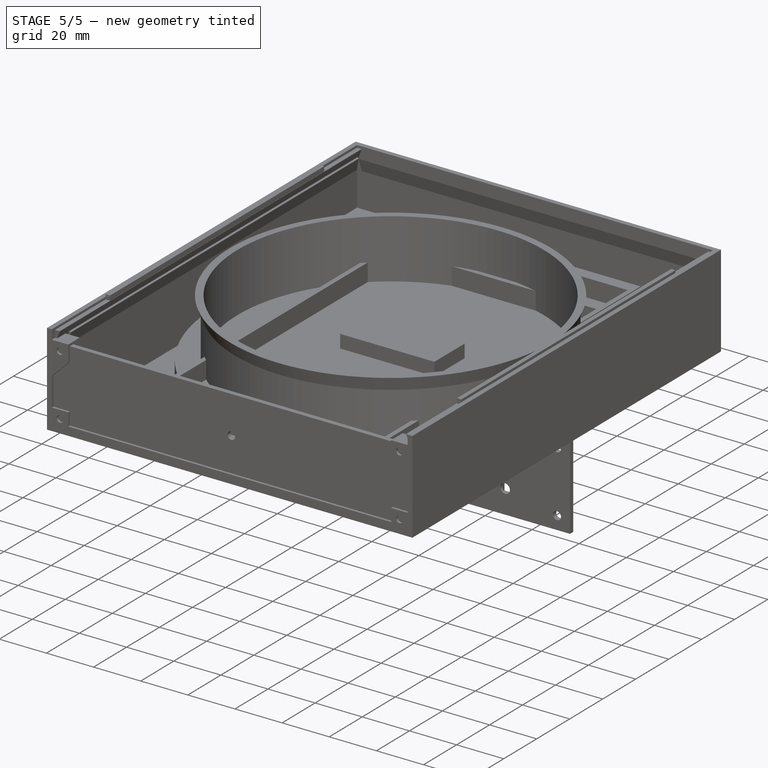
[diagram: stage 5 of 5 — iso view after this stage's code; geometry added in this stage tinted green]
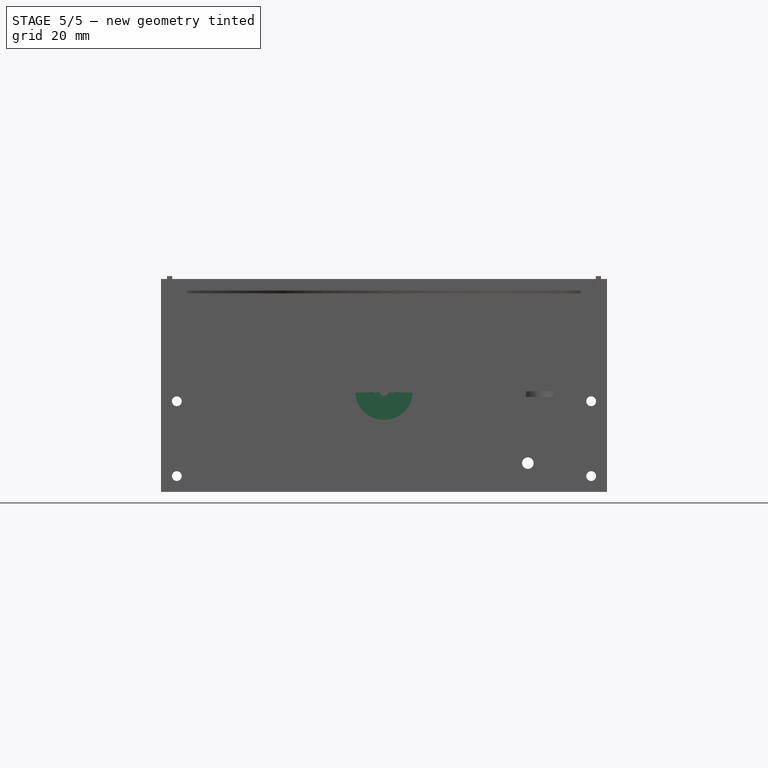
[diagram: stage 5 of 5 — front view after this stage's code; geometry added in this stage tinted green]
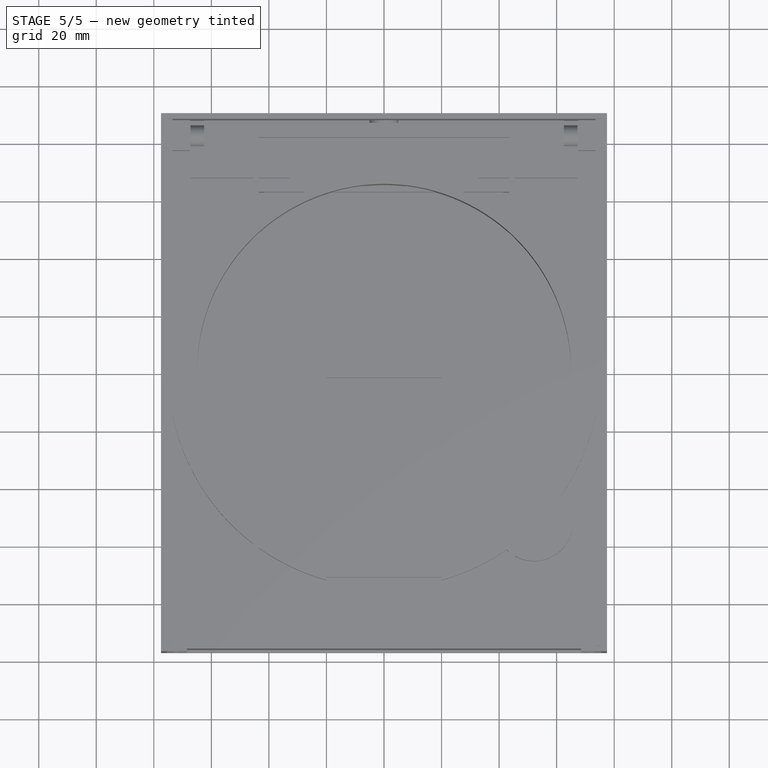
[diagram: stage 5 of 5 — top view after this stage's code; geometry added in this stage tinted green]
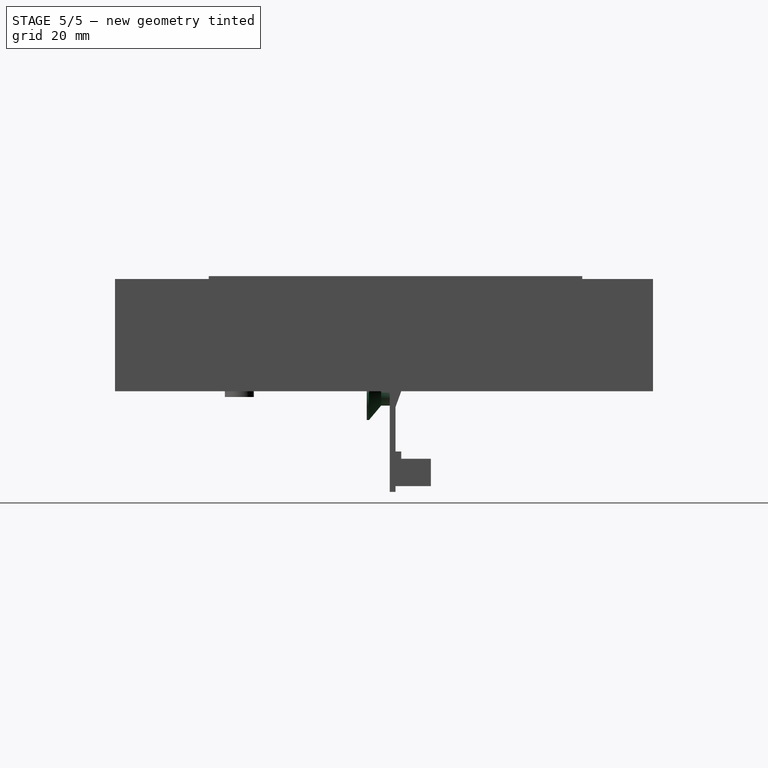
[diagram: stage 5 of 5 — right view after this stage's code; geometry added in this stage tinted green]
FEATURE [Sketcher::SketchObject] Sketch029
  FullyConstrained = true
  MapMode = 5
  Placement = pos=(67.5,-1.5e-14,1.5e-14) rot=(0.57735,0.57735,0.57735;2.0944rad)
  Support = -> [DatumPlane]
  expr: Constraints[3] = <<Masse_Grundkoerper>>.staerke_deckel / 2
  expr: Constraints[5] = <<Masse_Grundkoerper>>.durchmesser_achse
  expr: Constraints[7] = <<Masse_Grundkoerper>>.innendurchmesser_napf / 2 + <<Masse_Grundkoerper>>.abstand_rand_achse_napf + <<Masse_Grundkoerper>>.laenge_achsaufnahme / 2
  sketch-geometry (3):
    g0: LineSegment StartX=0 StartY=0 StartZ=0 EndX=82.25 EndY=0 EndZ=0
    g1: LineSegment StartX=82.25 StartY=0 StartZ=0 EndX=82.25 EndY=5 EndZ=0
    g2: Circle CenterX=82.25 CenterY=5 CenterZ=0 NormalX=0 NormalY=0 NormalZ=1 AngleXU=0 Radius=1.4
  constraints (8):
    c: Coincident(g0,g-1)
    c: PointOnObject(g0,g-1)
    c: Coincident(g1,g0)
    c: DistanceY(g1,g1) = 5
    c: Coincident(g2,g1)
    c: Diameter(g2) = 2.8
    c: Angle(g1,g0) = 1.5708
    c: DistanceX(g0,g0) = 82.25
FEATURE [Sketcher::SketchObject] Sketch033
  FullyConstrained = true
  MapMode = 5
  Placement = pos=(67.5,-1.5e-14,1.5e-14) rot=(0.57735,0.57735,0.57735;2.0944rad)
  Support = -> [DatumPlane]
  expr: Constraints[12] = <<Masse_Grundkoerper>>.laenge_achsaufnahme / 2
  expr: Constraints[8] = <<Masse_Grundkoerper>>.innendurchmesser_napf / 2 + <<Masse_Grundkoerper>>.abstand_rand_achse_napf + <<Masse_Grundkoerper>>.laenge_achsaufnahme
  sketch-geometry (5):
    g0: LineSegment StartX=82.25 StartY=0 StartZ=0 EndX=87.5 EndY=0 EndZ=0
    g1: LineSegment StartX=87.5 StartY=0 StartZ=0 EndX=87.5 EndY=5.25 EndZ=0
    g2: ArcOfCircle CenterX=82.25 CenterY=5.25 CenterZ=0 NormalX=0 NormalY=0 NormalZ=1 AngleXU=0 Radius=5.25 StartAngle=4.71239 EndAngle=6.28319
    g3: LineSegment StartX=0 StartY=0 StartZ=0 EndX=87.5 EndY=0 EndZ=0
    g4: LineSegment StartX=82.25 StartY=0 StartZ=0 EndX=82.25 EndY=5.25 EndZ=0
  constraints (14):
    c: PointOnObject(g0,g-1)
    c: PointOnObject(g0,g-1)
    c: Coincident(g2,g1)
    c: Coincident(g2,g0)
    c: Coincident(g1,g0)
    c: Vertical(g1)
    c: Coincident(g3,g-1)
    c: Coincident(g3,g0)
    c: DistanceX(g3,g3) = 87.5
    c: Coincident(g4,g0)
    c: Coincident(g4,g2)
    c: Angle(g4,g3) = 1.5708
    c: DistanceY(g4,g4) = 5.25
    c: Equal(g1,g0)
FEATURE [Sketcher::SketchObject] Sketch034
  FullyConstrained = true
  MapMode = 5
  Support = -> [XY_Plane]
  expr: Constraints[12] = <<Masse_Grundkoerper>>.breite_feder_deckel
  expr: Constraints[13] = <<Masse_Grundkoerper>>.staerke_achse_deckel - <<Masse_Grundkoerper>>.durchmesser_feder_aussen_achse / 2 - <<Masse_Grundkoerper>>.laenge_achsaufnahme / 2
  expr: Constraints[14] = <<Masse_Grundkoerper>>.innendurchmesser_napf / 2 + <<Masse_Grundkoerper>>.abstand_rand_achse_napf + <<Masse_Grundkoerper>>.laenge_achsaufnahme - <<Masse_Grundkoerper>>.staerke_achse_deckel
  expr: Constraints[15] = (<<Masse_Grundkoerper>>.breite_koerper - <<Masse_Grundkoerper>>.staerke_achsaufnahme * 2 - <<Masse_Grundkoerper>>.tolleranz_achse_deckel) / 2
  sketch-geometry (6):
    g0: LineSegment StartX=0 StartY=0 StartZ=0 EndX=67.25 EndY=0 EndZ=0
    g1: LineSegment StartX=67.25 StartY=0 StartZ=0 EndX=67.25 EndY=67.5 EndZ=0
    g2: LineSegment StartX=67.25 StartY=67.5 StartZ=0 EndX=62.25 EndY=67.5 EndZ=0
    g3: LineSegment StartX=62.25 StartY=67.5 StartZ=0 EndX=62.25 EndY=76.25 EndZ=0
    g4: LineSegment StartX=62.25 StartY=76.25 StartZ=0 EndX=67.25 EndY=76.25 EndZ=0
    g5: LineSegment StartX=67.25 StartY=76.25 StartZ=0 EndX=67.25 EndY=67.5 EndZ=0
  constraints (17):
    c: PointOnObject(g0,g-1)
    c: Coincident(g1,g0)
    c: Angle(g1,g0) = 1.5708
    c: Coincident(g2,g3)
    c: Coincident(g3,g4)
    c: Coincident(g4,g5)
    c: Coincident(g5,g2)
    c: Horizontal(g2)
    c: Horizontal(g4)
    c: Vertical(g3)
    c: Vertical(g5)
    c: Coincident(g2,g1)
    c: DistanceX(g4,g4) = 5
    c: DistanceY(g5,g5) = 8.75
    c: DistanceY(g1,g1) = 67.5
    c: DistanceX(g0,g0) = 67.25
    c: Coincident(g0,g-1)
FEATURE [PartDesign::Plane] DatumPlane002
  AttachmentOffset = pos=(0,0,4) rot=(0,0,1;0rad)
  Length = 184.428
  MapMode = 5
  Placement = pos=(0,0,4) rot=(0,0,1;0rad)
  ResizeMode = 0
  Support = -> [XY_Plane002]
  Width = 218.428
  expr: .AttachmentOffset.Base.z = <<Masse_Grundkoerper>>.deckenstaerke_koerper
FEATURE [Sketcher::SketchObject] Sketch023
  FullyConstrained = true
  MapMode = 5
  Placement = pos=(0,0,4) rot=(0,0,1;0rad)
  Support = -> [DatumPlane002]
  expr: Constraints[1] = <<Masse_Grundkoerper>>.innendurchmesser_napf
  expr: Constraints[3] = <<Masse_Grundkoerper>>.aussendurchmesser_napf
  sketch-geometry (2):
    g0: Circle CenterX=0 CenterY=0 CenterZ=0 NormalX=0 NormalY=0 NormalZ=1 AngleXU=0 Radius=65
    g1: Circle CenterX=0 CenterY=0 CenterZ=0 NormalX=0 NormalY=0 NormalZ=1 AngleXU=0 Radius=70.5
  constraints (4):
    c: Coincident(g0,g-1)
    c: Diameter(g0) = 130
    c: Coincident(g1,g0)
    c: Diameter(g1) = 141
FEATURE [Sketcher::SketchObject] Sketch035
  FullyConstrained = true
  MapMode = 5
  Placement = pos=(0,0,4) rot=(0,0,1;0rad)
  Support = -> [DatumPlane002]
  expr: Constraints[2] = <<Masse_Grundkoerper>>.aussendurchmesser_napf / 2
  expr: Constraints[7] = <<Masse_Grundkoerper>>.breite_finger
  sketch-geometry (4):
    g0: LineSegment StartX=0 StartY=0 StartZ=0 EndX=49.851 EndY=-49.851 EndZ=0
    g1: ArcOfCircle CenterX=49.851 CenterY=-49.851 CenterZ=0 NormalX=0 NormalY=0 NormalZ=1 AngleXU=0 Radius=12.5 StartAngle=3.83822 EndAngle=7.15735
    g2: ArcOfCircle CenterX=0 CenterY=0 CenterZ=0 NormalX=0 NormalY=0 NormalZ=1 AngleXU=0 Radius=70.5 StartAngle=5.32025 EndAngle=5.67533
    g3: LineSegment StartX=0 StartY=0 StartZ=0 EndX=57.8715 EndY=-40.2634 EndZ=0
  constraints (11):
    c: Coincident(g0,g-1)
    c: Angle(g0,g-1) = 0.785398
    c: Distance(g0) = 70.5
    c: Coincident(g1,g0)
    c: Coincident(g2,g0)
    c: Coincident(g1,g2)
    c: Coincident(g1,g2)
    c: Diameter(g1) = 25
    c: Coincident(g3,g2)
    c: Coincident(g3,g1)
    c: Equal(g3,g0)
FEATURE [Sketcher::SketchObject] Sketch036
  FullyConstrained = true
  MapMode = 5
  Support = -> [XY_Plane003]
  expr: Constraints[10] = <<Masse_Grundkoerper>>.versenkung_verschluss_deckel
  expr: Constraints[12] = <<Masse_Grundkoerper>>.breite_verschluss
  expr: Constraints[1] = <<Masse_Grundkoerper>>.rundung_radius_verschluss
  sketch-geometry (7):
    g0: ArcOfCircle CenterX=-3.2e-15 CenterY=20 CenterZ=0 NormalX=0 NormalY=0 NormalZ=1 AngleXU=0 Radius=29 StartAngle=3.95138 EndAngle=5.4734
    g1: LineSegment StartX=-3.2e-15 StartY=20 StartZ=0 EndX=0 EndY=0 EndZ=0
    g2: LineSegment StartX=-20 StartY=-1 StartZ=0 EndX=-20 EndY=0 EndZ=0
    g3: LineSegment StartX=-20 StartY=0 StartZ=0 EndX=20 EndY=0 EndZ=0
    g4: LineSegment StartX=20 StartY=0 StartZ=0 EndX=20 EndY=-1 EndZ=0
    g5: LineSegment StartX=-20 StartY=0 StartZ=0 EndX=0 EndY=0 EndZ=0
    g6: LineSegment StartX=0 StartY=0 StartZ=0 EndX=20 EndY=0 EndZ=0
  constraints (19):
    c: Coincident(g1,g0)
    c: DistanceY(g1,g1) = 20
    c: Coincident(g0,g2)
    c: PointOnObject(g2,g-1)
    c: Vertical(g2)
    c: Coincident(g2,g3)
    c: PointOnObject(g3,g-1)
    c: Coincident(g3,g4)
    c: Coincident(g4,g0)
    c: Vertical(g4)
    c: DistanceY(g2,g2) = 1
    c: Equal(g2,g4)
    c: DistanceX(g3,g3) = 40
    c: Coincident(g2,g5)
    c: Coincident(g5,g1)
    c: Coincident(g5,g6)
    c: Coincident(g6,g3)
    c: Equal(g5,g6)
    c: Coincident(g-1,g1)
FEATURE [PartDesign::Pad] Pad003
  Direction = (0,0,1)
  Length = 10
  Length2 = 10
  Profile = -> Sketch036
  ReferenceAxis = -> Sketch036 [N_Axis]
  Type = 0
  expr: Length = <<Masse_Grundkoerper>>.staerke_deckel
FEATURE [PartDesign::Plane] DatumPlane003
  AttachmentOffset = pos=(0,0,3) rot=(0,0,1;0rad)
  Length = 60
  MapMode = 5
  Placement = pos=(0,-3,-7e-16) rot=(1,0,0;1.5708rad)
  ResizeMode = 0
  Support = -> [XZ_Plane003]
  Width = 60
  expr: .AttachmentOffset.Base.z = <<Masse_Grundkoerper>>.wandstaerke_verschluss
FEATURE [Sketcher::SketchObject] Sketch037
  FullyConstrained = true
  MapMode = 5
  Placement = pos=(0,-3,-7e-16) rot=(1,0,0;1.5708rad)
  Support = -> [DatumPlane003]
  expr: Constraints[10] = <<Masse_Grundkoerper>>.hoehe_verschluss
  expr: Constraints[19] = <<Masse_Grundkoerper>>.padhoehe_verschluss
  expr: Constraints[20] = <<Masse_Grundkoerper>>.auflagebreite_verschluss
  expr: Constraints[2] = <<Masse_Grundkoerper>>.mindesthoehe_arm_servo - <<Masse_Grundkoerper>>.tolleranz_verschluss
  expr: Constraints[9] = <<Masse_Grundkoerper>>.breite_verschluss
  sketch-geometry (15):
    g0: LineSegment StartX=-20 StartY=0 StartZ=0 EndX=-20 EndY=2.8 EndZ=0
    g1: LineSegment StartX=-20 StartY=6.8 StartZ=0 EndX=20 EndY=6.8 EndZ=0
    g2: LineSegment StartX=20 StartY=6.8 StartZ=0 EndX=20 EndY=2.8 EndZ=0
    g3: LineSegment StartX=-20 StartY=2.8 StartZ=0 EndX=-20 EndY=6.8 EndZ=0
    g4: ArcOfCircle CenterX=-12 CenterY=-50.2333 CenterZ=0 NormalX=0 NormalY=0 NormalZ=1 AngleXU=0 Radius=53.6333 StartAngle=1.42108 EndAngle=1.72052
    g5: ArcOfCircle CenterX=12 CenterY=-50.2333 CenterZ=0 NormalX=0 NormalY=0 NormalZ=1 AngleXU=0 Radius=53.6333 StartAngle=1.42108 EndAngle=1.72052
    g6: LineSegment StartX=-4 StartY=2.8 StartZ=0 EndX=4 EndY=2.8 EndZ=0
    g7: LineSegment StartX=-12 StartY=2.8 StartZ=0 EndX=-12 EndY=3.4 EndZ=0
    g8: LineSegment StartX=-4 StartY=2.8 StartZ=0 EndX=0 EndY=2.8 EndZ=0
    g9: LineSegment StartX=0 StartY=2.8 StartZ=0 EndX=4 EndY=2.8 EndZ=0
    g10: LineSegment StartX=12 StartY=2.8 StartZ=0 EndX=12 EndY=3.4 EndZ=0
    g11: LineSegment StartX=-20 StartY=2.8 StartZ=0 EndX=-12 EndY=2.8 EndZ=0
    g12: LineSegment StartX=-12 StartY=2.8 StartZ=0 EndX=-4 EndY=2.8 EndZ=0
    g13: LineSegment StartX=4 StartY=2.8 StartZ=0 EndX=12 EndY=2.8 EndZ=0
    g14: LineSegment StartX=12 StartY=2.8 StartZ=0 EndX=20 EndY=2.8 EndZ=0
  constraints (44):
    c: PointOnObject(g0,g-1)
    c: Vertical(g0)
    c: DistanceY(g0,g0) = 2.8
    c: Coincident(g1,g2)
    c: Coincident(g3,g1)
    c: Horizontal(g1)
    c: Vertical(g2)
    c: Vertical(g3)
    c: Coincident(g0,g3)
    c: DistanceX(g1,g1) = 40
    c: DistanceY(g3,g3) = 4
    c: Coincident(g4,g3)
    c: Coincident(g5,g2)
    c: Coincident(g6,g4)
    c: Coincident(g6,g5)
    c: Horizontal(g6)
    c: Equal(g5,g4)
    c: PointOnObject(g7,g4)
    c: Vertical(g7)
    c: DistanceY(g7,g7) = 0.6
    c: DistanceX(g6,g6) = 8
    c: Coincident(g8,g4)
    c: PointOnObject(g8,g-2)
    c: Coincident(g9,g8)
    c: Coincident(g9,g5)
    c: Equal(g8,g9)
    c: Horizontal(g8)
    c: PointOnObject(g10,g5)
    c: Vertical(g10)
    c: Equal(g10,g7)
    c: Coincident(g11,g3)
    c: Coincident(g11,g7)
    c: Coincident(g12,g7)
    c: Coincident(g12,g4)
    c: Horizontal(g12)
    c: Equal(g12,g11)
    c: Horizontal(g11)
    c: Coincident(g13,g5)
    c: Coincident(g13,g10)
    c: Horizontal(g13)
    c: Coincident(g14,g10)
    c: Coincident(g14,g2)
    c: Equal(g14,g13)
    c: Horizontal(g14)
FEATURE [PartDesign::Pocket] Pocket009
  BaseFeature = -> Pad003
  Direction = (0,1,2e-16)
  Length = 6
  Length2 = 5
  Profile = -> Sketch037
  ReferenceAxis = -> Sketch037 [N_Axis]
  Reversed = true
  Type = 1
FEATURE [Sketcher::SketchObject] Sketch060
  FullyConstrained = true
  MapMode = 5
  Support = -> [XY_Plane008]
  expr: Constraints[10] = <<Masse_Grundkoerper>>.anschraegung_winkel_griff
  expr: Constraints[16] = <<Masse_Grundkoerper>>.laenge_griff / 2
  expr: Constraints[7] = <<Masse_Grundkoerper>>.durchmesser_unten_griff / 2
  expr: Constraints[8] = <<Masse_Grundkoerper>>.durchmesser_oben_griff / 2
  expr: Constraints[9] = <<Masse_Grundkoerper>>.laenge_griff
  sketch-geometry (6):
    g0: LineSegment StartX=0 StartY=0 StartZ=0 EndX=-5 EndY=0 EndZ=0
    g1: LineSegment StartX=-5 StartY=0 StartZ=0 EndX=-5 EndY=-5 EndZ=0
    g2: LineSegment StartX=-5 StartY=-5 StartZ=0 EndX=-10 EndY=-9.1955 EndZ=0
    g3: LineSegment StartX=0 StartY=-10 StartZ=0 EndX=0 EndY=0 EndZ=0
    g4: LineSegment StartX=-10 StartY=-9.1955 StartZ=0 EndX=-10 EndY=-10 EndZ=0
    g5: LineSegment StartX=-10 StartY=-10 StartZ=0 EndX=0 EndY=-10 EndZ=0
  constraints (17):
    c: Coincident(g-1,g0)
    c: PointOnObject(g0,g-1)
    c: Coincident(g0,g1)
    c: Vertical(g1)
    c: Coincident(g1,g2)
    c: PointOnObject(g3,g-2)
    c: Coincident(g3,g0)
    c: DistanceX(g0,g0) = 5
    c: DistanceX(g2,g3) = 10
    c: DistanceY(g3,g0) = 10
    c: Angle(g1,g2) = 2.26893
    c: Coincident(g2,g4)
    c: Vertical(g4)
    c: Coincident(g4,g5)
    c: Coincident(g5,g3)
    c: Horizontal(g5)
    c: DistanceY(g1,g1) = 5
FEATURE [PartDesign::Revolution] Revolution001
  Angle = 360
  Axis = (0,1,0)
  Base = (0,0,0)
  Profile = -> Sketch060
  ReferenceAxis = -> Sketch060 [V_Axis]
FEATURE [Sketcher::SketchObject] Sketch061
  FullyConstrained = true
  MapMode = 5
  Placement = pos=(0,0,0) rot=(1,0,0;1.5708rad)
  Support = -> [XZ_Plane008]
  expr: Constraints[1] = <<Masse_Grundkoerper>>.durchsteckloch_schraube_achse
  sketch-geometry (1):
    g0: Circle CenterX=0 CenterY=0 CenterZ=0 NormalX=0 NormalY=0 NormalZ=1 AngleXU=0 Radius=1.6
  constraints (2):
    c: Coincident(g0,g-1)
    c: Diameter(g0) = 3.2
FEATURE [PartDesign::Plane] DatumPlane015
  AttachmentOffset = pos=(0,0,10) rot=(0,0,1;0rad)
  Length = 60
  MapMode = 5
  Placement = pos=(0,-10,-2.2e-15) rot=(1,0,0;1.5708rad)
  ResizeMode = 0
  Support = -> [XZ_Plane008]
  Width = 60
  expr: .AttachmentOffset.Base.z = <<Masse_Grundkoerper>>.laenge_griff
FEATURE [Sketcher::SketchObject] Sketch062
  FullyConstrained = true
  MapMode = 5
  Placement = pos=(0,-10,-2.2e-15) rot=(1,0,0;1.5708rad)
  Support = -> [DatumPlane015]
  expr: Constraints[1] = <<Masse_Grundkoerper>>.durchsteckloch_schraube_achse
  sketch-geometry (1):
    g0: Circle CenterX=0 CenterY=0 CenterZ=0 NormalX=0 NormalY=0 NormalZ=1 AngleXU=0 Radius=1.6
  constraints (2):
    c: Coincident(g0,g-1)
    c: Diameter(g0) = 3.2
FEATURE [PartDesign::Hole] Hole001
  BaseFeature = -> Revolution001
  CustomThreadClearance = 0
  Depth = 10
  DepthType = 0
  Diameter = 3.2
  DrillForDepth = false
  DrillPoint = 1
  DrillPointAngle = 118
  HoleCutCountersinkAngle = 90
  HoleCutCustomValues = false
  HoleCutDepth = 3.1
  HoleCutDiameter = 6.5
  HoleCutType = 1
  ModelThread = false
  Profile = -> Sketch062
  Tapered = false
  TaperedAngle = 90
  ThreadClass = 0
  ThreadDepth = 10
  ThreadDepthType = 0
  ThreadDirection = 0
  ThreadFit = 0
  ThreadSize = 0
  ThreadType = 0
  Threaded = false
  UseCustomThreadClearance = false
  expr: Depth = <<Masse_Grundkoerper>>.laenge_griff
  expr: Diameter = <<Masse_Grundkoerper>>.durchsteckloch_schraube_achse
  expr: HoleCutDepth = <<Masse_Grundkoerper>>.schraubenkopf_hoehe_achse
  expr: HoleCutDiameter = <<Masse_Grundkoerper>>.schraubenkopf_durchmesser_achse
FEATURE [PartDesign::Chamfer] Chamfer
  Angle = 45
  Base = -> Pocket009 [Edge6,Edge7,Edge8]
  BaseFeature = -> Pocket009
  ChamferType = 1
  FlipDirection = false
  Size = 2.79
  Size2 = 2
  SupportTransform = false
  UseAllEdges = false
  expr: Size = <<Masse_Grundkoerper>>.mindesthoehe_arm_servo - <<Masse_Grundkoerper>>.tolleranz_verschluss - 0.01mm
FEATURE [Sketcher::SketchObject] Sketch070
  FullyConstrained = true
  MapMode = 5
  Placement = pos=(0,89.5,1.99e-14) rot=(1,0,0;1.5708rad)
  Support = -> [DatumPlane016]
  expr: Constraints[15] = <<Masse_Grundkoerper>>.wandstaerke_koerper
  expr: Constraints[16] = <<Masse_Grundkoerper>>.durchmesser_kabeloeffnung
  expr: Constraints[19] = 360 - 90
  expr: Constraints[2] = <<Masse_Grundkoerper>>.hoehe_koerper / 2 + <<Masse_Grundkoerper>>.bodenstaerke_koerper
  expr: Constraints[3] = <<Masse_Grundkoerper>>.breite_koerper / 4
  sketch-geometry (7):
    g0: LineSegment StartX=0 StartY=0 StartZ=0 EndX=37.75 EndY=0 EndZ=0
    g1: LineSegment StartX=37.75 StartY=0 StartZ=0 EndX=37.75 EndY=18.5 EndZ=0
    g2: ArcOfCircle CenterX=37.75 CenterY=18.5 CenterZ=0 NormalX=0 NormalY=0 NormalZ=1 AngleXU=0 Radius=10 StartAngle=5.49779 EndAngle=10.2102
    g3: ArcOfCircle CenterX=37.75 CenterY=18.5 CenterZ=0 NormalX=0 NormalY=0 NormalZ=1 AngleXU=0 Radius=12 StartAngle=5.49779 EndAngle=10.2102
    g4: LineSegment StartX=44.8211 StartY=11.4289 StartZ=0 EndX=46.2353 EndY=10.0147 EndZ=0
    g5: LineSegment StartX=30.6789 StartY=11.4289 StartZ=0 EndX=29.2647 EndY=10.0147 EndZ=0
    g6: LineSegment StartX=30.6789 StartY=11.4289 StartZ=0 EndX=37.75 EndY=18.5 EndZ=0
  constraints (20):
    c: PointOnObject(g0,g-1)
    c: Coincident(g0,g1)
    c: DistanceY(g1,g1) = 18.5
    c: DistanceX(g0,g0) = 37.75
    c: Coincident(g0,g-1)
    c: Vertical(g1)
    c: Coincident(g2,g1)
    c: Coincident(g3,g2)
    c: Coincident(g4,g2)
    c: Coincident(g4,g3)
    c: Coincident(g5,g2)
    c: Coincident(g5,g3)
    c: Coincident(g6,g2)
    c: Coincident(g6,g2)
    c: Parallel(g6,g5)
    c: Distance(g4) = 2
    c: Diameter(g2) = 20
    c: Equal(g4,g5)
    c: Angle(g6,g1) = 0.785398
    c: Angle(g2) = 4.71239
FEATURE [PartDesign::Pocket] Pocket017
  BaseFeature = -> Mirrored009
  Direction = (0,1,2e-16)
  Length = 1
  Length2 = 5
  Profile = -> Sketch070
  ReferenceAxis = -> Sketch070 [N_Axis]
  Reversed = true
  Type = 0
  expr: Length = <<Masse_Grundkoerper>>.wandstaerke_koerper / 2
FEATURE [Sketcher::SketchObject] Sketch071
  FullyConstrained = true
  MapMode = 5
  Placement = pos=(0,0,0) rot=(1,0,0;1.5708rad)
  Support = -> [XZ_Plane009]
  expr: Constraints[13] = <<Masse_Grundkoerper>>.wandstaerke_koerper
  expr: Constraints[17] = <<Masse_Grundkoerper>>.durchmesser_kabeloeffnung
  expr: Constraints[5] = <<Masse_Grundkoerper>>.breite_koerper / 4
  expr: Constraints[6] = <<Masse_Grundkoerper>>.hoehe_koerper / 2
  sketch-geometry (8):
    g0: LineSegment StartX=0 StartY=0 StartZ=0 EndX=37.75 EndY=0 EndZ=0
    g1: LineSegment StartX=37.75 StartY=0 StartZ=0 EndX=37.75 EndY=-16.5 EndZ=0
    g2: ArcOfCircle CenterX=37.75 CenterY=-16.5 CenterZ=0 NormalX=0 NormalY=0 NormalZ=1 AngleXU=0 Radius=12 StartAngle=5.49779 EndAngle=10.2102
    g3: LineSegment StartX=29.2647 StartY=-24.9853 StartZ=0 EndX=30.6789 EndY=-23.5711 EndZ=0
    g4: LineSegment StartX=44.8211 StartY=-23.5711 StartZ=0 EndX=46.2353 EndY=-24.9853 EndZ=0
    g5: LineSegment StartX=37.75 StartY=-16.5 StartZ=0 EndX=30.6789 EndY=-23.5711 EndZ=0
    g6: LineSegment StartX=37.75 StartY=-16.5 StartZ=0 EndX=44.8211 EndY=-23.5711 EndZ=0
    g7: ArcOfCircle CenterX=37.75 CenterY=-16.5 CenterZ=0 NormalX=0 NormalY=0 NormalZ=1 AngleXU=0 Radius=10 StartAngle=3.92699 EndAngle=5.49779
  constraints (23):
    c: PointOnObject(g0,g-2)
    c: PointOnObject(g0,g-1)
    c: Horizontal(g0)
    c: Coincident(g1,g0)
    c: Vertical(g1)
    c: DistanceX(g0,g0) = 37.75
    c: DistanceY(g1,g1) = 16.5
    c: Coincident(g3,g2)
    c: Coincident(g4,g2)
    c: Angle(g1,g5) = 2.35619
    c: Angle(g6,g1) = 2.35619
    c: Parallel(g5,g3)
    c: Parallel(g6,g4)
    c: Distance(g3) = 2
    c: Coincident(g7,g2)
    c: Coincident(g7,g3)
    c: Coincident(g7,g4)
    c: Diameter(g7) = 20
    c: Coincident(g4,g6)
    c: Coincident(g3,g5)
    c: Coincident(g2,g5)
    c: Coincident(g2,g1)
    c: Coincident(g2,g6)
FEATURE [PartDesign::Pad] Pad023
  Direction = (0,-1,-2e-16)
  Length = 1
  Length2 = 10
  Placement = pos=(0,0,0) rot=(1,0,0;1.5708rad)
  Profile = -> Sketch071
  ReferenceAxis = -> Sketch071 [N_Axis]
  Type = 0
  expr: Length = <<Masse_Grundkoerper>>.wandstaerke_koerper / 2
FEATURE [PartDesign::Body] Body009  label="Stopfen"
  Group = -> [Sketch071,Pad023]
  Origin = -> Origin009
  Placement = pos=(0,94,0) rot=(0,0,1;0rad)
  Tip = -> Pad023
FEATURE [Sketcher::SketchObject] Sketch072
  FullyConstrained = true
  MapMode = 5
  Support = -> [XY_Plane010]
  expr: Constraints[18] = <<Masse_Grundkoerper>>.breite_verschluss + <<Masse_Grundkoerper>>.tolleranz_auflage
  expr: Constraints[19] = <<Masse_Grundkoerper>>.breite_servo + 2 * <<Masse_Grundkoerper>>.wandstaerke_koerper + <<Masse_Grundkoerper>>.tolleranz_auflage
  expr: Constraints[22] = <<Masse_Grundkoerper>>.breite_finger
  expr: Constraints[23] = <<Masse_Grundkoerper>>.aussendurchmesser_napf
  expr: Constraints[26] = <<Masse_Grundkoerper>>.aussendurchmesser_napf / 2
  expr: Constraints[34] = <<Masse_Grundkoerper>>.abstand_rand_achse_napf + <<Masse_Grundkoerper>>.laenge_achsaufnahme + <<Masse_Grundkoerper>>.innendurchmesser_napf / 2
  expr: Constraints[40] = <<Masse_Grundkoerper>>.breite_koerper - <<Masse_Grundkoerper>>.tolleranz_auflage
  expr: Constraints[48] = <<Masse_Grundkoerper>>.breite_koerper / 2 - <<Masse_Grundkoerper>>.staerke_achsaufnahme
  expr: Constraints[4] = <<Masse_Grundkoerper>>.laenge_achsaufnahme + <<Masse_Grundkoerper>>.tolleranz_auflage
  expr: Constraints[50] = <<Masse_Grundkoerper>>.federdraht_durchmesser_deckel
  expr: Constraints[51] = <<Masse_Grundkoerper>>.laenge_achsaufnahme + <<Masse_Grundkoerper>>.vorspannung_feder + <<Masse_Grundkoerper>>.tolleranz_auflage
  expr: Constraints[57] = <<Masse_Grundkoerper>>.staerke_achsaufnahme + <<Masse_Grundkoerper>>.federdraht_durchmesser_deckel
  expr: Constraints[5] = <<Masse_Grundkoerper>>.laenge_koerper - <<Masse_Grundkoerper>>.laenge_achsaufnahme - <<Masse_Grundkoerper>>.tolleranz_auflage
  expr: Constraints[62] = <<Masse_Grundkoerper>>.vorspannung_feder
  sketch-geometry (22):
    g0: LineSegment StartX=75.15 StartY=76.3 StartZ=0 EndX=75.15 EndY=-97.5 EndZ=0
    g1: LineSegment StartX=-75.15 StartY=-97.5 StartZ=0 EndX=-75.15 EndY=76.3 EndZ=0
    g2: LineSegment StartX=-75.15 StartY=76.3 StartZ=0 EndX=-67.5 EndY=76.3 EndZ=0
    g3: LineSegment StartX=-67.5 StartY=76.3 StartZ=0 EndX=-67.5 EndY=87.5 EndZ=0
    g4: LineSegment StartX=-75.15 StartY=-97.5 StartZ=0 EndX=-20.35 EndY=-97.5 EndZ=0
    g5: LineSegment StartX=-20.35 StartY=-97.5 StartZ=0 EndX=-20.35 EndY=-80.5 EndZ=0
    g6: LineSegment StartX=-20.35 StartY=-80.5 StartZ=0 EndX=20.35 EndY=-80.5 EndZ=0
    g7: LineSegment StartX=20.35 StartY=-80.5 StartZ=0 EndX=20.35 EndY=-97.5 EndZ=0
    g8: LineSegment StartX=20.35 StartY=-97.5 StartZ=0 EndX=75.15 EndY=-97.5 EndZ=0
    g9: ArcOfCircle CenterX=0 CenterY=0 CenterZ=0 NormalX=0 NormalY=0 NormalZ=1 AngleXU=0 Radius=70.5 StartAngle=5.67533 EndAngle=11.6034
    g10: ArcOfCircle CenterX=49.851 CenterY=-49.851 CenterZ=0 NormalX=0 NormalY=0 NormalZ=1 AngleXU=0 Radius=12.5 StartAngle=3.83822 EndAngle=7.15735
    g11: LineSegment StartX=0 StartY=0 StartZ=0 EndX=49.851 EndY=-49.851 EndZ=0
    g12: LineSegment StartX=-67.5 StartY=87.5 StartZ=0 EndX=64.15 EndY=87.5 EndZ=0
    g13: LineSegment StartX=0 StartY=0 StartZ=0 EndX=0 EndY=87.5 EndZ=0
    g14: LineSegment StartX=64.15 StartY=87.5 StartZ=0 EndX=64.15 EndY=74.3 EndZ=0
    g15: ArcOfCircle CenterX=65.15 CenterY=74.3 CenterZ=0 NormalX=0 NormalY=0 NormalZ=1 AngleXU=0 Radius=1 StartAngle=3.14159 EndAngle=6.28319
    g16: LineSegment StartX=0 StartY=-80.5 StartZ=0 EndX=20.35 EndY=-80.5 EndZ=0
    g17: LineSegment StartX=0 StartY=-80.5 StartZ=0 EndX=-20.35 EndY=-80.5 EndZ=0
    g18: LineSegment StartX=-67.5 StartY=87.5 StartZ=0 EndX=0 EndY=87.5 EndZ=0
    g19: LineSegment StartX=65.15 StartY=74.3 StartZ=0 EndX=75.15 EndY=74.3 EndZ=0
    g20: LineSegment StartX=66.15 StartY=74.3 StartZ=0 EndX=66.15 EndY=76.3 EndZ=0
    g21: LineSegment StartX=66.15 StartY=76.3 StartZ=0 EndX=75.15 EndY=76.3 EndZ=0
  constraints (63):
    c: Coincident(g1,g2)
    c: Horizontal(g2)
    c: Coincident(g2,g3)
    c: Vertical(g3)
    c: DistanceY(g3,g3) = 11.2
    c: DistanceY(g1,g1) = 173.8
    c: Coincident(g1,g4)
    c: Horizontal(g4)
    c: Coincident(g4,g5)
    c: Vertical(g5)
    c: Coincident(g5,g6)
    c: Horizontal(g6)
    c: Coincident(g6,g7)
    c: Vertical(g7)
    c: Coincident(g7,g8)
    c: Coincident(g8,g0)
    c: Horizontal(g8)
    c: Equal(g4,g8)
    c: DistanceX(g6,g6) = 40.7
    c: DistanceY(g5,g5) = 17
    c: Coincident(g10,g9)
    c: Coincident(g10,g9)
    c: Diameter(g10) = 25
    c: Diameter(g9) = 141
    c: Coincident(g11,g9)
    c: Coincident(g11,g10)
    c: Distance(g11) = 70.5
    c: Coincident(g12,g3)
    c: Horizontal(g12)
    c: Equal(g7,g5)
    c: Coincident(g-1,g9)
    c: Coincident(g13,g9)
    c: PointOnObject(g13,g12)
    c: Vertical(g13)
    c: DistanceY(g13,g13) = 87.5
    c: Coincident(g12,g14)
    c: Vertical(g14)
    c: Tangent(g14,g15) = -1.5708
    c: Angle(g15) = 3.14159
    c: Vertical(g0)
    c: DistanceX(g1,g0) = 150.3
    c: PointOnObject(g16,g6)
    c: Coincident(g16,g6)
    c: Coincident(g17,g5)
    c: Equal(g16,g17)
    c: PointOnObject(g16,g-2)
    c: Coincident(g17,g16)
    c: Coincident(g3,g18)
    c: DistanceX(g18,g18) = 67.5
    c: Coincident(g18,g13)
    c: Diameter(g15) = 2
    c: DistanceY(g14,g14) = 13.2
    c: Angle(g11,g-1) = 0.785398
    c: Vertical(g1)
    c: Coincident(g19,g15)
    c: PointOnObject(g19,g0)
    c: Horizontal(g19)
    c: DistanceX(g19,g19) = 10
    c: Tangent(g15,g20) = -1.5708
    c: Coincident(g20,g21)
    c: Coincident(g21,g0)
    c: Horizontal(g21)
    c: DistanceY(g20,g20) = 2
FEATURE [PartDesign::Pad] Pad024
  Direction = (0,0,1)
  Length = 0.4
  Length2 = 10
  Profile = -> Sketch072
  ReferenceAxis = -> Sketch072 [N_Axis]
  Type = 0
  expr: Length = <<Masse_Grundkoerper>>.staerke_auflage
FEATURE [PartDesign::Body] Body010  label="Auflage"
  Group = -> [Sketch072,Pad024]
  Origin = -> Origin010
  Placement = pos=(0,0,3.5) rot=(0,0,1;0rad)
  Tip = -> Pad024
FEATURE [PartDesign::Plane] DatumPlane018
  AttachmentOffset = pos=(0,0,77.5) rot=(0,0,1;0rad)
  Length = 208.88
  MapMode = 5
  Placement = pos=(77.5,-1.72e-14,1.72e-14) rot=(0.57735,0.57735,0.57735;2.0944rad)
  ResizeMode = 0
  Support = -> [YZ_Plane004]
  Width = 85.8797
  expr: .AttachmentOffset.Base.z = <<Masse_Grundkoerper>>.breite_koerper / 2 + <<Masse_Grundkoerper>>.wandstaerke_koerper
FEATURE [Sketcher::SketchObject] Sketch073
  FullyConstrained = true
  MapMode = 5
  Placement = pos=(77.5,-1.72e-14,1.72e-14) rot=(0.57735,0.57735,0.57735;2.0944rad)
  Support = -> [DatumPlane018]
  expr: Constraints[10] = <<Masse_Grundkoerper>>.durchmesser_kabeloeffnung
  expr: Constraints[11] = 360 - 90
  expr: Constraints[17] = <<Masse_Grundkoerper>>.wandstaerke_koerper
  expr: Constraints[2] = <<Masse_Grundkoerper>>.abstand_rand_achse_napf + <<Masse_Grundkoerper>>.laenge_achsaufnahme + <<Masse_Grundkoerper>>.innendurchmesser_napf / 2
  expr: Constraints[5] = <<Masse_Grundkoerper>>.laenge_koerper / 2
  expr: Constraints[8] = <<Masse_Grundkoerper>>.hoehe_koerper / 2 + <<Masse_Grundkoerper>>.bodenstaerke_koerper
  sketch-geometry (8):
    g0: LineSegment StartX=0 StartY=0 StartZ=0 EndX=87.5 EndY=0 EndZ=0
    g1: LineSegment StartX=87.5 StartY=0 StartZ=0 EndX=-5 EndY=0 EndZ=0
    g2: LineSegment StartX=-5 StartY=0 StartZ=0 EndX=-5 EndY=18.5 EndZ=0
    g3: ArcOfCircle CenterX=-5 CenterY=18.5 CenterZ=0 NormalX=0 NormalY=0 NormalZ=1 AngleXU=0 Radius=10 StartAngle=5.49779 EndAngle=10.2102
    g4: ArcOfCircle CenterX=-5 CenterY=18.5 CenterZ=0 NormalX=0 NormalY=0 NormalZ=1 AngleXU=0 Radius=12 StartAngle=5.49779 EndAngle=10.2102
    g5: LineSegment StartX=-13.4853 StartY=10.0147 StartZ=0 EndX=-12.0711 EndY=11.4289 EndZ=0
    g6: LineSegment StartX=2.07107 StartY=11.4289 StartZ=0 EndX=3.48529 EndY=10.0147 EndZ=0
    g7: LineSegment StartX=-12.0711 StartY=11.4289 StartZ=0 EndX=-5 EndY=18.5 EndZ=0
  constraints (23):
    c: Coincident(g0,g-1)
    c: PointOnObject(g0,g-1)
    c: DistanceX(g0,g0) = 87.5
    c: Coincident(g1,g0)
    c: PointOnObject(g1,g-1)
    c: DistanceX(g1,g1) = 92.5
    c: Coincident(g2,g1)
    c: Vertical(g2)
    c: DistanceY(g2,g2) = 18.5
    c: Coincident(g3,g2)
    c: Diameter(g3) = 20
    c: Angle(g3) = 4.71239
    c: Coincident(g4,g3)
    c: Coincident(g5,g4)
    c: Coincident(g5,g3)
    c: Coincident(g6,g3)
    c: Coincident(g6,g4)
    c: Distance(g6) = 2
    c: Equal(g6,g5)
    c: Coincident(g7,g3)
    c: Coincident(g7,g3)
    c: Parallel(g7,g5)
    c: Angle(g7,g2) = 0.785398
FEATURE [PartDesign::Pocket] Pocket018
  BaseFeature = -> Pocket017
  Direction = (-1,1e-16,-1e-16)
  Length = 1
  Length2 = 5
  Profile = -> Sketch073
  ReferenceAxis = -> Sketch073 [N_Axis]
  Type = 0
  expr: Length = <<Masse_Grundkoerper>>.wandstaerke_koerper / 2
FEATURE [Sketcher::SketchObject] Sketch074
  FullyConstrained = true
  MapMode = 5
  Placement = pos=(77.5,-1.72e-14,1.72e-14) rot=(0.57735,0.57735,0.57735;2.0944rad)
  Support = -> [DatumPlane018]
  expr: Constraints[10] = <<Masse_Grundkoerper>>.durchmesser_kabeloeffnung
  expr: Constraints[2] = <<Masse_Grundkoerper>>.abstand_rand_achse_napf + <<Masse_Grundkoerper>>.laenge_achsaufnahme + <<Masse_Grundkoerper>>.innendurchmesser_napf / 2
  expr: Constraints[5] = <<Masse_Grundkoerper>>.laenge_koerper / 2
  expr: Constraints[8] = <<Masse_Grundkoerper>>.hoehe_koerper / 2 + <<Masse_Grundkoerper>>.bodenstaerke_koerper
  sketch-geometry (4):
    g0: LineSegment StartX=0 StartY=0 StartZ=0 EndX=87.5 EndY=0 EndZ=0
    g1: LineSegment StartX=87.5 StartY=0 StartZ=0 EndX=-5 EndY=0 EndZ=0
    g2: LineSegment StartX=-5 StartY=0 StartZ=0 EndX=-5 EndY=18.5 EndZ=0
    g3: Circle CenterX=-5 CenterY=18.5 CenterZ=0 NormalX=0 NormalY=0 NormalZ=1 AngleXU=0 Radius=10
  constraints (11):
    c: Coincident(g0,g-1)
    c: PointOnObject(g0,g-1)
    c: DistanceX(g0,g0) = 87.5
    c: Coincident(g1,g0)
    c: PointOnObject(g1,g-1)
    c: DistanceX(g1,g1) = 92.5
    c: Coincident(g2,g1)
    c: Vertical(g2)
    c: DistanceY(g2,g2) = 18.5
    c: Coincident(g3,g2)
    c: Diameter(g3) = 20
FEATURE [PartDesign::Pocket] Pocket019
  BaseFeature = -> Pocket018
  Direction = (-1,1e-16,-1e-16)
  Length = 2
  Length2 = 5
  Profile = -> Sketch074
  ReferenceAxis = -> Sketch074 [N_Axis]
  Type = 0
  expr: Length = <<Masse_Grundkoerper>>.wandstaerke_koerper
FEATURE [PartDesign::Mirrored] Mirrored011
  BaseFeature = -> Pocket019
  MirrorPlane = -> YZ_Plane004
  Originals = -> [Pocket019]
FEATURE [PartDesign::Mirrored] Mirrored012
  BaseFeature = -> Mirrored011
  MirrorPlane = -> YZ_Plane004
  Originals = -> [Pocket018]
FEATURE [Sketcher::SketchObject] Sketch075
  FullyConstrained = true
  MapMode = 5
  Placement = pos=(77.5,-1.72e-14,1.72e-14) rot=(0.57735,0.57735,0.57735;2.0944rad)
  Support = -> [DatumPlane018]
  expr: Constraints[10] = <<Masse_Grundkoerper>>.laenge_koerper / 2 - 4 * <<Masse_Grundkoerper>>.wandstaerke_koerper
  expr: Constraints[11] = <<Masse_Grundkoerper>>.hoehe_koerper / 2 + <<Masse_Grundkoerper>>.bodenstaerke_koerper
  expr: Constraints[13] = <<Masse_Grundkoerper>>.durchmesser_achse
  expr: Constraints[2] = <<Masse_Grundkoerper>>.abstand_rand_achse_napf + <<Masse_Grundkoerper>>.laenge_achsaufnahme + <<Masse_Grundkoerper>>.innendurchmesser_napf / 2
  expr: Constraints[5] = <<Masse_Grundkoerper>>.laenge_koerper / 2
  sketch-geometry (7):
    g0: LineSegment StartX=0 StartY=0 StartZ=0 EndX=87.5 EndY=0 EndZ=0
    g1: LineSegment StartX=-5 StartY=0 StartZ=0 EndX=87.5 EndY=0 EndZ=0
    g2: LineSegment StartX=-5 StartY=0 StartZ=0 EndX=-5 EndY=18.5 EndZ=0
    g3: LineSegment StartX=-5 StartY=18.5 StartZ=0 EndX=-89.5 EndY=18.5 EndZ=0
    g4: Circle CenterX=-89.5 CenterY=18.5 CenterZ=0 NormalX=0 NormalY=0 NormalZ=1 AngleXU=0 Radius=1.4
    g5: LineSegment StartX=-5 StartY=18.5 StartZ=0 EndX=79.5 EndY=18.5 EndZ=0
    g6: Circle CenterX=79.5 CenterY=18.5 CenterZ=0 NormalX=0 NormalY=0 NormalZ=1 AngleXU=0 Radius=1.4
  constraints (19):
    c: Coincident(g0,g-1)
    c: PointOnObject(g0,g-1)
    c: DistanceX(g0,g0) = 87.5
    c: PointOnObject(g1,g-1)
    c: Coincident(g1,g0)
    c: DistanceX(g1,g1) = 92.5
    c: Coincident(g1,g2)
    c: Vertical(g2)
    c: Coincident(g2,g3)
    c: Horizontal(g3)
    c: DistanceX(g3,g3) = 84.5
    c: DistanceY(g2,g2) = 18.5
    c: Coincident(g4,g3)
    c: Diameter(g4) = 2.8
    c: Coincident(g5,g2)
    c: Horizontal(g5)
    c: Equal(g5,g3)
    c: Coincident(g6,g5)
    c: Equal(g6,g4)
FEATURE [PartDesign::Pocket] Pocket020
  BaseFeature = -> Mirrored012
  Direction = (-1,1e-16,-1e-16)
  Length = 2
  Length2 = 5
  Profile = -> Sketch075
  ReferenceAxis = -> Sketch075 [N_Axis]
  Type = 0
  expr: Length = <<Masse_Grundkoerper>>.wandstaerke_koerper
FEATURE [PartDesign::Mirrored] Mirrored013
  BaseFeature = -> Pocket020
  MirrorPlane = -> YZ_Plane004
  Originals = -> [Pocket020]
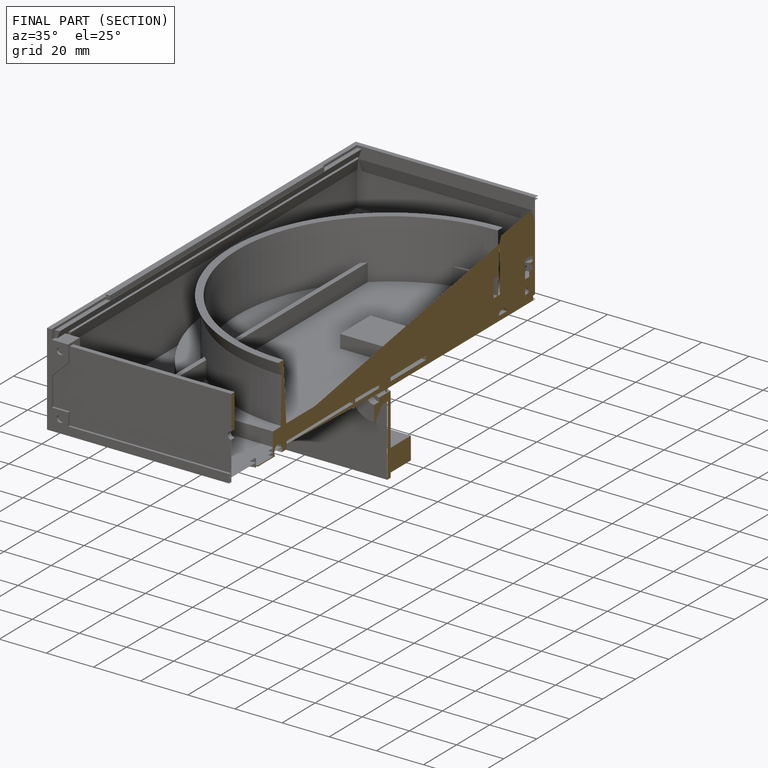
[diagram: finished part — half-section view (interior)]
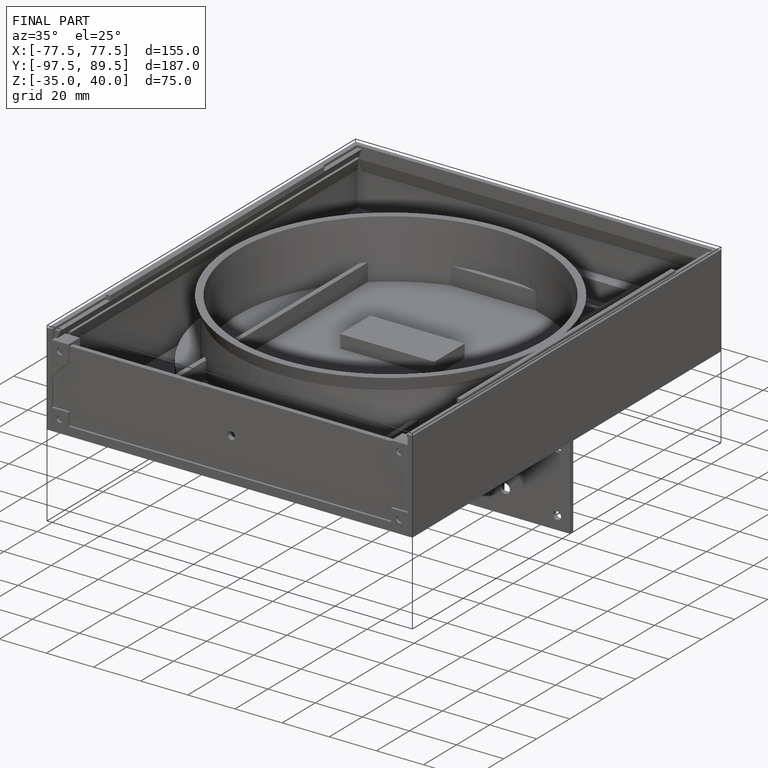
[diagram: finished part — iso view with bounding-box wireframe]
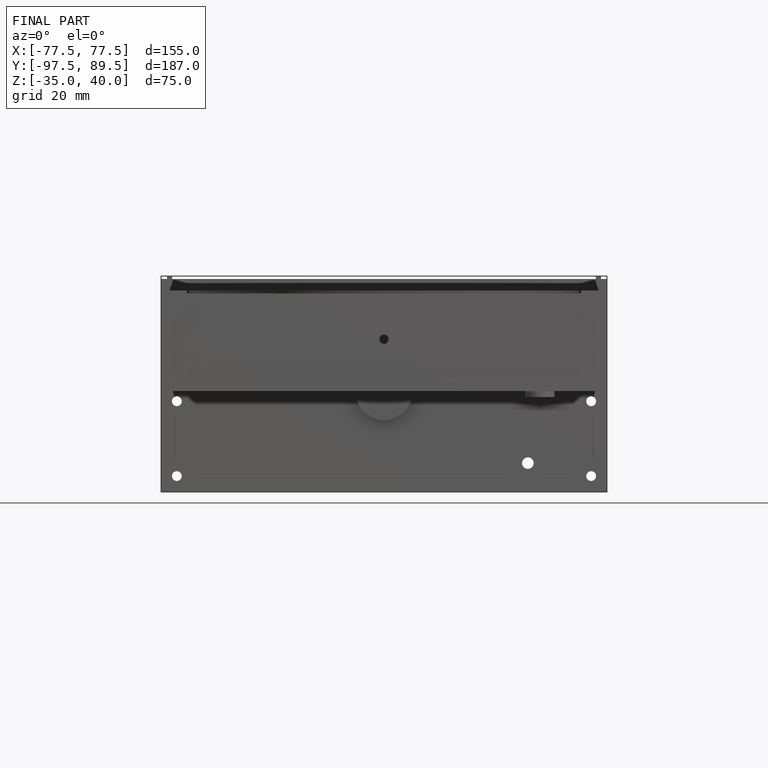
[diagram: finished part — front view with bounding-box wireframe]
